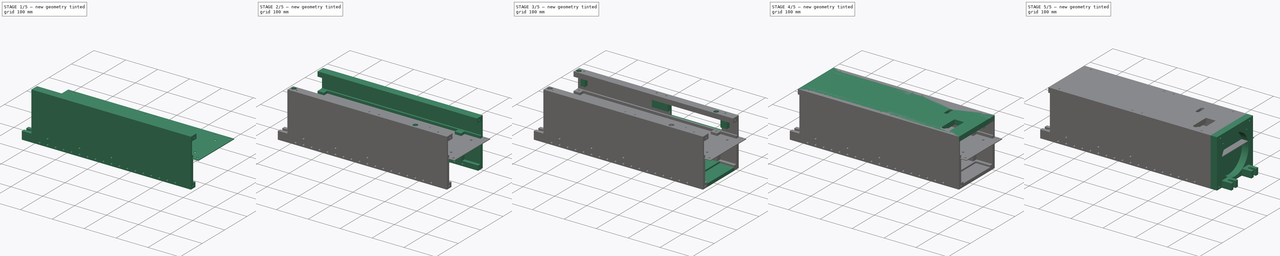
[diagram: build sequence overview — one tinted view per stage of 5, left to right]
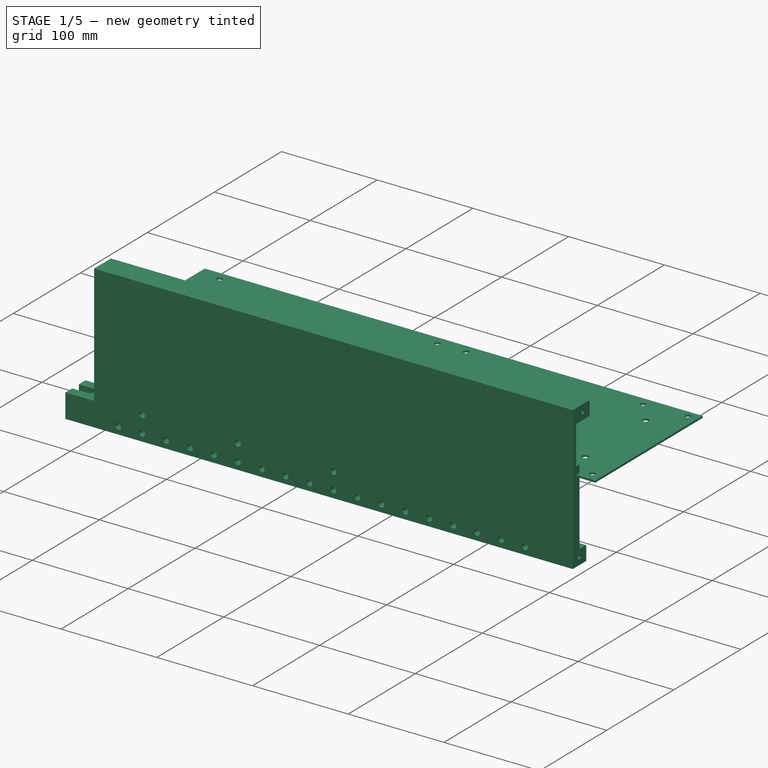
[diagram: stage 1 of 5 — iso view after this stage's code; geometry added in this stage tinted green]
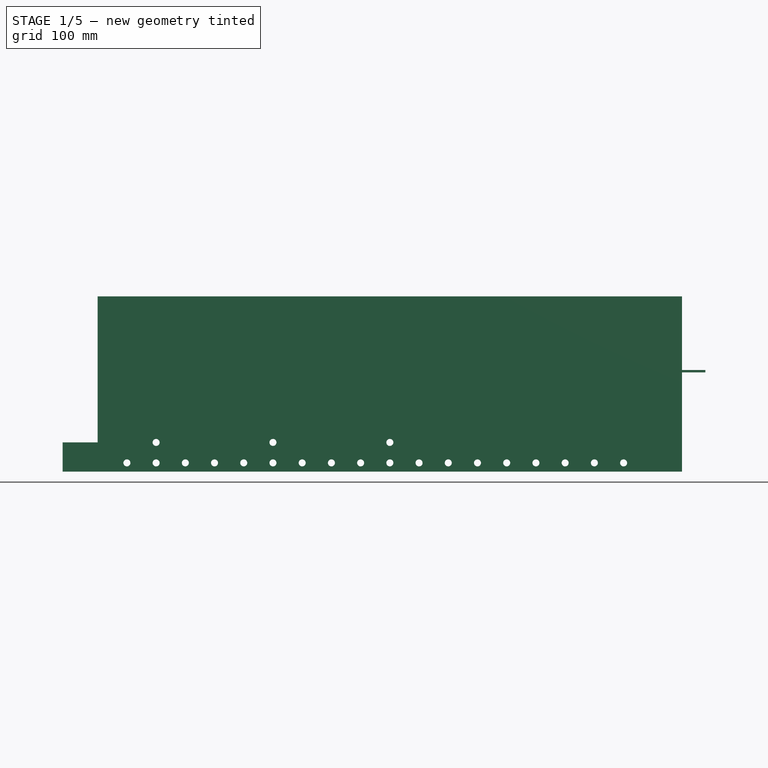
[diagram: stage 1 of 5 — front view after this stage's code; geometry added in this stage tinted green]
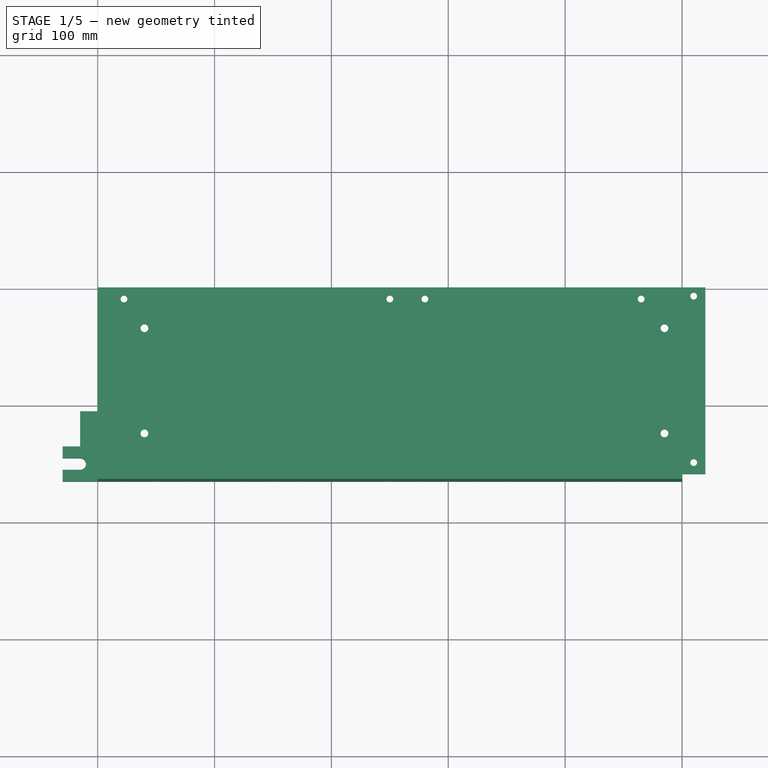
[diagram: stage 1 of 5 — top view after this stage's code; geometry added in this stage tinted green]
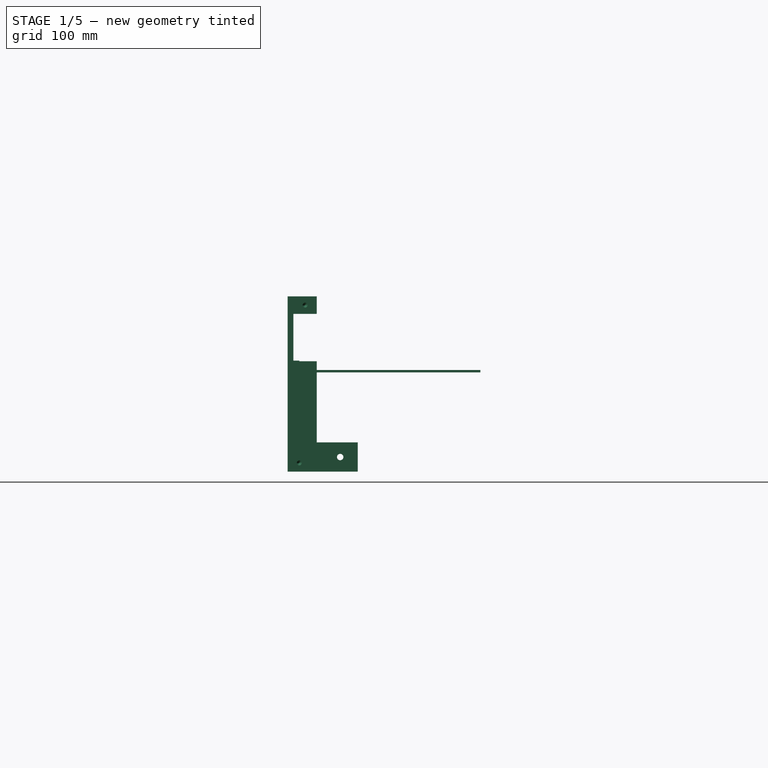
[diagram: stage 1 of 5 — right view after this stage's code; geometry added in this stage tinted green]
FCSTD DOCUMENT  (FreeCAD 1.0R39109 (Git))
Label: BoostConverter
License: All rights reserved
LicenseURL: https://en.wikipedia.org/wiki/All_rights_reserved
objects: Part::Feature×188, App::Part×160, Sketcher::SketchObject×39, PartDesign::Hole×15, PartDesign::Pad×14, Part::FeaturePython×13, PartDesign::Pocket×10, PartDesign::Body×7, Part::Plane×5, App::DocumentObjectGroup×4
note: 408 computed .brp shape members not serialized (recipe doc carries the construction recipe); baked Part::Feature solids carry a one-line shape summary decoded from their .brp

FEATURE [Part::Feature] Part__Feature213  label="Heatsink-125409"
  Placement = pos=(25,-5,-5) rot=(0.57735,-0.57735,0.57735;4.18879rad)
  shape: bbox 304.8 x 139.7 x 50.8 mm, 138 faces (baked)
FEATURE [Sketcher::SketchObject] Sketch  label="LeftSideExtrusion"
  ArcFitTolerance = 1e-06
  AttachmentSupport = -> [YZ_Plane163]
  FullyConstrained = false
  MakeInternals = false
  MapMode = 5
  Placement = pos=(0,0,0) rot=(0.57735,0.57735,0.57735;2.0944rad)
  sketch-geometry (13):
    g0: LineSegment StartX=-165 StartY=65 StartZ=0 EndX=-165 EndY=-85 EndZ=0
    g1: LineSegment StartX=-165 StartY=-85 StartZ=0 EndX=-160.022 EndY=-85 EndZ=0
    g2: LineSegment StartX=-160 StartY=65 StartZ=0 EndX=-165 EndY=65 EndZ=0
    g3: LineSegment StartX=-155 StartY=10 StartZ=0 EndX=-160 EndY=10 EndZ=0
    g4: LineSegment StartX=-145 StartY=-70 StartZ=0 EndX=-155 EndY=-70 EndZ=0
    g5: LineSegment StartX=-155 StartY=-85 StartZ=0 EndX=-145 EndY=-85 EndZ=0
    g6: LineSegment StartX=-145 StartY=-85 StartZ=0 EndX=-145 EndY=-70 EndZ=0
    g7: LineSegment StartX=-160.022 StartY=-85 StartZ=0 EndX=-155 EndY=-85 EndZ=0
    g8: LineSegment StartX=-155 StartY=-70 StartZ=0 EndX=-155 EndY=10 EndZ=0
    g9: LineSegment StartX=-160 StartY=65 StartZ=0 EndX=-140 EndY=65 EndZ=0
    g10: LineSegment StartX=-140 StartY=65 StartZ=0 EndX=-140 EndY=50 EndZ=0
    g11: LineSegment StartX=-140 StartY=50 StartZ=0 EndX=-160 EndY=50 EndZ=0
    g12: LineSegment StartX=-160 StartY=50 StartZ=0 EndX=-160 EndY=10 EndZ=0
  constraints (26):
    c: Coincident(g0,g1)
    c: Coincident(g2,g0)
    c: Vertical(g0)
    c: Horizontal(g1)
    c: Horizontal(g2)
    c: Horizontal(g3)
    c: Coincident(g5,g6)
    c: Coincident(g6,g4)
    c: Horizontal(g4)
    c: Horizontal(g5)
    c: Vertical(g6)
    c: Coincident(g7,g1)
    c: Coincident(g7,g5)
    c: Horizontal(g7)
    c: Coincident(g8,g4)
    c: Coincident(g8,g3)
    c: Vertical(g8)
    c: Coincident(g9,g2)
    c: Horizontal(g9)
    c: Coincident(g10,g9)
    c: Vertical(g10)
    c: Coincident(g11,g10)
    c: Horizontal(g11)
    c: Coincident(g12,g11)
    c: Coincident(g12,g3)
    c: Vertical(g12)
FEATURE [PartDesign::Pad] Pad  label="LeftSideExtrusionBase"
  Direction = (1,0,0)
  Length = 500
  Length2 = 10
  Placement = pos=(0,0,0) rot=(1,1,1;2.0944rad)
  Profile = -> Sketch
  ReferenceAxis = -> Sketch [N_Axis]
  Refine = true
  Suppressed = false
  Type = 0
FEATURE [Sketcher::SketchObject] Sketch001  label="SideHolePatterns"
  ArcFitTolerance = 1e-06
  AttachmentOffset = pos=(0,0,165) rot=(0,0,1;0rad)
  AttachmentSupport = -> [XZ_Plane163]
  FullyConstrained = false
  MakeInternals = false
  MapMode = 5
  Placement = pos=(0,-165,3.66e-14) rot=(1,0,0;1.5708rad)
  sketch-geometry (21):
    g0: Circle CenterX=50 CenterY=-60 CenterZ=0 NormalX=0 NormalY=0 NormalZ=1 AngleXU=0 Radius=3.86267
    g1: Circle CenterX=100 CenterY=-77.5 CenterZ=0 NormalX=0 NormalY=0 NormalZ=1 AngleXU=0 Radius=4.13563
    g2: Circle CenterX=150 CenterY=-60 CenterZ=0 NormalX=0 NormalY=0 NormalZ=1 AngleXU=0 Radius=4.40835
    g3: Circle CenterX=200 CenterY=-77.5 CenterZ=0 NormalX=0 NormalY=0 NormalZ=1 AngleXU=0 Radius=3.33888
    g4: Circle CenterX=250 CenterY=-60 CenterZ=0 NormalX=0 NormalY=0 NormalZ=1 AngleXU=0 Radius=3.58436
    g5: Circle CenterX=300 CenterY=-77.5 CenterZ=0 NormalX=0 NormalY=0 NormalZ=1 AngleXU=0 Radius=4.18964
    g6: Circle CenterX=350 CenterY=-77.5 CenterZ=0 NormalX=0 NormalY=0 NormalZ=1 AngleXU=0 Radius=3.204
    g7: Circle CenterX=400 CenterY=-77.5 CenterZ=0 NormalX=0 NormalY=0 NormalZ=1 AngleXU=0 Radius=3.31514
    g8: Circle CenterX=450 CenterY=-77.5 CenterZ=0 NormalX=0 NormalY=0 NormalZ=1 AngleXU=0 Radius=3.14833
    g9: Circle CenterX=425 CenterY=-77.5 CenterZ=0 NormalX=0 NormalY=0 NormalZ=1 AngleXU=0 Radius=3.53553
    g10: Circle CenterX=375 CenterY=-77.5 CenterZ=0 NormalX=0 NormalY=0 NormalZ=1 AngleXU=0 Radius=3.53553
    g11: Circle CenterX=325 CenterY=-77.5 CenterZ=0 NormalX=0 NormalY=0 NormalZ=1 AngleXU=0 Radius=2.4527
    g12: Circle CenterX=275 CenterY=-77.5 CenterZ=0 NormalX=0 NormalY=0 NormalZ=1 AngleXU=0 Radius=2.81159
    g13: Circle CenterX=250 CenterY=-77.5 CenterZ=0 NormalX=0 NormalY=0 NormalZ=1 AngleXU=0 Radius=2.71359
    g14: Circle CenterX=225 CenterY=-77.5 CenterZ=0 NormalX=0 NormalY=0 NormalZ=1 AngleXU=0 Radius=3.9059
    g15: Circle CenterX=175 CenterY=-77.5 CenterZ=0 NormalX=0 NormalY=0 NormalZ=1 AngleXU=0 Radius=2.89878
    g16: Circle CenterX=150 CenterY=-77.5 CenterZ=0 NormalX=0 NormalY=0 NormalZ=1 AngleXU=0 Radius=3.53553
    g17: Circle CenterX=125 CenterY=-77.5 CenterZ=0 NormalX=0 NormalY=0 NormalZ=1 AngleXU=0 Radius=4.0282
    g18: Circle CenterX=75 CenterY=-77.5 CenterZ=0 NormalX=0 NormalY=0 NormalZ=1 AngleXU=0 Radius=3.19657
    g19: Circle CenterX=50 CenterY=-77.5 CenterZ=0 NormalX=0 NormalY=0 NormalZ=1 AngleXU=0 Radius=3.49405
    g20: Circle CenterX=25 CenterY=-77.5 CenterZ=0 NormalX=0 NormalY=0 NormalZ=1 AngleXU=0 Radius=3.06134
FEATURE [PartDesign::Hole] Hole  label="LeftSideHoles"
  BaseFeature = -> Pad
  CustomThreadClearance = 0
  Depth = 25
  DepthType = 0
  Diameter = 6
  DrillForDepth = false
  DrillPoint = 1
  DrillPointAngle = 118
  HoleCutCountersinkAngle = 90
  HoleCutCustomValues = false
  HoleCutDepth = 0
  HoleCutDiameter = 6.1
  HoleCutType = 0
  ModelThread = false
  Placement = pos=(0,0,0) rot=(1,1,1;2.0944rad)
  Profile = -> Sketch001
  Refine = true
  Suppressed = false
  Tapered = false
  TaperedAngle = 90
  ThreadClass = 0
  ThreadDepth = 25
  ThreadDepthType = 0
  ThreadDirection = 0
  ThreadFit = 0
  ThreadSize = 0
  ThreadType = 0
  Threaded = false
  UseCustomThreadClearance = false
FEATURE [Sketcher::SketchObject] Sketch008  label="BottomLeftMountingFlangeSketch"
  ArcFitTolerance = 1e-06
  AttachmentOffset = pos=(0,0,-85) rot=(0,0,1;0rad)
  AttachmentSupport = -> [XY_Plane163]
  FullyConstrained = false
  MakeInternals = false
  MapMode = 5
  Placement = pos=(0,0,-85) rot=(0,0,1;0rad)
  sketch-geometry (8):
    g0: LineSegment StartX=-30 StartY=-135 StartZ=0 EndX=-30 EndY=-165 EndZ=0
    g1: LineSegment StartX=-30 StartY=-165 StartZ=0 EndX=0 EndY=-165 EndZ=0
    g2: LineSegment StartX=0 StartY=-165 StartZ=0 EndX=0 EndY=-135 EndZ=0
    g3: LineSegment StartX=0 StartY=-135 StartZ=0 EndX=-30 EndY=-135 EndZ=0
    g4: LineSegment StartX=-15 StartY=-135 StartZ=0 EndX=0 EndY=-135 EndZ=0
    g5: LineSegment StartX=0 StartY=-135 StartZ=0 EndX=0 EndY=-105 EndZ=0
    g6: LineSegment StartX=0 StartY=-105 StartZ=0 EndX=-15 EndY=-105 EndZ=0
    g7: LineSegment StartX=-15 StartY=-105 StartZ=0 EndX=-15 EndY=-135 EndZ=0
  constraints (17):
    c: Coincident(g0,g1)
    c: Coincident(g1,g2)
    c: Coincident(g2,g3)
    c: Coincident(g3,g0)
    c: Vertical(g0)
    c: Vertical(g2)
    c: Horizontal(g1)
    c: Horizontal(g3)
    c: Coincident(g4,g5)
    c: Coincident(g5,g6)
    c: Coincident(g6,g7)
    c: Coincident(g7,g4)
    c: Horizontal(g4)
    c: Horizontal(g6)
    c: Vertical(g5)
    c: Vertical(g7)
    c: Symmetric(g3,g3,g4)
FEATURE [PartDesign::Pad] Pad004  label="BottomLeftMountingFlange"
  BaseFeature = -> Hole
  Direction = (0,0,1)
  Length = 25
  Length2 = 10
  Placement = pos=(0,0,0) rot=(1,1,1;2.0944rad)
  Profile = -> Sketch008
  ReferenceAxis = -> Sketch008 [N_Axis]
  Refine = true
  Suppressed = false
  Type = 0
FEATURE [Sketcher::SketchObject] Sketch009  label="FlangeCutoutSketch"
  ArcFitTolerance = 1e-06
  AttachmentOffset = pos=(0,0,-85) rot=(0,0,1;0rad)
  AttachmentSupport = -> [XY_Plane163]
  FullyConstrained = false
  MakeInternals = false
  MapMode = 5
  Placement = pos=(0,0,-85) rot=(0,0,1;0rad)
  sketch-geometry (4):
    g0: ArcOfCircle CenterX=-15 CenterY=-150 CenterZ=0 NormalX=0 NormalY=0 NormalZ=1 AngleXU=0 Radius=5 StartAngle=4.71239 EndAngle=7.85398
    g1: ArcOfCircle CenterX=-35 CenterY=-150 CenterZ=0 NormalX=0 NormalY=0 NormalZ=1 AngleXU=0 Radius=5 StartAngle=1.5708 EndAngle=4.71239
    g2: LineSegment StartX=-15 StartY=-155 StartZ=0 EndX=-35 EndY=-155 EndZ=0
    g3: LineSegment StartX=-15 StartY=-145 StartZ=0 EndX=-35 EndY=-145 EndZ=0
  constraints (6):
    c: Tangent(g0,g2) = 1.5708
    c: Tangent(g0,g3) = -1.5708
    c: Tangent(g1,g2) = 1.5708
    c: Tangent(g1,g3) = -1.5708
    c: Equal(g0,g1)
    c: Horizontal(g3)
FEATURE [PartDesign::Pocket] Pocket001  label="Flangecutout"
  BaseFeature = -> Pad004
  Direction = (0,0,-1)
  Length = 38
  Length2 = 5
  Placement = pos=(0,0,0) rot=(1,1,1;2.0944rad)
  Profile = -> Sketch009
  ReferenceAxis = -> Sketch009 [N_Axis]
  Refine = true
  Reversed = true
  Suppressed = false
  Type = 0
FEATURE [Part::Feature] Part__Feature214  label="C_1210_3225Metric090"
  shape: bbox 3.2 x 2.5 x 2.5 mm, 28 faces (baked)
FEATURE [App::Part] C_1210_3225Metric045  label="C_1210_3225Metric091"
  Group = -> [Part__Feature214]
  Origin = -> Origin168
  Placement = pos=(329,-24.5,1.65) rot=(0,0,1;0rad)
FEATURE [Part::Feature] Part__Feature215  label="R_1210_3225Metric100"
  shape: bbox 3.2 x 2.5 x 0.55 mm, 26 faces (baked)
FEATURE [App::Part] R_1210_3225Metric050  label="R_1210_3225Metric101"
  Group = -> [Part__Feature215]
  Origin = -> Origin169
  Placement = pos=(359.3,-51.635,1.65) rot=(0,0,1;3.14159rad)
FEATURE [Part::Feature] Part__Feature216  label="ASSEMBLY088"
  shape: bbox 23 x 23 x 27 mm, 3 faces (baked)
FEATURE [Part::Feature] Part__Feature217  label="ASSEMBLY089"
  shape: bbox 1.9 x 1.9 x 10 mm, 3 faces (baked)
FEATURE [Part::Feature] Part__Feature218  label="ASSEMBLY090"
  shape: bbox 1.9 x 1.9 x 7 mm, 3 faces (baked)
FEATURE [App::Part] ASSEMBLY022  label="ASSEMBLY091"
  Group = -> [Part__Feature216,Part__Feature217,Part__Feature218]
  Origin = -> Origin170
FEATURE [App::Part] SLPX331M200A1P013
  Group = -> [ASSEMBLY022]
  Origin = -> Origin171
  Placement = pos=(68,-55,1.65) rot=(0,0,1;1.5708rad)
FEATURE [Part::Feature] Part__Feature219  label="ASSEMBLY092"
  shape: bbox 23 x 23 x 27 mm, 3 faces (baked)
FEATURE [Part::Feature] Part__Feature220  label="ASSEMBLY093"
  shape: bbox 1.9 x 1.9 x 10 mm, 3 faces (baked)
FEATURE [Part::Feature] Part__Feature221  label="ASSEMBLY094"
  shape: bbox 1.9 x 1.9 x 7 mm, 3 faces (baked)
FEATURE [App::Part] ASSEMBLY023  label="ASSEMBLY095"
  Group = -> [Part__Feature219,Part__Feature220,Part__Feature221]
  Origin = -> Origin172
FEATURE [App::Part] SLPX331M200A1P014
  Group = -> [ASSEMBLY023]
  Origin = -> Origin173
  Placement = pos=(68,-29,1.65) rot=(0,0,1;1.5708rad)
FEATURE [Part::Feature] Part__Feature222  label="C_1210_3225Metric092"
  shape: bbox 3.2 x 2.5 x 2.5 mm, 28 faces (baked)
FEATURE [App::Part] C_1210_3225Metric046  label="C_1210_3225Metric093"
  Group = -> [Part__Feature222]
  Origin = -> Origin174
  Placement = pos=(346.7,-44.635,1.65) rot=(0,0,1;3.14159rad)
FEATURE [Part::Feature] Part__Feature223  label="R_1210_3225Metric102"
  shape: bbox 3.2 x 2.5 x 0.55 mm, 26 faces (baked)
FEATURE [App::Part] R_1210_3225Metric051  label="R_1210_3225Metric103"
  Group = -> [Part__Feature223]
  Origin = -> Origin175
  Placement = pos=(223.95,-39,1.65) rot=(0,0,1;3.14159rad)
FEATURE [Part::Feature] Part__Feature224  label="CARS_K2PAV_30X30_D31L32S10LL7.3F2.007"
  shape: bbox 35.39 x 39.29 x 35.39 mm, 106 faces (baked)
FEATURE [App::Part] ALH82A750CB606
  Group = -> [Part__Feature224]
  Origin = -> Origin176
  Placement = pos=(343,-128,34.65) rot=(-0.281085,0.678598,-0.678598;2.59356rad)
FEATURE [Part::Feature] Part__Feature225  label="R_1210_3225Metric104"
  shape: bbox 3.2 x 2.5 x 0.55 mm, 26 faces (baked)
FEATURE [App::Part] R_1210_3225Metric052  label="R_1210_3225Metric105"
  Group = -> [Part__Feature225]
  Origin = -> Origin177
  Placement = pos=(225.45,-91.5,1.65) rot=(0,0,1;3.14159rad)
FEATURE [Part::Feature] Part__Feature226  label="C_1210_3225Metric094"
  shape: bbox 3.2 x 2.5 x 2.5 mm, 28 faces (baked)
FEATURE [App::Part] C_1210_3225Metric047  label="C_1210_3225Metric095"
  Group = -> [Part__Feature226]
  Origin = -> Origin178
  Placement = pos=(216.562,-97,1.65) rot=(0,0,1;0rad)
FEATURE [Part::Feature] Part__Feature227  label="ASSEMBLY096"
  shape: bbox 25.53 x 20.73 x 22.75 mm, 6 faces (baked)
FEATURE [Part::Feature] Part__Feature228  label="ASSEMBLY097"
  shape: bbox 4.47 x 4.47 x 5.1 mm, 3 faces (baked)
FEATURE [Part::Feature] Part__Feature229  label="ASSEMBLY098"
  shape: bbox 4.47 x 4.47 x 5.1 mm, 3 faces (baked)
FEATURE [App::Part] ASSEMBLY024  label="ASSEMBLY099"
  Group = -> [Part__Feature227,Part__Feature228,Part__Feature229]
  Origin = -> Origin179
FEATURE [App::Part] IHDM1008BCEV2R2M032
  Group = -> [ASSEMBLY024]
  Origin = -> Origin180
  Placement = pos=(175.795,-88.295,1.65) rot=(0,0,1;0rad)
FEATURE [Part::Feature] Part__Feature230  label="C_1210_3225Metric096"
  shape: bbox 3.2 x 2.5 x 2.5 mm, 28 faces (baked)
FEATURE [App::Part] C_1210_3225Metric048  label="C_1210_3225Metric097"
  Group = -> [Part__Feature230]
  Origin = -> Origin181
  Placement = pos=(298.062,-3.5,1.65) rot=(0,0,1;0rad)
FEATURE [Part::Feature] Part__Feature231  label="UFW1V471MPD1TD015"
  shape: bbox 0.6096 x 0.6096 x 4.369 mm, 4 faces (baked)
FEATURE [Part::Feature] Part__Feature232  label="UFW1V471MPD1TD016"
  shape: bbox 0.6096 x 0.6096 x 4.369 mm, 4 faces (baked)
FEATURE [Part::Feature] Part__Feature233  label="UFW1V471MPD1TD017"
  shape: bbox 10.01 x 10.01 x 17.5 mm, 4 faces (baked)
FEATURE [Part::Feature] Part__Feature234  label="UFW1V471MPD1TD018"
  shape: bbox 4.029 x 1.953 x 14.03 mm, 8 faces (baked)
FEATURE [App::Part] UFW1V471MPD1TD003  label="UFW1V471MPD1TD019"
  Group = -> [Part__Feature231,Part__Feature232,Part__Feature233,Part__Feature234]
  Origin = -> Origin182
FEATURE [App::Part] UVY1E102MPD1TD003
  Group = -> [UFW1V471MPD1TD003]
  Origin = -> Origin183
  Placement = pos=(360,-22,1.65) rot=(0,0,1;3.14159rad)
FEATURE [Part::Feature] Part__Feature235  label="ASSEMBLY100"
  shape: bbox 25.53 x 20.73 x 22.75 mm, 6 faces (baked)
FEATURE [Part::Feature] Part__Feature236  label="ASSEMBLY101"
  shape: bbox 4.47 x 4.47 x 5.1 mm, 3 faces (baked)
FEATURE [Part::Feature] Part__Feature237  label="ASSEMBLY102"
  shape: bbox 4.47 x 4.47 x 5.1 mm, 3 faces (baked)
FEATURE [App::Part] ASSEMBLY025  label="ASSEMBLY103"
  Group = -> [Part__Feature235,Part__Feature236,Part__Feature237]
  Origin = -> Origin184
FEATURE [App::Part] IHDM1008BCEV2R2M033
  Group = -> [ASSEMBLY025]
  Origin = -> Origin185
  Placement = pos=(117.5,-115.5,1.65) rot=(0,0,1;0rad)
FEATURE [Part::Feature] Part__Feature238  label="CARS_K2PAV_30X30_D31L32S10LL7.3F2.008"
  shape: bbox 35.39 x 39.29 x 35.39 mm, 106 faces (baked)
FEATURE [App::Part] ALH82A750CB607
  Group = -> [Part__Feature238]
  Origin = -> Origin186
  Placement = pos=(376,-128,34.65) rot=(-0.281085,0.678598,-0.678598;2.59356rad)
FEATURE [Part::Feature] Part__Feature239  label="UFW1V471MPD1TD020"
  shape: bbox 0.6096 x 0.6096 x 4.369 mm, 4 faces (baked)
FEATURE [Part::Feature] Part__Feature240  label="UFW1V471MPD1TD021"
  shape: bbox 0.6096 x 0.6096 x 4.369 mm, 4 faces (baked)
FEATURE [Part::Feature] Part__Feature241  label="UFW1V471MPD1TD022"
  shape: bbox 10.01 x 10.01 x 17.5 mm, 4 faces (baked)
FEATURE [Part::Feature] Part__Feature242  label="UFW1V471MPD1TD023"
  shape: bbox 4.029 x 1.953 x 14.03 mm, 8 faces (baked)
FEATURE [App::Part] UFW1V471MPD1TD004  label="UFW1V471MPD1TD024"
  Group = -> [Part__Feature239,Part__Feature240,Part__Feature241,Part__Feature242]
  Origin = -> Origin187
FEATURE [App::Part] UVY1E102MPD1TD004
  Group = -> [UFW1V471MPD1TD004]
  Origin = -> Origin188
  Placement = pos=(369.5,-17,1.65) rot=(0,0,1;3.14159rad)
FEATURE [Part::Feature] Part__Feature243  label="C_1210_3225Metric098"
  shape: bbox 3.2 x 2.5 x 2.5 mm, 28 faces (baked)
FEATURE [App::Part] C_1210_3225Metric049  label="C_1210_3225Metric099"
  Group = -> [Part__Feature243]
  Origin = -> Origin189
  Placement = pos=(426.5,-19,1.65) rot=(0,0,1;1.5708rad)
FEATURE [Part::Feature] Part__Feature244  label="pt_2.5-2-5.0-v002"
  shape: bbox 13.1 x 13.5 x 10 mm, 170 faces (baked)
FEATURE [App::Part] _987726  label="1987724002"
  Group = -> [Part__Feature244]
  Origin = -> Origin190
  Placement = pos=(369.26,-31,-44.85) rot=(0,-1,0;1.5708rad)
FEATURE [Part::Feature] Part__Feature245  label="C_1210_3225Metric100"
  shape: bbox 3.2 x 2.5 x 2.5 mm, 28 faces (baked)
FEATURE [App::Part] C_1210_3225Metric050  label="C_1210_3225Metric101"
  Group = -> [Part__Feature245]
  Origin = -> Origin191
  Placement = pos=(307.512,-52.0625,1.65) rot=(0,0,1;1.5708rad)
FEATURE [Part::Feature] Part__Feature246  label="Fan_Pin_Header_Straight_1x005"
  shape: bbox 10.2 x 5.84 x 13.5 mm, 99 faces (baked)
FEATURE [App::Part] FanPinHeader_1x04_P2_54mm_Vertical001  label="FanPinHeader_1x04_P2.54mm_Vertical001"
  Group = -> [Part__Feature246]
  Origin = -> Origin192
  Placement = pos=(364.96,-5.2,1.65) rot=(0,0,1;0rad)
FEATURE [Part::Feature] Part__Feature247  label="R_1210_3225Metric106"
  shape: bbox 3.2 x 2.5 x 0.55 mm, 26 faces (baked)
FEATURE [App::Part] R_1210_3225Metric053  label="R_1210_3225Metric107"
  Group = -> [Part__Feature247]
  Origin = -> Origin193
  Placement = pos=(334,-35.5,1.65) rot=(0,0,-1;1.5708rad)
FEATURE [Part::Feature] Part__Feature248  label="C_1210_3225Metric102"
  shape: bbox 3.2 x 2.5 x 2.5 mm, 28 faces (baked)
FEATURE [App::Part] C_1210_3225Metric051  label="C_1210_3225Metric103"
  Group = -> [Part__Feature248]
  Origin = -> Origin194
  Placement = pos=(337.438,-45,1.65) rot=(0,0,1;0rad)
FEATURE [Part::Feature] Part__Feature249  label="ASSEMBLY104"
  shape: bbox 25.53 x 20.73 x 22.75 mm, 6 faces (baked)
FEATURE [Part::Feature] Part__Feature250  label="ASSEMBLY105"
  shape: bbox 4.47 x 4.47 x 5.1 mm, 3 faces (baked)
FEATURE [Part::Feature] Part__Feature251  label="ASSEMBLY106"
  shape: bbox 4.47 x 4.47 x 5.1 mm, 3 faces (baked)
FEATURE [App::Part] ASSEMBLY026  label="ASSEMBLY107"
  Group = -> [Part__Feature249,Part__Feature250,Part__Feature251]
  Origin = -> Origin195
FEATURE [App::Part] IHDM1008BCEV2R2M034
  Group = -> [ASSEMBLY026]
  Origin = -> Origin196
  Placement = pos=(176.295,-50.5,1.65) rot=(0,0,1;0rad)
FEATURE [Part::Feature] Part__Feature252  label="C_1210_3225Metric104"
  shape: bbox 3.2 x 2.5 x 2.5 mm, 28 faces (baked)
FEATURE [App::Part] C_1210_3225Metric052  label="C_1210_3225Metric105"
  Group = -> [Part__Feature252]
  Origin = -> Origin197
  Placement = pos=(220.438,-28,1.65) rot=(0,0,1;0rad)
FEATURE [Part::Feature] Part__Feature253  label="R_1210_3225Metric108"
  shape: bbox 3.2 x 2.5 x 0.55 mm, 26 faces (baked)
FEATURE [App::Part] R_1210_3225Metric054  label="R_1210_3225Metric109"
  Group = -> [Part__Feature253]
  Origin = -> Origin198
  Placement = pos=(296,-32,1.65) rot=(0,0,1;1.5708rad)
FEATURE [Part::Feature] Part__Feature254  label="ASSEMBLY108"
  shape: bbox 25.53 x 20.73 x 22.75 mm, 6 faces (baked)
FEATURE [Part::Feature] Part__Feature255  label="ASSEMBLY109"
  shape: bbox 4.47 x 4.47 x 5.1 mm, 3 faces (baked)
FEATURE [Part::Feature] Part__Feature256  label="ASSEMBLY110"
  shape: bbox 4.47 x 4.47 x 5.1 mm, 3 faces (baked)
FEATURE [App::Part] ASSEMBLY027  label="ASSEMBLY111"
  Group = -> [Part__Feature254,Part__Feature255,Part__Feature256]
  Origin = -> Origin199
FEATURE [App::Part] IHDM1008BCEV2R2M035
  Group = -> [ASSEMBLY027]
  Origin = -> Origin200
  Placement = pos=(117.545,-88.25,1.65) rot=(0,0,1;0rad)
FEATURE [Part::Feature] Part__Feature257  label="C_1210_3225Metric106"
  shape: bbox 3.2 x 2.5 x 2.5 mm, 28 faces (baked)
FEATURE [App::Part] C_1210_3225Metric053  label="C_1210_3225Metric107"
  Group = -> [Part__Feature257]
  Origin = -> Origin201
  Placement = pos=(230,-85.9375,1.65) rot=(0,0,-1;1.5708rad)
FEATURE [Part::Feature] Part__Feature258  label="R_1210_3225Metric110"
  shape: bbox 3.2 x 2.5 x 0.55 mm, 26 faces (baked)
FEATURE [App::Part] R_1210_3225Metric055  label="R_1210_3225Metric111"
  Group = -> [Part__Feature258]
  Origin = -> Origin202
  Placement = pos=(391.05,-48.5,1.65) rot=(0,0,1;3.14159rad)
FEATURE [Part::Feature] Part__Feature259  label="ASSEMBLY112"
  shape: bbox 25.53 x 20.73 x 22.75 mm, 6 faces (baked)
FEATURE [Part::Feature] Part__Feature260  label="ASSEMBLY113"
  shape: bbox 4.47 x 4.47 x 5.1 mm, 3 faces (baked)
FEATURE [Part::Feature] Part__Feature261  label="ASSEMBLY114"
  shape: bbox 4.47 x 4.47 x 5.1 mm, 3 faces (baked)
FEATURE [App::Part] ASSEMBLY028  label="ASSEMBLY115"
  Group = -> [Part__Feature259,Part__Feature260,Part__Feature261]
  Origin = -> Origin203
FEATURE [App::Part] IHDM1008BCEV2R2M036
  Group = -> [ASSEMBLY028]
  Origin = -> Origin204
  Placement = pos=(146.545,-88.295,1.65) rot=(0,0,1;0rad)
FEATURE [Part::Feature] Part__Feature262  label="R_1210_3225Metric112"
  shape: bbox 3.2 x 2.5 x 0.55 mm, 26 faces (baked)
FEATURE [App::Part] R_1210_3225Metric056  label="R_1210_3225Metric113"
  Group = -> [Part__Feature262]
  Origin = -> Origin205
  Placement = pos=(329,-33.5,1.65) rot=(0,0,1;3.14159rad)
FEATURE [Part::Feature] Part__Feature263  label="C_1210_3225Metric108"
  shape: bbox 3.2 x 2.5 x 2.5 mm, 28 faces (baked)
FEATURE [App::Part] C_1210_3225Metric054  label="C_1210_3225Metric109"
  Group = -> [Part__Feature263]
  Origin = -> Origin206
  Placement = pos=(217.438,-39,1.65) rot=(0,0,1;0rad)
FEATURE [Part::Feature] Part__Feature264  label="R_1210_3225Metric114"
  shape: bbox 3.2 x 2.5 x 0.55 mm, 26 faces (baked)
FEATURE [App::Part] R_1210_3225Metric057  label="R_1210_3225Metric115"
  Group = -> [Part__Feature264]
  Origin = -> Origin207
  Placement = pos=(318,-47.5,1.65) rot=(0,0,1;3.14159rad)
FEATURE [Part::Feature] Part__Feature265  label="R_1210_3225Metric116"
  shape: bbox 3.2 x 2.5 x 0.55 mm, 26 faces (baked)
FEATURE [App::Part] R_1210_3225Metric058  label="R_1210_3225Metric117"
  Group = -> [Part__Feature265]
  Origin = -> Origin208
  Placement = pos=(369.5,-54,1.65) rot=(0,0,-1;1.5708rad)
FEATURE [Part::Feature] Part__Feature266  label="R_1210_3225Metric118"
  shape: bbox 3.2 x 2.5 x 0.55 mm, 26 faces (baked)
FEATURE [App::Part] R_1210_3225Metric059  label="R_1210_3225Metric119"
  Group = -> [Part__Feature266]
  Origin = -> Origin209
  Placement = pos=(224.95,-115,1.65) rot=(0,0,1;3.14159rad)
FEATURE [Part::Feature] Part__Feature267  label="C_1210_3225Metric110"
  shape: bbox 3.2 x 2.5 x 2.5 mm, 28 faces (baked)
FEATURE [App::Part] C_1210_3225Metric055  label="C_1210_3225Metric111"
  Group = -> [Part__Feature267]
  Origin = -> Origin210
  Placement = pos=(290.438,-29.5,1.65) rot=(0,0,1;3.14159rad)
FEATURE [Part::Feature] Part__Feature268  label="C_1210_3225Metric112"
  shape: bbox 3.2 x 2.5 x 2.5 mm, 28 faces (baked)
FEATURE [App::Part] C_1210_3225Metric056  label="C_1210_3225Metric113"
  Group = -> [Part__Feature268]
  Origin = -> Origin211
  Placement = pos=(216.562,-102,1.65) rot=(0,0,1;0rad)
FEATURE [Part::Feature] Part__Feature269  label="ASSEMBLY116"
  shape: bbox 23 x 23 x 27 mm, 3 faces (baked)
FEATURE [Part::Feature] Part__Feature270  label="ASSEMBLY117"
  shape: bbox 1.9 x 1.9 x 10 mm, 3 faces (baked)
FEATURE [Part::Feature] Part__Feature271  label="ASSEMBLY118"
  shape: bbox 1.9 x 1.9 x 7 mm, 3 faces (baked)
FEATURE [App::Part] ASSEMBLY029  label="ASSEMBLY119"
  Group = -> [Part__Feature269,Part__Feature270,Part__Feature271]
  Origin = -> Origin212
FEATURE [App::Part] SLPX331M200A1P015
  Group = -> [ASSEMBLY029]
  Origin = -> Origin213
  Placement = pos=(43,-133,1.65) rot=(0,0,1;1.5708rad)
FEATURE [Part::Feature] Part__Feature272  label="C_1210_3225Metric114"
  shape: bbox 3.2 x 2.5 x 2.5 mm, 28 faces (baked)
FEATURE [App::Part] C_1210_3225Metric057  label="C_1210_3225Metric115"
  Group = -> [Part__Feature272]
  Origin = -> Origin214
  Placement = pos=(328.938,-29,1.65) rot=(0,0,1;0rad)
FEATURE [Part::Feature] Part__Feature273  label="C_1210_3225Metric116"
  shape: bbox 3.2 x 2.5 x 2.5 mm, 28 faces (baked)
FEATURE [App::Part] C_1210_3225Metric058  label="C_1210_3225Metric117"
  Group = -> [Part__Feature273]
  Origin = -> Origin215
  Placement = pos=(218.938,-85,1.65) rot=(0,0,1;0rad)
FEATURE [Part::Feature] Part__Feature274  label="R_1210_3225Metric120"
  shape: bbox 3.2 x 2.5 x 0.55 mm, 26 faces (baked)
FEATURE [App::Part] R_1210_3225Metric060  label="R_1210_3225Metric121"
  Group = -> [Part__Feature274]
  Origin = -> Origin216
  Placement = pos=(353.7,-56.635,1.65) rot=(0,0,1;3.14159rad)
FEATURE [Part::Feature] Part__Feature275  label="R_1210_3225Metric122"
  shape: bbox 3.2 x 2.5 x 0.55 mm, 26 faces (baked)
FEATURE [App::Part] R_1210_3225Metric061  label="R_1210_3225Metric123"
  Group = -> [Part__Feature275]
  Origin = -> Origin217
  Placement = pos=(312.012,-46.0625,1.65) rot=(0,0,-1;1.5708rad)
FEATURE [Part::Feature] Part__Feature276  label="R_1210_3225Metric124"
  shape: bbox 3.2 x 2.5 x 0.55 mm, 26 faces (baked)
FEATURE [App::Part] R_1210_3225Metric062  label="R_1210_3225Metric125"
  Group = -> [Part__Feature276]
  Origin = -> Origin218
  Placement = pos=(228.5,-29.5,1.65) rot=(0,0,1;3.14159rad)
FEATURE [Part::Feature] Part__Feature277  label="C_1210_3225Metric118"
  shape: bbox 3.2 x 2.5 x 2.5 mm, 28 faces (baked)
FEATURE [App::Part] C_1210_3225Metric059  label="C_1210_3225Metric119"
  Group = -> [Part__Feature277]
  Origin = -> Origin219
  Placement = pos=(229,-62.5,1.65) rot=(0,0,1;0rad)
FEATURE [Part::Feature] Part__Feature278  label="C_1210_3225Metric120"
  shape: bbox 3.2 x 2.5 x 2.5 mm, 28 faces (baked)
FEATURE [App::Part] C_1210_3225Metric060  label="C_1210_3225Metric121"
  Group = -> [Part__Feature278]
  Origin = -> Origin220
  Placement = pos=(356.2,-33.635,1.65) rot=(0,0,1;3.14159rad)
FEATURE [Part::Feature] Part__Feature279  label="R_1210_3225Metric126"
  shape: bbox 3.2 x 2.5 x 0.55 mm, 26 faces (baked)
FEATURE [App::Part] R_1210_3225Metric063  label="R_1210_3225Metric127"
  Group = -> [Part__Feature279]
  Origin = -> Origin221
  Placement = pos=(369.5,-59.45,1.65) rot=(0,0,-1;1.5708rad)
FEATURE [Part::Feature] Part__Feature280  label="C_1210_3225Metric122"
  shape: bbox 3.2 x 2.5 x 2.5 mm, 28 faces (baked)
FEATURE [App::Part] C_1210_3225Metric061  label="C_1210_3225Metric123"
  Group = -> [Part__Feature280]
  Origin = -> Origin222
  Placement = pos=(370,-46.5,1.65) rot=(0,0,-1;1.5708rad)
FEATURE [Part::Feature] Part__Feature281  label="R_1210_3225Metric128"
  shape: bbox 3.2 x 2.5 x 0.55 mm, 26 faces (baked)
FEATURE [App::Part] R_1210_3225Metric064  label="R_1210_3225Metric129"
  Group = -> [Part__Feature281]
  Origin = -> Origin223
  Placement = pos=(301,-31.95,1.65) rot=(0,0,1;1.5708rad)
FEATURE [Part::Feature] Part__Feature282  label="C_1210_3225Metric124"
  shape: bbox 3.2 x 2.5 x 2.5 mm, 28 faces (baked)
FEATURE [App::Part] C_1210_3225Metric062  label="C_1210_3225Metric125"
  Group = -> [Part__Feature282]
  Origin = -> Origin224
  Placement = pos=(366,-35.5625,1.65) rot=(0,0,1;0rad)
FEATURE [Part::Feature] Part__Feature283  label="R_1210_3225Metric130"
  shape: bbox 3.2 x 2.5 x 0.55 mm, 26 faces (baked)
FEATURE [App::Part] R_1210_3225Metric065  label="R_1210_3225Metric131"
  Group = -> [Part__Feature283]
  Origin = -> Origin225
  Placement = pos=(330.5,-42.55,1.65) rot=(0,0,-1;1.5708rad)
FEATURE [Part::Feature] Part__Feature284  label="C_1210_3225Metric126"
  shape: bbox 3.2 x 2.5 x 2.5 mm, 28 faces (baked)
FEATURE [App::Part] C_1210_3225Metric063  label="C_1210_3225Metric127"
  Group = -> [Part__Feature284]
  Origin = -> Origin226
  Placement = pos=(206,-95.5625,1.65) rot=(0,0,1;1.5708rad)
FEATURE [Part::Feature] Part__Feature285  label="C_1210_3225Metric128"
  shape: bbox 3.2 x 2.5 x 2.5 mm, 28 faces (baked)
FEATURE [App::Part] C_1210_3225Metric064  label="C_1210_3225Metric129"
  Group = -> [Part__Feature285]
  Origin = -> Origin227
  Placement = pos=(415.5,-56.5,1.65) rot=(0,0,1;0rad)
FEATURE [Part::Feature] Part__Feature286  label="R_1210_3225Metric132"
  shape: bbox 3.2 x 2.5 x 0.55 mm, 26 faces (baked)
FEATURE [App::Part] R_1210_3225Metric066  label="R_1210_3225Metric133"
  Group = -> [Part__Feature286]
  Origin = -> Origin228
  Placement = pos=(338.95,-57.5,1.65) rot=(0,0,1;3.14159rad)
FEATURE [Part::Feature] Part__Feature287  label="C_1210_3225Metric130"
  shape: bbox 3.2 x 2.5 x 2.5 mm, 28 faces (baked)
FEATURE [App::Part] C_1210_3225Metric065  label="C_1210_3225Metric131"
  Group = -> [Part__Feature287]
  Origin = -> Origin229
  Placement = pos=(230.5,-110.562,1.65) rot=(0,0,-1;1.5708rad)
FEATURE [Part::Feature] Part__Feature288  label="R_1210_3225Metric134"
  shape: bbox 3.2 x 2.5 x 0.55 mm, 26 faces (baked)
FEATURE [App::Part] R_1210_3225Metric067  label="R_1210_3225Metric135"
  Group = -> [Part__Feature288]
  Origin = -> Origin230
  Placement = pos=(405,-67.05,1.65) rot=(0,0,1;1.5708rad)
FEATURE [Part::Feature] Part__Feature289  label="C_1210_3225Metric132"
  shape: bbox 3.2 x 2.5 x 2.5 mm, 28 faces (baked)
FEATURE [App::Part] C_1210_3225Metric066  label="C_1210_3225Metric133"
  Group = -> [Part__Feature289]
  Origin = -> Origin231
  Placement = pos=(435.5,-45.5625,1.65) rot=(0,0,1;1.5708rad)
FEATURE [Part::Feature] Part__Feature290  label="CARS_K2PAV_30X30_D31L32S10LL7.3F2.009"
  shape: bbox 35.39 x 39.29 x 35.39 mm, 106 faces (baked)
FEATURE [App::Part] ALH82A750CB608
  Group = -> [Part__Feature290]
  Origin = -> Origin232
  Placement = pos=(409,-128,34.65) rot=(-0.281085,0.678598,-0.678598;2.59356rad)
FEATURE [Part::Feature] Part__Feature291  label="R_1210_3225Metric136"
  shape: bbox 3.2 x 2.5 x 0.55 mm, 26 faces (baked)
FEATURE [App::Part] R_1210_3225Metric068  label="R_1210_3225Metric137"
  Group = -> [Part__Feature291]
  Origin = -> Origin233
  Placement = pos=(338.5,-35.5,1.65) rot=(0,0,-1;1.5708rad)
FEATURE [Part::Feature] Part__Feature292  label="C_1210_3225Metric134"
  shape: bbox 3.2 x 2.5 x 2.5 mm, 28 faces (baked)
FEATURE [App::Part] C_1210_3225Metric067  label="C_1210_3225Metric135"
  Group = -> [Part__Feature292]
  Origin = -> Origin234
  Placement = pos=(323,-45,1.65) rot=(0,0,1;3.14159rad)
FEATURE [Part::Feature] Part__Feature293  label="R_1210_3225Metric138"
  shape: bbox 3.2 x 2.5 x 0.55 mm, 26 faces (baked)
FEATURE [App::Part] R_1210_3225Metric069  label="R_1210_3225Metric139"
  Group = -> [Part__Feature293]
  Origin = -> Origin235
  Placement = pos=(346.7,-34.085,1.65) rot=(0,0,1;1.5708rad)
FEATURE [Part::Feature] Part__Feature294  label="R_1210_3225Metric140"
  shape: bbox 3.2 x 2.5 x 0.55 mm, 26 faces (baked)
FEATURE [App::Part] R_1210_3225Metric070  label="R_1210_3225Metric141"
  Group = -> [Part__Feature294]
  Origin = -> Origin236
  Placement = pos=(348.2,-51.635,1.65) rot=(0,0,1;3.14159rad)
FEATURE [Part::Feature] Part__Feature295  label="R_1210_3225Metric142"
  shape: bbox 3.2 x 2.5 x 0.55 mm, 26 faces (baked)
FEATURE [App::Part] R_1210_3225Metric071  label="R_1210_3225Metric143"
  Group = -> [Part__Feature295]
  Origin = -> Origin237
  Placement = pos=(227.5,-57.5,1.65) rot=(0,0,1;3.14159rad)
FEATURE [Part::Feature] Part__Feature296  label="R_1210_3225Metric144"
  shape: bbox 3.2 x 2.5 x 0.55 mm, 26 faces (baked)
FEATURE [App::Part] R_1210_3225Metric072  label="R_1210_3225Metric145"
  Group = -> [Part__Feature296]
  Origin = -> Origin238
  Placement = pos=(391.05,-54,1.65) rot=(0,0,1;3.14159rad)
FEATURE [Part::Feature] Part__Feature297  label="C_1210_3225Metric136"
  shape: bbox 3.2 x 2.5 x 2.5 mm, 28 faces (baked)
FEATURE [App::Part] C_1210_3225Metric068  label="C_1210_3225Metric137"
  Group = -> [Part__Feature297]
  Origin = -> Origin239
  Placement = pos=(435.5,-37.0625,1.65) rot=(0,0,1;1.5708rad)
FEATURE [Part::Feature] Part__Feature298  label="C_1210_3225Metric138"
  shape: bbox 3.2 x 2.5 x 2.5 mm, 28 faces (baked)
FEATURE [App::Part] C_1210_3225Metric069  label="C_1210_3225Metric139"
  Group = -> [Part__Feature298]
  Origin = -> Origin240
  Placement = pos=(305.5,-30.5,1.65) rot=(0,0,1;0rad)
FEATURE [Part::Feature] Part__Feature299  label="C_1210_3225Metric140"
  shape: bbox 3.2 x 2.5 x 2.5 mm, 28 faces (baked)
FEATURE [App::Part] C_1210_3225Metric070  label="C_1210_3225Metric141"
  Group = -> [Part__Feature299]
  Origin = -> Origin241
  Placement = pos=(207,-38,1.65) rot=(0,0,1;1.5708rad)
FEATURE [Part::Feature] Part__Feature300  label="C_1210_3225Metric142"
  shape: bbox 3.2 x 2.5 x 2.5 mm, 28 faces (baked)
FEATURE [App::Part] C_1210_3225Metric071  label="C_1210_3225Metric143"
  Group = -> [Part__Feature300]
  Origin = -> Origin242
  Placement = pos=(317.5,-34,1.65) rot=(0,0,-1;1.5708rad)
FEATURE [Part::Feature] Part__Feature301  label="ASSEMBLY120"
  shape: bbox 23 x 23 x 27 mm, 3 faces (baked)
FEATURE [Part::Feature] Part__Feature302  label="ASSEMBLY121"
  shape: bbox 1.9 x 1.9 x 10 mm, 3 faces (baked)
FEATURE [Part::Feature] Part__Feature303  label="ASSEMBLY122"
  shape: bbox 1.9 x 1.9 x 7 mm, 3 faces (baked)
FEATURE [App::Part] ASSEMBLY030  label="ASSEMBLY123"
  Group = -> [Part__Feature301,Part__Feature302,Part__Feature303]
  Origin = -> Origin243
FEATURE [App::Part] SLPX331M200A1P016
  Group = -> [ASSEMBLY030]
  Origin = -> Origin244
  Placement = pos=(68,-81,1.65) rot=(0,0,1;1.5708rad)
FEATURE [Part::Feature] Part__Feature304  label="R_1210_3225Metric146"
  shape: bbox 3.2 x 2.5 x 0.55 mm, 26 faces (baked)
FEATURE [App::Part] R_1210_3225Metric073  label="R_1210_3225Metric147"
  Group = -> [Part__Feature304]
  Origin = -> Origin245
  Placement = pos=(249.05,-91.5,1.65) rot=(0,0,1;0rad)
FEATURE [Part::Feature] Part__Feature305  label="ASSEMBLY124"
  shape: bbox 25.53 x 20.73 x 22.75 mm, 6 faces (baked)
FEATURE [Part::Feature] Part__Feature306  label="ASSEMBLY125"
  shape: bbox 4.47 x 4.47 x 5.1 mm, 3 faces (baked)
FEATURE [Part::Feature] Part__Feature307  label="ASSEMBLY126"
  shape: bbox 4.47 x 4.47 x 5.1 mm, 3 faces (baked)
FEATURE [App::Part] ASSEMBLY031  label="ASSEMBLY127"
  Group = -> [Part__Feature305,Part__Feature306,Part__Feature307]
  Origin = -> Origin246
FEATURE [App::Part] IHDM1008BCEV2R2M037
  Group = -> [ASSEMBLY031]
  Origin = -> Origin247
  Placement = pos=(176,-115.545,1.65) rot=(0,0,1;0rad)
FEATURE [Part::Feature] Part__Feature308  label="R_1210_3225Metric148"
  shape: bbox 3.2 x 2.5 x 0.55 mm, 26 faces (baked)
FEATURE [App::Part] R_1210_3225Metric074  label="R_1210_3225Metric149"
  Group = -> [Part__Feature308]
  Origin = -> Origin248
  Placement = pos=(330.5,-56.5,1.65) rot=(0,0,-1;1.5708rad)
FEATURE [Part::Feature] Part__Feature309  label="R_1210_3225Metric150"
  shape: bbox 3.2 x 2.5 x 0.55 mm, 26 faces (baked)
FEATURE [App::Part] R_1210_3225Metric075  label="R_1210_3225Metric151"
  Group = -> [Part__Feature309]
  Origin = -> Origin249
  Placement = pos=(392,-61.5,1.65) rot=(0,0,1;1.5708rad)
FEATURE [Part::Feature] Part__Feature310  label="R_1210_3225Metric152"
  shape: bbox 3.2 x 2.5 x 0.55 mm, 26 faces (baked)
FEATURE [App::Part] R_1210_3225Metric076  label="R_1210_3225Metric153"
  Group = -> [Part__Feature310]
  Origin = -> Origin250
  Placement = pos=(331.5,-51,1.65) rot=(0,0,-1;1.5708rad)
FEATURE [Part::Feature] Part__Feature311  label="ASSEMBLY128"
  shape: bbox 23 x 23 x 27 mm, 3 faces (baked)
FEATURE [Part::Feature] Part__Feature312  label="ASSEMBLY129"
  shape: bbox 1.9 x 1.9 x 10 mm, 3 faces (baked)
FEATURE [Part::Feature] Part__Feature313  label="ASSEMBLY130"
  shape: bbox 1.9 x 1.9 x 7 mm, 3 faces (baked)
FEATURE [App::Part] ASSEMBLY032  label="ASSEMBLY131"
  Group = -> [Part__Feature311,Part__Feature312,Part__Feature313]
  Origin = -> Origin251
FEATURE [App::Part] SLPX331M200A1P017
  Group = -> [ASSEMBLY032]
  Origin = -> Origin252
  Placement = pos=(43,-107,1.65) rot=(0,0,1;1.5708rad)
FEATURE [Part::Feature] Part__Feature314  label="C_1210_3225Metric144"
  shape: bbox 3.2 x 2.5 x 2.5 mm, 28 faces (baked)
FEATURE [App::Part] C_1210_3225Metric072  label="C_1210_3225Metric145"
  Group = -> [Part__Feature314]
  Origin = -> Origin253
  Placement = pos=(228.5,-35.5,1.65) rot=(0,0,1;0rad)
FEATURE [Part::Feature] Part__Feature315  label="R_1210_3225Metric154"
  shape: bbox 3.2 x 2.5 x 0.55 mm, 26 faces (baked)
FEATURE [App::Part] R_1210_3225Metric077  label="R_1210_3225Metric155"
  Group = -> [Part__Feature315]
  Origin = -> Origin254
  Placement = pos=(353.75,-51.635,1.65) rot=(0,0,1;3.14159rad)
FEATURE [Part::Feature] Part__Feature316  label="pt_2.5-2-5.0-v003"
  shape: bbox 13.1 x 13.5 x 10 mm, 170 faces (baked)
FEATURE [App::Part] _987727  label="1987724003"
  Group = -> [Part__Feature316]
  Origin = -> Origin255
  Placement = pos=(356.76,-31,-44.85) rot=(0,-1,0;1.5708rad)
FEATURE [Part::Feature] Part__Feature317  label="CARS_K2PAV_30X30_D31L32S10LL7.3F2.010"
  shape: bbox 35.39 x 39.29 x 35.39 mm, 106 faces (baked)
FEATURE [App::Part] ALH82A750CB609
  Group = -> [Part__Feature317]
  Origin = -> Origin256
  Placement = pos=(409,-95,34.65) rot=(-0.281085,0.678598,-0.678598;2.59356rad)
FEATURE [Part::Feature] Part__Feature318  label="R_1210_3225Metric156"
  shape: bbox 3.2 x 2.5 x 0.55 mm, 26 faces (baked)
FEATURE [App::Part] R_1210_3225Metric078  label="R_1210_3225Metric157"
  Group = -> [Part__Feature318]
  Origin = -> Origin257
  Placement = pos=(380.55,-2.5,1.65) rot=(0,0,1;3.14159rad)
FEATURE [Part::Feature] Part__Feature319  label="ASSEMBLY132"
  shape: bbox 23 x 23 x 27 mm, 3 faces (baked)
FEATURE [Part::Feature] Part__Feature320  label="ASSEMBLY133"
  shape: bbox 1.9 x 1.9 x 10 mm, 3 faces (baked)
FEATURE [Part::Feature] Part__Feature321  label="ASSEMBLY134"
  shape: bbox 1.9 x 1.9 x 7 mm, 3 faces (baked)
FEATURE [App::Part] ASSEMBLY033  label="ASSEMBLY135"
  Group = -> [Part__Feature319,Part__Feature320,Part__Feature321]
  Origin = -> Origin258
FEATURE [App::Part] SLPX331M200A1P018
  Group = -> [ASSEMBLY033]
  Origin = -> Origin259
  Placement = pos=(68,-133,1.65) rot=(0,0,1;1.5708rad)
FEATURE [Part::Feature] Part__Feature322  label="C_1210_3225Metric146"
  shape: bbox 3.2 x 2.5 x 2.5 mm, 28 faces (baked)
FEATURE [App::Part] C_1210_3225Metric073  label="C_1210_3225Metric147"
  Group = -> [Part__Feature322]
  Origin = -> Origin260
  Placement = pos=(337.438,-40.75,1.65) rot=(0,0,1;0rad)
FEATURE [Part::Feature] Part__Feature323  label="ASSEMBLY136"
  shape: bbox 23 x 23 x 27 mm, 3 faces (baked)
FEATURE [Part::Feature] Part__Feature324  label="ASSEMBLY137"
  shape: bbox 1.9 x 1.9 x 10 mm, 3 faces (baked)
FEATURE [Part::Feature] Part__Feature325  label="ASSEMBLY138"
  shape: bbox 1.9 x 1.9 x 7 mm, 3 faces (baked)
FEATURE [App::Part] ASSEMBLY034  label="ASSEMBLY139"
  Group = -> [Part__Feature323,Part__Feature324,Part__Feature325]
  Origin = -> Origin261
FEATURE [App::Part] SLPX331M200A1P019
  Group = -> [ASSEMBLY034]
  Origin = -> Origin262
  Placement = pos=(43,-55,1.65) rot=(0,0,1;1.5708rad)
FEATURE [Part::Feature] Part__Feature326  label="C_1210_3225Metric148"
  shape: bbox 3.2 x 2.5 x 2.5 mm, 28 faces (baked)
FEATURE [App::Part] C_1210_3225Metric074  label="C_1210_3225Metric149"
  Group = -> [Part__Feature326]
  Origin = -> Origin263
  Placement = pos=(217.5,-44.5,1.65) rot=(0,0,1;0rad)
FEATURE [Part::Feature] Part__Feature327  label="R_1210_3225Metric158"
  shape: bbox 3.2 x 2.5 x 0.55 mm, 26 faces (baked)
FEATURE [App::Part] R_1210_3225Metric079  label="R_1210_3225Metric159"
  Group = -> [Part__Feature327]
  Origin = -> Origin264
  Placement = pos=(335.5,-61.95,1.65) rot=(0,0,-1;1.5708rad)
FEATURE [Part::Feature] Part__Feature328  label="R_1210_3225Metric160"
  shape: bbox 3.2 x 2.5 x 0.55 mm, 26 faces (baked)
FEATURE [App::Part] R_1210_3225Metric080  label="R_1210_3225Metric161"
  Group = -> [Part__Feature328]
  Origin = -> Origin265
  Placement = pos=(207,-43.45,1.65) rot=(0,0,1;1.5708rad)
FEATURE [Part::Feature] Part__Feature329  label="R_1210_3225Metric162"
  shape: bbox 3.2 x 2.5 x 0.55 mm, 26 faces (baked)
FEATURE [App::Part] R_1210_3225Metric081  label="R_1210_3225Metric163"
  Group = -> [Part__Feature329]
  Origin = -> Origin266
  Placement = pos=(333,-29.45,1.65) rot=(0,0,-1;1.5708rad)
FEATURE [Part::Feature] Part__Feature330  label="R_1210_3225Metric164"
  shape: bbox 3.2 x 2.5 x 0.55 mm, 26 faces (baked)
FEATURE [App::Part] R_1210_3225Metric082  label="R_1210_3225Metric165"
  Group = -> [Part__Feature330]
  Origin = -> Origin267
  Placement = pos=(391.05,-37.5,1.65) rot=(0,0,1;3.14159rad)
FEATURE [Part::Feature] Part__Feature331  label="ASSEMBLY140"
  shape: bbox 25.53 x 20.73 x 22.75 mm, 6 faces (baked)
FEATURE [Part::Feature] Part__Feature332  label="ASSEMBLY141"
  shape: bbox 4.47 x 4.47 x 5.1 mm, 3 faces (baked)
FEATURE [Part::Feature] Part__Feature333  label="ASSEMBLY142"
  shape: bbox 4.47 x 4.47 x 5.1 mm, 3 faces (baked)
FEATURE [App::Part] ASSEMBLY035  label="ASSEMBLY143"
  Group = -> [Part__Feature331,Part__Feature332,Part__Feature333]
  Origin = -> Origin268
FEATURE [App::Part] IHDM1008BCEV2R2M038
  Group = -> [ASSEMBLY035]
  Origin = -> Origin269
  Placement = pos=(147,-23.5,1.65) rot=(0,0,1;0rad)
FEATURE [Part::Feature] Part__Feature334  label="R_1210_3225Metric166"
  shape: bbox 3.2 x 2.5 x 0.55 mm, 26 faces (baked)
FEATURE [App::Part] R_1210_3225Metric083  label="R_1210_3225Metric167"
  Group = -> [Part__Feature334]
  Origin = -> Origin270
  Placement = pos=(299.5,-22,1.65) rot=(0,0,-1;1.5708rad)
FEATURE [Part::Feature] Part__Feature335  label="C_1210_3225Metric150"
  shape: bbox 3.2 x 2.5 x 2.5 mm, 28 faces (baked)
FEATURE [App::Part] C_1210_3225Metric075  label="C_1210_3225Metric151"
  Group = -> [Part__Feature335]
  Origin = -> Origin271
  Placement = pos=(435.5,-19.0625,1.65) rot=(0,0,1;1.5708rad)
FEATURE [Part::Feature] Part__Feature336  label="ASSEMBLY144"
  shape: bbox 25.53 x 20.73 x 22.75 mm, 6 faces (baked)
FEATURE [Part::Feature] Part__Feature337  label="ASSEMBLY145"
  shape: bbox 4.47 x 4.47 x 5.1 mm, 3 faces (baked)
FEATURE [Part::Feature] Part__Feature338  label="ASSEMBLY146"
  shape: bbox 4.47 x 4.47 x 5.1 mm, 3 faces (baked)
FEATURE [App::Part] ASSEMBLY036  label="ASSEMBLY147"
  Group = -> [Part__Feature336,Part__Feature337,Part__Feature338]
  Origin = -> Origin272
FEATURE [App::Part] IHDM1008BCEV2R2M039
  Group = -> [ASSEMBLY036]
  Origin = -> Origin273
  Placement = pos=(118,-50.5,1.65) rot=(0,0,1;0rad)
FEATURE [Part::Feature] Part__Feature339  label="R_1210_3225Metric168"
  shape: bbox 3.2 x 2.5 x 0.55 mm, 26 faces (baked)
FEATURE [App::Part] R_1210_3225Metric084  label="R_1210_3225Metric169"
  Group = -> [Part__Feature339]
  Origin = -> Origin274
  Placement = pos=(225.05,-108.5,1.65) rot=(0,0,1;3.14159rad)
FEATURE [Part::Feature] Part__Feature340  label="C_1210_3225Metric152"
  shape: bbox 3.2 x 2.5 x 2.5 mm, 28 faces (baked)
FEATURE [App::Part] C_1210_3225Metric076  label="C_1210_3225Metric153"
  Group = -> [Part__Feature340]
  Origin = -> Origin275
  Placement = pos=(401,-70.5,1.65) rot=(0,0,-1;1.5708rad)
FEATURE [Part::Feature] Part__Feature341  label="ASSEMBLY148"
  shape: bbox 23 x 23 x 27 mm, 3 faces (baked)
FEATURE [Part::Feature] Part__Feature342  label="ASSEMBLY149"
  shape: bbox 1.9 x 1.9 x 10 mm, 3 faces (baked)
FEATURE [Part::Feature] Part__Feature343  label="ASSEMBLY150"
  shape: bbox 1.9 x 1.9 x 7 mm, 3 faces (baked)
FEATURE [App::Part] ASSEMBLY037  label="ASSEMBLY151"
  Group = -> [Part__Feature341,Part__Feature342,Part__Feature343]
  Origin = -> Origin276
FEATURE [App::Part] SLPX331M200A1P020
  Group = -> [ASSEMBLY037]
  Origin = -> Origin277
  Placement = pos=(43,-81,1.65) rot=(0,0,1;1.5708rad)
FEATURE [Part::Feature] Part__Feature344  label="C_1210_3225Metric154"
  shape: bbox 3.2 x 2.5 x 2.5 mm, 28 faces (baked)
FEATURE [App::Part] C_1210_3225Metric077  label="C_1210_3225Metric155"
  Group = -> [Part__Feature344]
  Origin = -> Origin278
  Placement = pos=(416.5,-9.5,1.65) rot=(0,0,1;0rad)
FEATURE [Part::Feature] Part__Feature345  label="ASSEMBLY152"
  shape: bbox 23 x 23 x 27 mm, 3 faces (baked)
FEATURE [Part::Feature] Part__Feature346  label="ASSEMBLY153"
  shape: bbox 1.9 x 1.9 x 10 mm, 3 faces (baked)
FEATURE [Part::Feature] Part__Feature347  label="ASSEMBLY154"
  shape: bbox 1.9 x 1.9 x 7 mm, 3 faces (baked)
FEATURE [App::Part] ASSEMBLY038  label="ASSEMBLY155"
  Group = -> [Part__Feature345,Part__Feature346,Part__Feature347]
  Origin = -> Origin279
FEATURE [App::Part] SLPX331M200A1P021
  Group = -> [ASSEMBLY038]
  Origin = -> Origin280
  Placement = pos=(43,-29,1.65) rot=(0,0,1;1.5708rad)
FEATURE [Part::Feature] Part__Feature348  label="PinSocket_1x02_P2.54mm_Vertical004"
  shape: bbox 2.54 x 5.08 x 11.6 mm, 62 faces (baked)
FEATURE [App::Part] PinSocket_1x02_P2_54mm_Vertical002  label="PinSocket_1x02_P2.54mm_Vertical005"
  Group = -> [Part__Feature348]
  Origin = -> Origin281
  Placement = pos=(387.46,-7.5,1.65) rot=(0,0,1;1.5708rad)
FEATURE [Part::Feature] Part__Feature349  label="R_1210_3225Metric170"
  shape: bbox 3.2 x 2.5 x 0.55 mm, 26 faces (baked)
FEATURE [App::Part] R_1210_3225Metric085  label="R_1210_3225Metric171"
  Group = -> [Part__Feature349]
  Origin = -> Origin282
  Placement = pos=(206,-101.45,1.65) rot=(0,0,1;1.5708rad)
FEATURE [Part::Feature] Part__Feature350  label="C_1210_3225Metric156"
  shape: bbox 3.2 x 2.5 x 2.5 mm, 28 faces (baked)
FEATURE [App::Part] C_1210_3225Metric078  label="C_1210_3225Metric157"
  Group = -> [Part__Feature350]
  Origin = -> Origin283
  Placement = pos=(317.5,-42.5,1.65) rot=(0,0,1;3.14159rad)
FEATURE [Part::Feature] Part__Feature351  label="ASSEMBLY156"
  shape: bbox 25.53 x 20.73 x 22.75 mm, 6 faces (baked)
FEATURE [Part::Feature] Part__Feature352  label="ASSEMBLY157"
  shape: bbox 4.47 x 4.47 x 5.1 mm, 3 faces (baked)
FEATURE [Part::Feature] Part__Feature353  label="ASSEMBLY158"
  shape: bbox 4.47 x 4.47 x 5.1 mm, 3 faces (baked)
FEATURE [App::Part] ASSEMBLY039  label="ASSEMBLY159"
  Group = -> [Part__Feature351,Part__Feature352,Part__Feature353]
  Origin = -> Origin284
FEATURE [App::Part] IHDM1008BCEV2R2M040
  Group = -> [ASSEMBLY039]
  Origin = -> Origin285
  Placement = pos=(163.5,-61.84,1.65) rot=(0,0,1;3.14159rad)
FEATURE [Part::Feature] Part__Feature354  label="C_1210_3225Metric158"
  shape: bbox 3.2 x 2.5 x 2.5 mm, 28 faces (baked)
FEATURE [App::Part] C_1210_3225Metric079  label="C_1210_3225Metric159"
  Group = -> [Part__Feature354]
  Origin = -> Origin286
  Placement = pos=(313,-34.0625,1.65) rot=(0,0,-1;1.5708rad)
FEATURE [Part::Feature] Part__Feature355  label="C_1210_3225Metric160"
  shape: bbox 3.2 x 2.5 x 2.5 mm, 28 faces (baked)
FEATURE [App::Part] C_1210_3225Metric080  label="C_1210_3225Metric161"
  Group = -> [Part__Feature355]
  Origin = -> Origin287
  Placement = pos=(415.5,-60,1.65) rot=(0,0,1;0rad)
FEATURE [Part::Feature] Part__Feature356  label="R_1210_3225Metric172"
  shape: bbox 3.2 x 2.5 x 0.55 mm, 26 faces (baked)
FEATURE [App::Part] R_1210_3225Metric086  label="R_1210_3225Metric173"
  Group = -> [Part__Feature356]
  Origin = -> Origin288
  Placement = pos=(311.512,-52.0625,1.65) rot=(0,0,-1;1.5708rad)
FEATURE [Part::Feature] Part__Feature357  label="R_1210_3225Metric174"
  shape: bbox 3.2 x 2.5 x 0.55 mm, 26 faces (baked)
FEATURE [App::Part] R_1210_3225Metric087  label="R_1210_3225Metric175"
  Group = -> [Part__Feature357]
  Origin = -> Origin289
  Placement = pos=(222.5,-57.5,1.65) rot=(0,0,1;3.14159rad)
FEATURE [Part::Feature] Part__Feature358  label="R_1210_3225Metric176"
  shape: bbox 3.2 x 2.5 x 0.55 mm, 26 faces (baked)
FEATURE [App::Part] R_1210_3225Metric088  label="R_1210_3225Metric177"
  Group = -> [Part__Feature358]
  Origin = -> Origin290
  Placement = pos=(391,-43,1.65) rot=(0,0,1;3.14159rad)
FEATURE [Part::Feature] Part__Feature359  label="R_1210_3225Metric178"
  shape: bbox 3.2 x 2.5 x 0.55 mm, 26 faces (baked)
FEATURE [App::Part] R_1210_3225Metric089  label="R_1210_3225Metric179"
  Group = -> [Part__Feature359]
  Origin = -> Origin291
  Placement = pos=(346.7,-39.5,1.65) rot=(0,0,-1;1.5708rad)
FEATURE [Part::Feature] Part__Feature360  label="R_1210_3225Metric180"
  shape: bbox 3.2 x 2.5 x 0.55 mm, 26 faces (baked)
FEATURE [App::Part] R_1210_3225Metric090  label="R_1210_3225Metric181"
  Group = -> [Part__Feature360]
  Origin = -> Origin292
  Placement = pos=(307.512,-41.5625,1.65) rot=(0,0,1;0rad)
FEATURE [Part::Feature] Part__Feature361  label="R_1210_3225Metric182"
  shape: bbox 3.2 x 2.5 x 0.55 mm, 26 faces (baked)
FEATURE [App::Part] R_1210_3225Metric091  label="R_1210_3225Metric183"
  Group = -> [Part__Feature361]
  Origin = -> Origin293
  Placement = pos=(338.95,-53.5,1.65) rot=(0,0,1;3.14159rad)
FEATURE [Part::Feature] Part__Feature362  label="CARS_K2PAV_30X30_D31L32S10LL7.3F2.011"
  shape: bbox 35.39 x 39.29 x 35.39 mm, 106 faces (baked)
FEATURE [App::Part] ALH82A750CB610
  Group = -> [Part__Feature362]
  Origin = -> Origin294
  Placement = pos=(343,-95,34.65) rot=(-0.281085,0.678598,-0.678598;2.59356rad)
FEATURE [Part::Feature] Part__Feature363  label="R_1210_3225Metric184"
  shape: bbox 3.2 x 2.5 x 0.55 mm, 26 faces (baked)
FEATURE [App::Part] R_1210_3225Metric092  label="R_1210_3225Metric185"
  Group = -> [Part__Feature363]
  Origin = -> Origin295
  Placement = pos=(376.5,-45.5,1.65) rot=(0,0,1;1.5708rad)
FEATURE [Part::Feature] Part__Feature364  label="R_1210_3225Metric186"
  shape: bbox 3.2 x 2.5 x 0.55 mm, 26 faces (baked)
FEATURE [App::Part] R_1210_3225Metric093  label="R_1210_3225Metric187"
  Group = -> [Part__Feature364]
  Origin = -> Origin296
  Placement = pos=(410.5,-29.05,1.65) rot=(0,0,-1;1.5708rad)
FEATURE [Part::Feature] Part__Feature365  label="C_1210_3225Metric162"
  shape: bbox 3.2 x 2.5 x 2.5 mm, 28 faces (baked)
FEATURE [App::Part] C_1210_3225Metric081  label="C_1210_3225Metric163"
  Group = -> [Part__Feature365]
  Origin = -> Origin297
  Placement = pos=(441,-45.4375,1.65) rot=(0,0,1;1.5708rad)
FEATURE [Part::Feature] Part__Feature366  label="UFW1V471MPD1TD025"
  shape: bbox 0.6096 x 0.6096 x 4.369 mm, 4 faces (baked)
FEATURE [Part::Feature] Part__Feature367  label="UFW1V471MPD1TD026"
  shape: bbox 0.6096 x 0.6096 x 4.369 mm, 4 faces (baked)
FEATURE [Part::Feature] Part__Feature368  label="UFW1V471MPD1TD027"
  shape: bbox 10.01 x 10.01 x 17.5 mm, 4 faces (baked)
FEATURE [Part::Feature] Part__Feature369  label="UFW1V471MPD1TD028"
  shape: bbox 4.029 x 1.953 x 14.03 mm, 8 faces (baked)
FEATURE [App::Part] UFW1V471MPD1TD005  label="UFW1V471MPD1TD029"
  Group = -> [Part__Feature366,Part__Feature367,Part__Feature368,Part__Feature369]
  Origin = -> Origin298
FEATURE [App::Part] UVY1E102MPD1TD005
  Group = -> [UFW1V471MPD1TD005]
  Origin = -> Origin299
  Placement = pos=(380.5,-17,1.65) rot=(0,0,1;3.14159rad)
FEATURE [Part::Feature] Part__Feature370  label="C_1210_3225Metric164"
  shape: bbox 3.2 x 2.5 x 2.5 mm, 28 faces (baked)
FEATURE [App::Part] C_1210_3225Metric082  label="C_1210_3225Metric165"
  Group = -> [Part__Feature370]
  Origin = -> Origin300
  Placement = pos=(218.938,-90,1.65) rot=(0,0,1;0rad)
FEATURE [Part::Feature] Part__Feature371  label="C_1210_3225Metric166"
  shape: bbox 3.2 x 2.5 x 2.5 mm, 28 faces (baked)
FEATURE [App::Part] C_1210_3225Metric083  label="C_1210_3225Metric167"
  Group = -> [Part__Feature371]
  Origin = -> Origin301
  Placement = pos=(365.5,-46.5,1.65) rot=(0,0,-1;1.5708rad)
FEATURE [Part::Feature] Part__Feature372  label="ASSEMBLY160"
  shape: bbox 23 x 23 x 27 mm, 3 faces (baked)
FEATURE [Part::Feature] Part__Feature373  label="ASSEMBLY161"
  shape: bbox 1.9 x 1.9 x 10 mm, 3 faces (baked)
FEATURE [Part::Feature] Part__Feature374  label="ASSEMBLY162"
  shape: bbox 1.9 x 1.9 x 7 mm, 3 faces (baked)
FEATURE [App::Part] ASSEMBLY040  label="ASSEMBLY163"
  Group = -> [Part__Feature372,Part__Feature373,Part__Feature374]
  Origin = -> Origin302
FEATURE [App::Part] SLPX331M200A1P022
  Group = -> [ASSEMBLY040]
  Origin = -> Origin303
  Placement = pos=(68,-107,1.65) rot=(0,0,1;1.5708rad)
FEATURE [Part::Feature] Part__Feature375  label="R_1210_3225Metric188"
  shape: bbox 3.2 x 2.5 x 0.55 mm, 26 faces (baked)
FEATURE [App::Part] R_1210_3225Metric094  label="R_1210_3225Metric189"
  Group = -> [Part__Feature375]
  Origin = -> Origin304
  Placement = pos=(324,-79.55,1.65) rot=(0,0,1;1.5708rad)
FEATURE [Part::Feature] Part__Feature376  label="C_1210_3225Metric168"
  shape: bbox 3.2 x 2.5 x 2.5 mm, 28 faces (baked)
FEATURE [App::Part] C_1210_3225Metric084  label="C_1210_3225Metric169"
  Group = -> [Part__Feature376]
  Origin = -> Origin305
  Placement = pos=(298,-7,1.65) rot=(0,0,1;0rad)
FEATURE [Part::Feature] Part__Feature377  label="R_1210_3225Metric190"
  shape: bbox 3.2 x 2.5 x 0.55 mm, 26 faces (baked)
FEATURE [App::Part] R_1210_3225Metric095  label="R_1210_3225Metric191"
  Group = -> [Part__Feature377]
  Origin = -> Origin306
  Placement = pos=(323.5,-33.5,1.65) rot=(0,0,1;0rad)
FEATURE [Part::Feature] Part__Feature378  label="R_1210_3225Metric192"
  shape: bbox 3.2 x 2.5 x 0.55 mm, 26 faces (baked)
FEATURE [App::Part] R_1210_3225Metric096  label="R_1210_3225Metric193"
  Group = -> [Part__Feature378]
  Origin = -> Origin307
  Placement = pos=(295,-22,1.65) rot=(0,0,-1;1.5708rad)
FEATURE [Part::Feature] Part__Feature379  label="ASSEMBLY164"
  shape: bbox 25.53 x 20.73 x 22.75 mm, 6 faces (baked)
FEATURE [Part::Feature] Part__Feature380  label="ASSEMBLY165"
  shape: bbox 4.47 x 4.47 x 5.1 mm, 3 faces (baked)
FEATURE [Part::Feature] Part__Feature381  label="ASSEMBLY166"
  shape: bbox 4.47 x 4.47 x 5.1 mm, 3 faces (baked)
FEATURE [App::Part] ASSEMBLY041  label="ASSEMBLY167"
  Group = -> [Part__Feature379,Part__Feature380,Part__Feature381]
  Origin = -> Origin308
FEATURE [App::Part] IHDM1008BCEV2R2M041
  Group = -> [ASSEMBLY041]
  Origin = -> Origin309
  Placement = pos=(176.295,-23.5,1.65) rot=(0,0,1;0rad)
FEATURE [Part::Feature] Part__Feature382  label="C_1210_3225Metric170"
  shape: bbox 3.2 x 2.5 x 2.5 mm, 28 faces (baked)
FEATURE [App::Part] C_1210_3225Metric085  label="C_1210_3225Metric171"
  Group = -> [Part__Feature382]
  Origin = -> Origin310
  Placement = pos=(220.438,-33,1.65) rot=(0,0,1;0rad)
FEATURE [Part::Feature] Part__Feature383  label="R_1210_3225Metric194"
  shape: bbox 3.2 x 2.5 x 0.55 mm, 26 faces (baked)
FEATURE [App::Part] R_1210_3225Metric097  label="R_1210_3225Metric195"
  Group = -> [Part__Feature383]
  Origin = -> Origin311
  Placement = pos=(366,-40.5625,1.65) rot=(0,0,1;0rad)
FEATURE [Part::Feature] Part__Feature384  label="R_1210_3225Metric196"
  shape: bbox 3.2 x 2.5 x 0.55 mm, 26 faces (baked)
FEATURE [App::Part] R_1210_3225Metric098  label="R_1210_3225Metric197"
  Group = -> [Part__Feature384]
  Origin = -> Origin312
  Placement = pos=(313,-39,1.65) rot=(0,0,-1;1.5708rad)
FEATURE [Part::Feature] Part__Feature385  label="ASSEMBLY168"
  shape: bbox 25.53 x 20.73 x 22.75 mm, 6 faces (baked)
FEATURE [Part::Feature] Part__Feature386  label="ASSEMBLY169"
  shape: bbox 4.47 x 4.47 x 5.1 mm, 3 faces (baked)
FEATURE [Part::Feature] Part__Feature387  label="ASSEMBLY170"
  shape: bbox 4.47 x 4.47 x 5.1 mm, 3 faces (baked)
FEATURE [App::Part] ASSEMBLY042  label="ASSEMBLY171"
  Group = -> [Part__Feature385,Part__Feature386,Part__Feature387]
  Origin = -> Origin313
FEATURE [App::Part] IHDM1008BCEV2R2M042
  Group = -> [ASSEMBLY042]
  Origin = -> Origin314
  Placement = pos=(163,-126.955,1.65) rot=(0,0,1;3.14159rad)
FEATURE [Part::Feature] Part__Feature388  label="PinSocket_1x02_P2.54mm_Vertical006"
  shape: bbox 2.54 x 5.08 x 11.6 mm, 62 faces (baked)
FEATURE [App::Part] PinSocket_1x02_P2_54mm_Vertical003  label="PinSocket_1x02_P2.54mm_Vertical007"
  Group = -> [Part__Feature388]
  Origin = -> Origin315
  Placement = pos=(379,-7.5,1.65) rot=(0,0,1;1.5708rad)
FEATURE [Part::Feature] Part__Feature389  label="ASSEMBLY172"
  shape: bbox 25.53 x 20.73 x 22.75 mm, 6 faces (baked)
FEATURE [Part::Feature] Part__Feature390  label="ASSEMBLY173"
  shape: bbox 4.47 x 4.47 x 5.1 mm, 3 faces (baked)
FEATURE [Part::Feature] Part__Feature391  label="ASSEMBLY174"
  shape: bbox 4.47 x 4.47 x 5.1 mm, 3 faces (baked)
FEATURE [App::Part] ASSEMBLY043  label="ASSEMBLY175"
  Group = -> [Part__Feature389,Part__Feature390,Part__Feature391]
  Origin = -> Origin316
FEATURE [App::Part] IHDM1008BCEV2R2M043
  Group = -> [ASSEMBLY043]
  Origin = -> Origin317
  Placement = pos=(118,-23.5,1.65) rot=(0,0,1;0rad)
FEATURE [Part::Feature] Part__Feature392  label="C_1210_3225Metric172"
  shape: bbox 3.2 x 2.5 x 2.5 mm, 28 faces (baked)
FEATURE [App::Part] C_1210_3225Metric086  label="C_1210_3225Metric173"
  Group = -> [Part__Feature392]
  Origin = -> Origin318
  Placement = pos=(338.962,-49.5,1.65) rot=(0,0,1;0rad)
FEATURE [Part::Feature] Part__Feature393  label="R_1210_3225Metric198"
  shape: bbox 3.2 x 2.5 x 0.55 mm, 26 faces (baked)
FEATURE [App::Part] R_1210_3225Metric099  label="R_1210_3225Metric199"
  Group = -> [Part__Feature393]
  Origin = -> Origin319
  Placement = pos=(225.45,-86.5,1.65) rot=(0,0,1;3.14159rad)
FEATURE [Part::Feature] Part__Feature394  label="CARS_K2PAV_30X30_D31L32S10LL7.3F2.012"
  shape: bbox 35.39 x 39.29 x 35.39 mm, 106 faces (baked)
FEATURE [App::Part] ALH82A750CB611
  Group = -> [Part__Feature394]
  Origin = -> Origin320
  Placement = pos=(376,-95,34.65) rot=(-0.281085,0.678598,-0.678598;2.59356rad)
FEATURE [Part::Feature] Part__Feature395  label="C_1210_3225Metric174"
  shape: bbox 3.2 x 2.5 x 2.5 mm, 28 faces (baked)
FEATURE [App::Part] C_1210_3225Metric087  label="C_1210_3225Metric175"
  Group = -> [Part__Feature395]
  Origin = -> Origin321
  Placement = pos=(416.5,-14.5,1.65) rot=(0,0,1;0rad)
FEATURE [Part::Feature] Part__Feature396  label="C_1210_3225Metric176"
  shape: bbox 3.2 x 2.5 x 2.5 mm, 28 faces (baked)
FEATURE [App::Part] C_1210_3225Metric088  label="C_1210_3225Metric177"
  Group = -> [Part__Feature396]
  Origin = -> Origin322
  Placement = pos=(387.5,-61.5,1.65) rot=(0,0,1;1.5708rad)
FEATURE [Part::Feature] Part__Feature397  label="C_1210_3225Metric178"
  shape: bbox 3.2 x 2.5 x 2.5 mm, 28 faces (baked)
FEATURE [App::Part] C_1210_3225Metric089  label="C_1210_3225Metric179"
  Group = -> [Part__Feature397]
  Origin = -> Origin323
  Placement = pos=(440.5,-37.0625,1.65) rot=(0,0,1;1.5708rad)
FEATURE [Part::Feature] Part__Feature398  label="SOIC_8_39x49mm_P127mm002"
  shape: bbox 6 x 4.9 x 1.75 mm, 156 faces (baked)
FEATURE [App::Part] SOIC_8_3_9x4_9mm_P1_27mm002  label="SOIC-8_3.9x4.9mm_P1.27mm002"
  Group = -> [Part__Feature398]
  Origin = -> Origin324
  Placement = pos=(243.095,-102,-0.05) rot=(0.707107,0.707107,0;3.14159rad)
FEATURE [Part::Feature] Part__Feature399  label="SOIC_8_39x49mm_P127mm003"
  shape: bbox 6 x 4.9 x 1.75 mm, 156 faces (baked)
FEATURE [App::Part] SOIC_8_3_9x4_9mm_P1_27mm003  label="SOIC-8_3.9x4.9mm_P1.27mm003"
  Group = -> [Part__Feature399]
  Origin = -> Origin325
  Placement = pos=(243,-48.525,-0.05) rot=(0.707107,0.707107,0;3.14159rad)
FEATURE [Part::Feature] Part__Feature400  label="InverterBoostConverter_PCB"
  shape: bbox 450 x 150 x 1.6 mm, 233 faces (baked)
FEATURE [App::Part] InverterBoostConverter_002  label="InverterBoostConverter 002"
  Group = -> [C_1210_3225Metric045,R_1210_3225Metric050,SLPX331M200A1P013,SLPX331M200A1P014,C_1210_3225Metric046,R_1210_3225Metric051,ALH82A750CB606,R_1210_3225Metric052,C_1210_3225Metric047,IHDM1008BCEV2R2M032,C_1210_3225Metric048,UVY1E102MPD1TD003,IHDM1008BCEV2R2M033,ALH82A750CB607,UVY1E102MPD1TD004,C_1210_3225Metric049,_987726,C_1210_3225Metric050,FanPinHeader_1x04_P2_54mm_Vertical001,R_1210_3225Metric053,+114 more]
  Origin = -> Origin326
FEATURE [Sketcher::SketchObject] Sketch012  label="FrontScrewRightSketch"
  ArcFitTolerance = 1e-06
  AttachmentSupport = -> [YZ_Plane166]
  FullyConstrained = false
  MakeInternals = false
  MapMode = 5
  Placement = pos=(0,0,0) rot=(0.57735,0.57735,0.57735;2.0944rad)
  sketch-geometry (1):
    g0: Circle CenterX=-50 CenterY=-72.5 CenterZ=0 NormalX=0 NormalY=0 NormalZ=1 AngleXU=0 Radius=3.54677
FEATURE [Sketcher::SketchObject] Sketch013  label="FrontScrewLeftSketch"
  ArcFitTolerance = 1e-06
  AttachmentSupport = -> [YZ_Plane163]
  FullyConstrained = false
  MakeInternals = false
  MapMode = 5
  Placement = pos=(0,0,0) rot=(0.57735,0.57735,0.57735;2.0944rad)
  sketch-geometry (1):
    g0: Circle CenterX=-120 CenterY=-72.5 CenterZ=0 NormalX=0 NormalY=0 NormalZ=1 AngleXU=0 Radius=3.10793
FEATURE [PartDesign::Hole] Hole003  label="FrontLeftScrew"
  BaseFeature = -> Pocket001
  CustomThreadClearance = 0
  Depth = 25
  DepthType = 0
  Diameter = 5.5
  DrillForDepth = false
  DrillPoint = 1
  DrillPointAngle = 118
  HoleCutCountersinkAngle = 90
  HoleCutCustomValues = false
  HoleCutDepth = 0
  HoleCutDiameter = 6.1
  HoleCutType = 0
  ModelThread = false
  Placement = pos=(0,0,0) rot=(1,1,1;2.0944rad)
  Profile = -> Sketch013
  Refine = true
  Suppressed = false
  Tapered = false
  TaperedAngle = 90
  ThreadClass = 0
  ThreadDepth = 25
  ThreadDepthType = 0
  ThreadDirection = 0
  ThreadFit = 0
  ThreadSize = 13
  ThreadType = 1
  Threaded = false
  UseCustomThreadClearance = false
FEATURE [Sketcher::SketchObject] Sketch016  label="LeftSideRearMountingHoleSketch"
  ArcFitTolerance = 1e-06
  AttachmentOffset = pos=(0,0,500) rot=(0,0,1;0rad)
  AttachmentSupport = -> [YZ_Plane163]
  FullyConstrained = false
  MakeInternals = false
  MapMode = 5
  Placement = pos=(500,0,0) rot=(0.57735,0.57735,0.57735;2.0944rad)
  sketch-geometry (2):
    g0: Circle CenterX=-155 CenterY=-77.5 CenterZ=0 NormalX=0 NormalY=0 NormalZ=1 AngleXU=0 Radius=2.5
    g1: Circle CenterX=-150 CenterY=57.5 CenterZ=0 NormalX=0 NormalY=0 NormalZ=1 AngleXU=0 Radius=2.5
FEATURE [PartDesign::Hole] Hole007  label="LeftSideMountingHoleRear"
  BaseFeature = -> Hole003
  CustomThreadClearance = 0
  Depth = 25
  DepthType = 0
  Diameter = 4.2
  DrillForDepth = false
  DrillPoint = 1
  DrillPointAngle = 118
  HoleCutCountersinkAngle = 90
  HoleCutCustomValues = false
  HoleCutDepth = 0
  HoleCutDiameter = 6.1
  HoleCutType = 0
  ModelThread = false
  Placement = pos=(0,0,0) rot=(1,1,1;2.0944rad)
  Profile = -> Sketch016
  Refine = true
  Suppressed = false
  Tapered = false
  TaperedAngle = 90
  ThreadClass = 0
  ThreadDepth = 25
  ThreadDepthType = 0
  ThreadDirection = 0
  ThreadFit = 0
  ThreadSize = 13
  ThreadType = 1
  Threaded = true
  UseCustomThreadClearance = false
FEATURE [Sketcher::SketchObject] Sketch022  label="LeftSideSupportSketch"
  ArcFitTolerance = 1e-06
  AttachmentOffset = pos=(0,0,9.5) rot=(0,0,1;0rad)
  AttachmentSupport = -> [XY_Plane163]
  FullyConstrained = false
  MakeInternals = false
  MapMode = 5
  Placement = pos=(0,0,9.5) rot=(0,0,1;0rad)
  sketch-geometry (8):
    g0: LineSegment StartX=0 StartY=-155 StartZ=0 EndX=20 EndY=-155 EndZ=0
    g1: LineSegment StartX=20 StartY=-155 StartZ=0 EndX=20 EndY=-140 EndZ=0
    g2: LineSegment StartX=20 StartY=-140 StartZ=0 EndX=0 EndY=-140 EndZ=0
    g3: LineSegment StartX=0 StartY=-140 StartZ=0 EndX=0 EndY=-155 EndZ=0
    g4: LineSegment StartX=385 StartY=-145 StartZ=0 EndX=385 EndY=-160 EndZ=0
    g5: LineSegment StartX=385 StartY=-160 StartZ=0 EndX=400 EndY=-160 EndZ=0
    g6: LineSegment StartX=400 StartY=-160 StartZ=0 EndX=400 EndY=-145 EndZ=0
    g7: LineSegment StartX=400 StartY=-145 StartZ=0 EndX=385 EndY=-145 EndZ=0
  constraints (16):
    c: Coincident(g0,g1)
    c: Coincident(g1,g2)
    c: Coincident(g2,g3)
    c: Coincident(g3,g0)
    c: Horizontal(g0)
    c: Horizontal(g2)
    c: Vertical(g1)
    c: Vertical(g3)
    c: Coincident(g4,g5)
    c: Coincident(g5,g6)
    c: Coincident(g6,g7)
    c: Coincident(g7,g4)
    c: Vertical(g4)
    c: Vertical(g6)
    c: Horizontal(g5)
    c: Horizontal(g7)
FEATURE [PartDesign::Pad] Pad009  label="LeftSideSupport"
  BaseFeature = -> Hole007
  Direction = (0,0,1)
  Length = 80
  Length2 = 10
  Placement = pos=(0,0,0) rot=(1,1,1;2.0944rad)
  Profile = -> Sketch022
  ReferenceAxis = -> Sketch022 [N_Axis]
  Refine = true
  Reversed = true
  Suppressed = false
  Type = 0
FEATURE [App::DocumentObjectGroup] GrExplode_Slice001  label="LeftSlices"
  Group = -> [Slice001_child0,Slice001_child1]
FEATURE [Sketcher::SketchObject] Sketch037  label="MaterialOutline"
  ArcFitTolerance = 1e-06
  AttachmentSupport = -> [XY_Plane328]
  FullyConstrained = false
  MakeInternals = false
  MapMode = 5
  sketch-geometry (4):
    g0: LineSegment StartX=0 StartY=0 StartZ=0 EndX=0 EndY=-160 EndZ=0
    g1: LineSegment StartX=0 StartY=-160 StartZ=0 EndX=520 EndY=-160 EndZ=0
    g2: LineSegment StartX=520 StartY=-160 StartZ=0 EndX=520 EndY=0 EndZ=0
    g3: LineSegment StartX=520 StartY=0 StartZ=0 EndX=0 EndY=0 EndZ=0
  constraints (8):
    c: Coincident(g0,g1)
    c: Coincident(g1,g2)
    c: Coincident(g2,g3)
    c: Coincident(g3,g0)
    c: Vertical(g0)
    c: Vertical(g2)
    c: Horizontal(g1)
    c: Horizontal(g3)
FEATURE [Sketcher::SketchObject] Sketch038  label="ScrewHoles"
  ArcFitTolerance = 1e-06
  AttachmentSupport = -> [XY_Plane328]
  FullyConstrained = false
  MakeInternals = false
  MapMode = 5
  sketch-geometry (10):
    g0: Circle CenterX=22.5 CenterY=-10 CenterZ=0 NormalX=0 NormalY=0 NormalZ=1 AngleXU=0 Radius=2.5
    g1: Circle CenterX=22.5 CenterY=-150 CenterZ=0 NormalX=0 NormalY=0 NormalZ=1 AngleXU=0 Radius=2.5
    g2: Circle CenterX=250 CenterY=-10 CenterZ=0 NormalX=0 NormalY=0 NormalZ=1 AngleXU=0 Radius=2.5
    g3: Circle CenterX=280 CenterY=-10 CenterZ=0 NormalX=0 NormalY=0 NormalZ=1 AngleXU=0 Radius=2.5
    g4: Circle CenterX=250 CenterY=-150 CenterZ=0 NormalX=0 NormalY=0 NormalZ=1 AngleXU=0 Radius=2.5
    g5: Circle CenterX=280 CenterY=-150 CenterZ=0 NormalX=0 NormalY=0 NormalZ=1 AngleXU=0 Radius=2.5
    g6: Circle CenterX=465 CenterY=-150 CenterZ=0 NormalX=0 NormalY=0 NormalZ=1 AngleXU=0 Radius=2.5
    g7: Circle CenterX=465 CenterY=-10 CenterZ=0 NormalX=0 NormalY=0 NormalZ=1 AngleXU=0 Radius=2.5
    g8: Circle CenterX=510 CenterY=-7.5 CenterZ=0 NormalX=0 NormalY=0 NormalZ=1 AngleXU=0 Radius=2.5
    g9: Circle CenterX=510 CenterY=-150 CenterZ=0 NormalX=0 NormalY=0 NormalZ=1 AngleXU=0 Radius=2.5
FEATURE [Sketcher::SketchObject] Sketch039  label="HandleHoles"
  ArcFitTolerance = 1e-06
  AttachmentSupport = -> [XY_Plane328]
  FullyConstrained = false
  MakeInternals = false
  MapMode = 5
  sketch-geometry (4):
    g0: Circle CenterX=40 CenterY=-35 CenterZ=0 NormalX=0 NormalY=0 NormalZ=1 AngleXU=0 Radius=3
    g1: Circle CenterX=40 CenterY=-125 CenterZ=0 NormalX=0 NormalY=0 NormalZ=1 AngleXU=0 Radius=3
    g2: Circle CenterX=485 CenterY=-35 CenterZ=0 NormalX=0 NormalY=0 NormalZ=1 AngleXU=0 Radius=3
    g3: Circle CenterX=485 CenterY=-125 CenterZ=0 NormalX=0 NormalY=0 NormalZ=1 AngleXU=0 Radius=3
  constraints (4):
    c: Diameter(g0) = 6
    c: Diameter(g1) = 6
    c: Diameter(g2) = 6
    c: Diameter(g3) = 6
FEATURE [PartDesign::Pad] Pad013
  Direction = (0,0,1)
  Length = 2
  Length2 = 10
  Profile = -> Sketch037
  ReferenceAxis = -> Sketch037 [N_Axis]
  Refine = true
  Suppressed = false
  Type = 0
FEATURE [PartDesign::Hole] Hole013
  BaseFeature = -> Pad013
  CustomThreadClearance = 0
  Depth = 25
  DepthType = 0
  Diameter = 5.8
  DrillForDepth = false
  DrillPoint = 1
  DrillPointAngle = 118
  HoleCutCountersinkAngle = 90
  HoleCutCustomValues = false
  HoleCutDepth = 0
  HoleCutDiameter = 6.1
  HoleCutType = 0
  ModelThread = false
  Profile = -> Sketch038
  Refine = true
  Reversed = true
  Suppressed = false
  Tapered = false
  TaperedAngle = 90
  ThreadClass = 0
  ThreadDepth = 25
  ThreadDepthType = 0
  ThreadDirection = 0
  ThreadFit = 2
  ThreadSize = 13
  ThreadType = 1
  Threaded = false
  UseCustomThreadClearance = false
FEATURE [PartDesign::Hole] Hole014
  BaseFeature = -> Hole013
  CustomThreadClearance = 0
  Depth = 25
  DepthType = 0
  Diameter = 6.6
  DrillForDepth = false
  DrillPoint = 1
  DrillPointAngle = 118
  HoleCutCountersinkAngle = 90
  HoleCutCustomValues = false
  HoleCutDepth = 0
  HoleCutDiameter = 6.1
  HoleCutType = 0
  ModelThread = false
  Profile = -> Sketch039
  Refine = true
  Reversed = true
  Suppressed = false
  Tapered = false
  TaperedAngle = 90
  ThreadClass = 0
  ThreadDepth = 25
  ThreadDepthType = 0
  ThreadDirection = 0
  ThreadFit = 0
  ThreadSize = 14
  ThreadType = 1
  Threaded = false
  UseCustomThreadClearance = false
FEATURE [PartDesign::Body] Body006  label="SheetMetalLid"
  AllowCompound = false
  Group = -> [Sketch037,Sketch038,Sketch039,Pad013,Hole013,Hole014]
  Origin = -> Origin328
  Placement = pos=(0,-5,65) rot=(0,0,1;0rad)
  Tip = -> Hole014
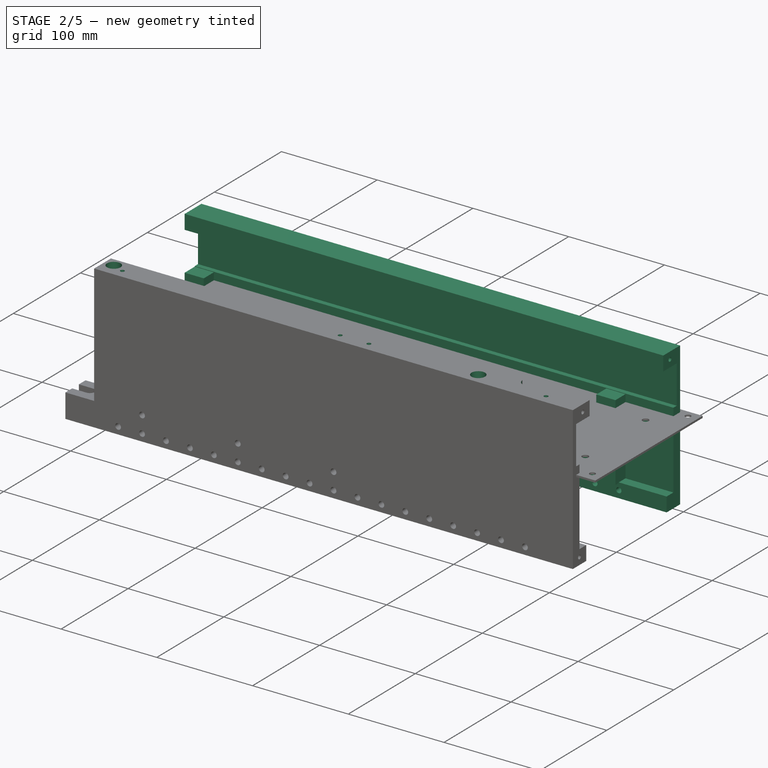
[diagram: stage 2 of 5 — iso view after this stage's code; geometry added in this stage tinted green]
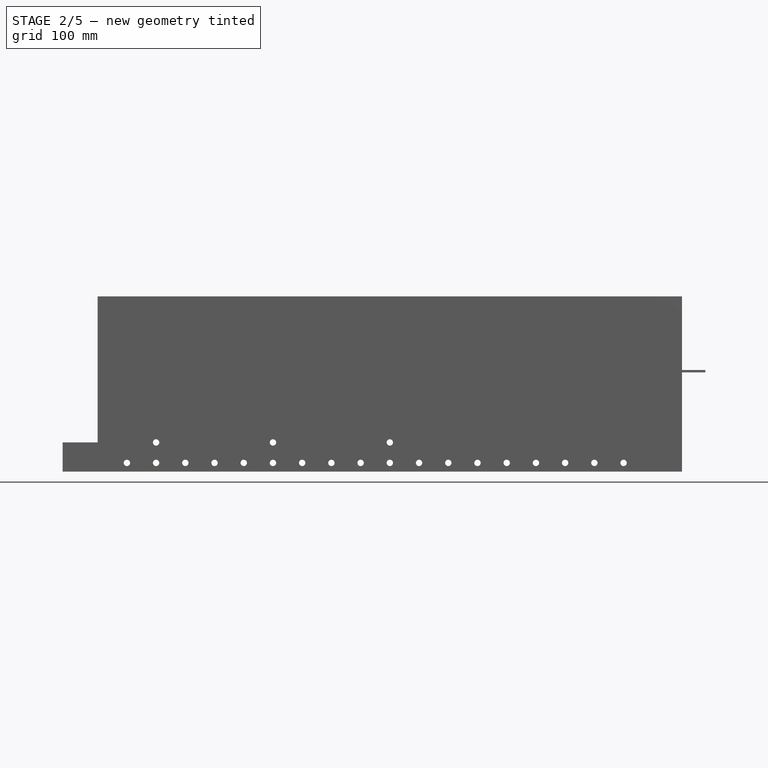
[diagram: stage 2 of 5 — front view after this stage's code; geometry added in this stage tinted green]
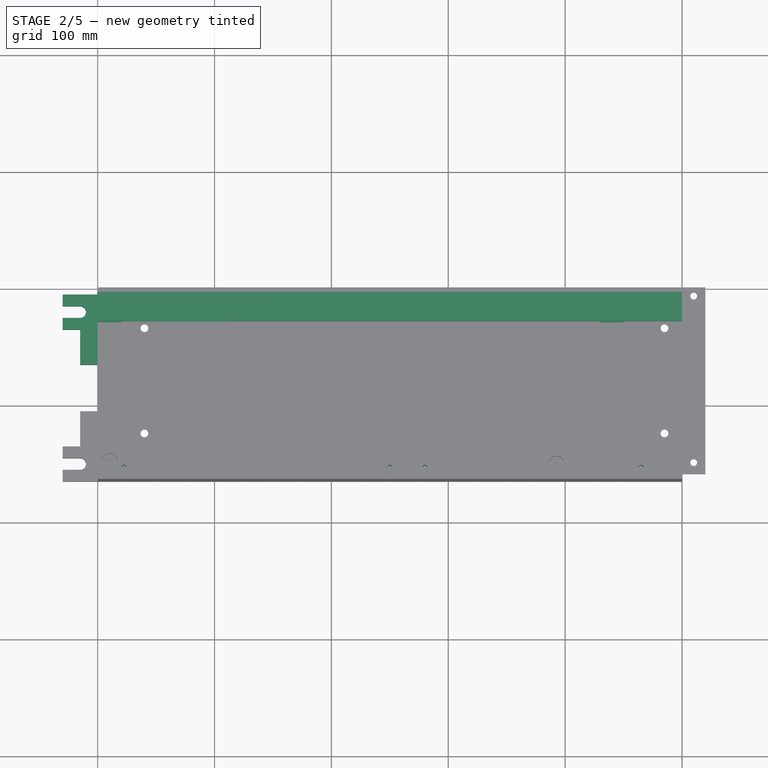
[diagram: stage 2 of 5 — top view after this stage's code; geometry added in this stage tinted green]
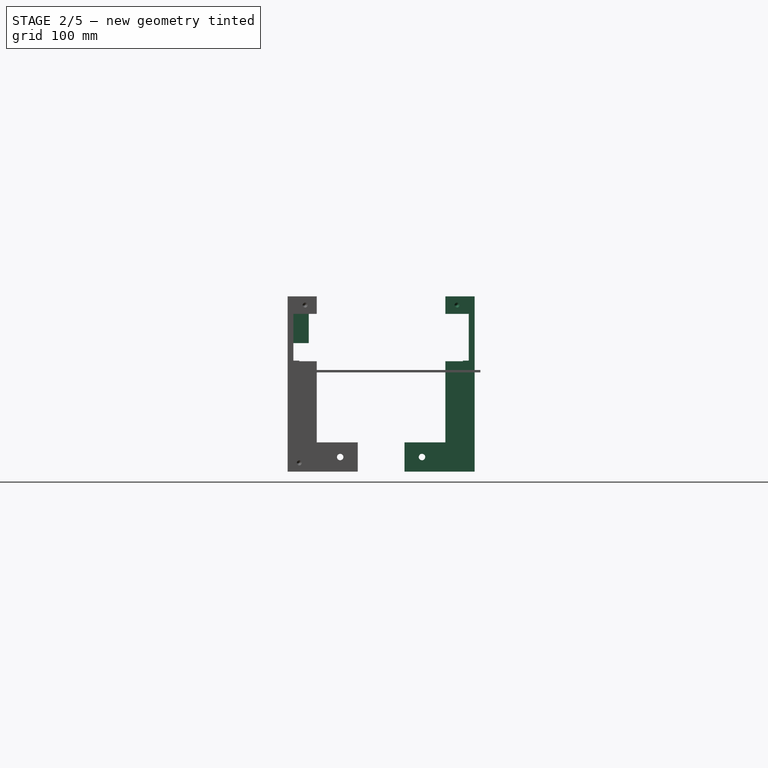
[diagram: stage 2 of 5 — right view after this stage's code; geometry added in this stage tinted green]
FEATURE [Sketcher::SketchObject] Sketch002  label="FanMountBaseSketch"
  ArcFitTolerance = 1e-06
  AttachmentOffset = pos=(0,0,500) rot=(0,0,1;0rad)
  AttachmentSupport = -> [YZ_Plane165]
  FullyConstrained = false
  MakeInternals = false
  MapMode = 5
  Placement = pos=(500,0,0) rot=(0.57735,0.57735,0.57735;2.0944rad)
  sketch-geometry (5):
    g0: LineSegment StartX=-165 StartY=65 StartZ=0 EndX=-165 EndY=-85 EndZ=0
    g1: LineSegment StartX=-165 StartY=-85 StartZ=0 EndX=-5 EndY=-85 EndZ=0
    g2: LineSegment StartX=-5 StartY=-85 StartZ=0 EndX=-5 EndY=65 EndZ=0
    g3: LineSegment StartX=-5 StartY=65 StartZ=0 EndX=-165 EndY=65 EndZ=0
    g4: Circle CenterX=-85 CenterY=-15 CenterZ=0 NormalX=0 NormalY=0 NormalZ=1 AngleXU=0 Radius=60
  constraints (8):
    c: Coincident(g0,g1)
    c: Coincident(g1,g2)
    c: Coincident(g2,g3)
    c: Coincident(g3,g0)
    c: Vertical(g0)
    c: Vertical(g2)
    c: Horizontal(g1)
    c: Horizontal(g3)
FEATURE [Sketcher::SketchObject] Sketch004  label="SideHolePatterns001"
  ArcFitTolerance = 1e-06
  AttachmentOffset = pos=(0,0,5) rot=(0,0,1;0rad)
  AttachmentSupport = -> [XZ_Plane166]
  FullyConstrained = false
  MakeInternals = false
  MapMode = 5
  Placement = pos=(0,-5,1.1e-15) rot=(1,0,0;1.5708rad)
  sketch-geometry (21):
    g0: Circle CenterX=50 CenterY=-60 CenterZ=0 NormalX=0 NormalY=0 NormalZ=1 AngleXU=0 Radius=3.86267
    g1: Circle CenterX=100 CenterY=-77.5 CenterZ=0 NormalX=0 NormalY=0 NormalZ=1 AngleXU=0 Radius=4.13563
    g2: Circle CenterX=150 CenterY=-60 CenterZ=0 NormalX=0 NormalY=0 NormalZ=1 AngleXU=0 Radius=4.40835
    g3: Circle CenterX=200 CenterY=-77.5 CenterZ=0 NormalX=0 NormalY=0 NormalZ=1 AngleXU=0 Radius=3.33888
    g4: Circle CenterX=250 CenterY=-60 CenterZ=0 NormalX=0 NormalY=0 NormalZ=1 AngleXU=0 Radius=3.58436
    g5: Circle CenterX=300 CenterY=-77.5 CenterZ=0 NormalX=0 NormalY=0 NormalZ=1 AngleXU=0 Radius=4.18964
    g6: Circle CenterX=350 CenterY=-77.5 CenterZ=0 NormalX=0 NormalY=0 NormalZ=1 AngleXU=0 Radius=3.204
    g7: Circle CenterX=400 CenterY=-77.5 CenterZ=0 NormalX=0 NormalY=0 NormalZ=1 AngleXU=0 Radius=3.31514
    g8: Circle CenterX=75 CenterY=-77.5 CenterZ=0 NormalX=0 NormalY=0 NormalZ=1 AngleXU=0 Radius=2.87726
    g9: Circle CenterX=50 CenterY=-77.5 CenterZ=0 NormalX=0 NormalY=0 NormalZ=1 AngleXU=0 Radius=3.10033
    g10: Circle CenterX=25 CenterY=-77.5 CenterZ=0 NormalX=0 NormalY=0 NormalZ=1 AngleXU=0 Radius=2.5
    g11: Circle CenterX=125 CenterY=-77.5 CenterZ=0 NormalX=0 NormalY=0 NormalZ=1 AngleXU=0 Radius=2.5
    g12: Circle CenterX=150 CenterY=-77.5 CenterZ=0 NormalX=0 NormalY=0 NormalZ=1 AngleXU=0 Radius=2.5
    g13: Circle CenterX=175 CenterY=-77.5 CenterZ=0 NormalX=0 NormalY=0 NormalZ=1 AngleXU=0 Radius=2.5
    g14: Circle CenterX=225 CenterY=-77.5 CenterZ=0 NormalX=0 NormalY=0 NormalZ=1 AngleXU=0 Radius=2.5
    g15: Circle CenterX=250 CenterY=-77.5 CenterZ=0 NormalX=0 NormalY=0 NormalZ=1 AngleXU=0 Radius=2.5
    g16: Circle CenterX=275 CenterY=-77.5 CenterZ=0 NormalX=0 NormalY=0 NormalZ=1 AngleXU=0 Radius=2.5
    g17: Circle CenterX=325 CenterY=-77.5 CenterZ=0 NormalX=0 NormalY=0 NormalZ=1 AngleXU=0 Radius=3.01416
    g18: Circle CenterX=375 CenterY=-77.5 CenterZ=0 NormalX=0 NormalY=0 NormalZ=1 AngleXU=0 Radius=2.5857
    g19: Circle CenterX=425 CenterY=-77.5 CenterZ=0 NormalX=0 NormalY=0 NormalZ=1 AngleXU=0 Radius=2.56096
    g20: Circle CenterX=450 CenterY=-77.5 CenterZ=0 NormalX=0 NormalY=0 NormalZ=1 AngleXU=0 Radius=2.5
FEATURE [Sketcher::SketchObject] MirroredSketch  label="RightSideExtrusionBaseSketch"
  ArcFitTolerance = 1e-06
  FullyConstrained = false
  MakeInternals = false
  Placement = pos=(0,0,0) rot=(0.57735,0.57735,0.57735;2.0944rad)
  sketch-geometry (14):
    g0: LineSegment StartX=-5 StartY=65 StartZ=0 EndX=-5 EndY=-85 EndZ=0
    g1: LineSegment StartX=-5 StartY=-85 StartZ=0 EndX=-10 EndY=-85 EndZ=0
    g2: LineSegment StartX=-10 StartY=65 StartZ=0 EndX=-5 EndY=65 EndZ=0
    g3: LineSegment StartX=-15 StartY=10 StartZ=0 EndX=-10 EndY=10 EndZ=0
    g4: LineSegment StartX=-25 StartY=-70 StartZ=0 EndX=-15 EndY=-70 EndZ=0
    g5: LineSegment StartX=-15 StartY=-85 StartZ=0 EndX=-25 EndY=-85 EndZ=0
    g6: LineSegment StartX=-25 StartY=-85 StartZ=0 EndX=-25 EndY=-70 EndZ=0
    g7: LineSegment StartX=-30 StartY=65 StartZ=0 EndX=-30 EndY=50 EndZ=0
    g8: LineSegment StartX=-30 StartY=50 StartZ=0 EndX=-10 EndY=50 EndZ=0
    g9: LineSegment StartX=-10 StartY=65 StartZ=0 EndX=-30 EndY=65 EndZ=0
    g10: LineSegment StartX=-10 StartY=50 StartZ=0 EndX=-10 EndY=10 EndZ=0
    g11: LineSegment StartX=-10 StartY=-85 StartZ=0 EndX=-15 EndY=-85 EndZ=0
    g12: LineSegment StartX=-15 StartY=7.5 StartZ=0 EndX=-15 EndY=-70 EndZ=0
    g13: LineSegment StartX=-15 StartY=7.5 StartZ=0 EndX=-15 EndY=10 EndZ=0
  constraints (28):
    c: Coincident(g0,g1)
    c: Coincident(g2,g0)
    c: Vertical(g0)
    c: Horizontal(g1)
    c: Horizontal(g2)
    c: Horizontal(g3)
    c: Coincident(g5,g6)
    c: Coincident(g6,g4)
    c: Horizontal(g4)
    c: Horizontal(g5)
    c: Vertical(g6)
    c: Coincident(g7,g8)
    c: Horizontal(g8)
    c: Vertical(g7)
    c: Coincident(g9,g2)
    c: Coincident(g9,g7)
    c: Horizontal(g9)
    c: Coincident(g10,g8)
    c: Coincident(g10,g3)
    c: Vertical(g10)
    c: Coincident(g11,g1)
    c: Coincident(g11,g5)
    c: Horizontal(g11)
    c: Coincident(g12,g4)
    c: Vertical(g12)
    c: Coincident(g13,g12)
    c: Coincident(g13,g3)
    c: Vertical(g13)
FEATURE [PartDesign::Pad] Pad001  label="RightSideExtrusionBase"
  Direction = (1,1e-16,-1e-16)
  Length = 500
  Length2 = 10
  Placement = pos=(0,0,0) rot=(0.57735,0.57735,0.57735;2.0944rad)
  Profile = -> MirroredSketch
  ReferenceAxis = -> MirroredSketch [N_Axis]
  Refine = true
  Suppressed = false
  Type = 0
FEATURE [PartDesign::Hole] Hole001  label="RightSideHoles"
  BaseFeature = -> Pad001
  CustomThreadClearance = 0
  Depth = 25
  DepthType = 0
  Diameter = 5.5
  DrillForDepth = false
  DrillPoint = 1
  DrillPointAngle = 118
  HoleCutCountersinkAngle = 90
  HoleCutCustomValues = false
  HoleCutDepth = 0
  HoleCutDiameter = 6.1
  HoleCutType = 0
  ModelThread = false
  Placement = pos=(0,0,0) rot=(0.57735,0.57735,0.57735;2.0944rad)
  Profile = -> Sketch004
  Refine = true
  Reversed = true
  Suppressed = false
  Tapered = false
  TaperedAngle = 90
  ThreadClass = 0
  ThreadDepth = 25
  ThreadDepthType = 0
  ThreadDirection = 0
  ThreadFit = 0
  ThreadSize = 13
  ThreadType = 1
  Threaded = false
  UseCustomThreadClearance = false
FEATURE [Sketcher::SketchObject] Sketch010  label="RightSideBaseFlangeSketch"
  ArcFitTolerance = 1e-06
  AttachmentOffset = pos=(0,0,-85) rot=(0,0,1;0rad)
  AttachmentSupport = -> [XY_Plane166]
  FullyConstrained = false
  MakeInternals = false
  MapMode = 5
  Placement = pos=(0,0,-85) rot=(0,0,1;0rad)
  sketch-geometry (8):
    g0: LineSegment StartX=-30 StartY=-35 StartZ=0 EndX=0 EndY=-35 EndZ=0
    g1: LineSegment StartX=0 StartY=-35 StartZ=0 EndX=0 EndY=-5 EndZ=0
    g2: LineSegment StartX=0 StartY=-5 StartZ=0 EndX=-30 EndY=-5 EndZ=0
    g3: LineSegment StartX=-30 StartY=-5 StartZ=0 EndX=-30 EndY=-35 EndZ=0
    g4: LineSegment StartX=-15 StartY=-35 StartZ=0 EndX=-15 EndY=-65 EndZ=0
    g5: LineSegment StartX=-15 StartY=-65 StartZ=0 EndX=0 EndY=-65 EndZ=0
    g6: LineSegment StartX=0 StartY=-65 StartZ=0 EndX=0 EndY=-35 EndZ=0
    g7: LineSegment StartX=0 StartY=-35 StartZ=0 EndX=-15 EndY=-35 EndZ=0
  constraints (19):
    c: Coincident(g0,g1)
    c: Coincident(g1,g2)
    c: Coincident(g2,g3)
    c: Coincident(g3,g0)
    c: Horizontal(g0)
    c: Horizontal(g2)
    c: Vertical(g1)
    c: Vertical(g3)
    c: Distance(g1,g3) = 30
    c: Distance(g0,g2) = 30
    c: PointOnObject(g1,g-2)
    c: Coincident(g4,g5)
    c: Coincident(g5,g6)
    c: Coincident(g6,g7)
    c: Coincident(g7,g4)
    c: Vertical(g4)
    c: Vertical(g6)
    c: Horizontal(g5)
    c: Horizontal(g7)
FEATURE [PartDesign::Pad] Pad005  label="RightSideBaseFlange"
  BaseFeature = -> Hole001
  Direction = (0,0,1)
  Length = 25
  Length2 = 10
  Placement = pos=(0,0,0) rot=(0.57735,0.57735,0.57735;2.0944rad)
  Profile = -> Sketch010
  ReferenceAxis = -> Sketch010 [N_Axis]
  Refine = true
  Suppressed = false
  Type = 0
FEATURE [Sketcher::SketchObject] Sketch011  label="RightSideSlotCutoutSketch"
  ArcFitTolerance = 1e-06
  AttachmentOffset = pos=(0,0,-85) rot=(0,0,1;0rad)
  AttachmentSupport = -> [XY_Plane166]
  FullyConstrained = false
  MakeInternals = false
  MapMode = 5
  Placement = pos=(0,0,-85) rot=(0,0,1;0rad)
  sketch-geometry (4):
    g0: ArcOfCircle CenterX=-15 CenterY=-20 CenterZ=0 NormalX=0 NormalY=0 NormalZ=1 AngleXU=0 Radius=5 StartAngle=4.71239 EndAngle=7.85398
    g1: ArcOfCircle CenterX=-35 CenterY=-20 CenterZ=0 NormalX=0 NormalY=0 NormalZ=1 AngleXU=0 Radius=5 StartAngle=1.5708 EndAngle=4.71239
    g2: LineSegment StartX=-15 StartY=-25 StartZ=0 EndX=-35 EndY=-25 EndZ=0
    g3: LineSegment StartX=-15 StartY=-15 StartZ=0 EndX=-35 EndY=-15 EndZ=0
  constraints (6):
    c: Tangent(g0,g2) = 1.5708
    c: Tangent(g0,g3) = -1.5708
    c: Tangent(g1,g2) = 1.5708
    c: Tangent(g1,g3) = -1.5708
    c: Equal(g0,g1)
    c: Horizontal(g3)
FEATURE [PartDesign::Pocket] Pocket002  label="RightSideSlotCutout"
  BaseFeature = -> Pad005
  Direction = (0,0,-1)
  Length = 50
  Length2 = 5
  Placement = pos=(0,0,0) rot=(0.57735,0.57735,0.57735;2.0944rad)
  Profile = -> Sketch011
  ReferenceAxis = -> Sketch011 [N_Axis]
  Refine = true
  Reversed = true
  Suppressed = false
  Type = 0
FEATURE [PartDesign::Hole] Hole004  label="FrontRightScrew"
  BaseFeature = -> Pocket002
  CustomThreadClearance = 0
  Depth = 25
  DepthType = 0
  Diameter = 5.5
  DrillForDepth = false
  DrillPoint = 1
  DrillPointAngle = 118
  HoleCutCountersinkAngle = 90
  HoleCutCustomValues = false
  HoleCutDepth = 0
  HoleCutDiameter = 6.1
  HoleCutType = 0
  ModelThread = false
  Placement = pos=(0,0,0) rot=(0.57735,0.57735,0.57735;2.0944rad)
  Profile = -> Sketch012
  Refine = true
  Suppressed = false
  Tapered = false
  TaperedAngle = 90
  ThreadClass = 0
  ThreadDepth = 25
  ThreadDepthType = 0
  ThreadDirection = 0
  ThreadFit = 0
  ThreadSize = 13
  ThreadType = 1
  Threaded = false
  UseCustomThreadClearance = false
FEATURE [Sketcher::SketchObject] Sketch015  label="RearMountingScrew"
  ArcFitTolerance = 1e-06
  AttachmentOffset = pos=(0,0,500) rot=(0,0,1;0rad)
  AttachmentSupport = -> [YZ_Plane166]
  FullyConstrained = false
  MakeInternals = false
  MapMode = 5
  Placement = pos=(500,0,0) rot=(0.57735,0.57735,0.57735;2.0944rad)
  sketch-geometry (1):
    g0: Circle CenterX=-20 CenterY=57.5 CenterZ=0 NormalX=0 NormalY=0 NormalZ=1 AngleXU=0 Radius=2.5
FEATURE [PartDesign::Hole] Hole006  label="RightSideMountingHoleRear"
  BaseFeature = -> Hole004
  CustomThreadClearance = 0
  Depth = 25
  DepthType = 0
  Diameter = 4.2
  DrillForDepth = false
  DrillPoint = 1
  DrillPointAngle = 118
  HoleCutCountersinkAngle = 90
  HoleCutCustomValues = false
  HoleCutDepth = 0
  HoleCutDiameter = 6.1
  HoleCutType = 0
  ModelThread = false
  Placement = pos=(0,0,0) rot=(0.57735,0.57735,0.57735;2.0944rad)
  Profile = -> Sketch015
  Refine = true
  Suppressed = false
  Tapered = false
  TaperedAngle = 90
  ThreadClass = 0
  ThreadDepth = 25
  ThreadDepthType = 0
  ThreadDirection = 0
  ThreadFit = 0
  ThreadSize = 13
  ThreadType = 1
  Threaded = true
  UseCustomThreadClearance = false
FEATURE [Sketcher::SketchObject] Sketch023  label="RightSideSupportSketch"
  ArcFitTolerance = 1e-06
  AttachmentOffset = pos=(0,0,9.5) rot=(0,0,1;0rad)
  AttachmentSupport = -> [XY_Plane166]
  FullyConstrained = false
  MakeInternals = false
  MapMode = 5
  Placement = pos=(0,0,9.5) rot=(0,0,1;0rad)
  sketch-geometry (8):
    g0: LineSegment StartX=430 StartY=-5 StartZ=0 EndX=430 EndY=-30 EndZ=0
    g1: LineSegment StartX=430 StartY=-30 StartZ=0 EndX=450 EndY=-30 EndZ=0
    g2: LineSegment StartX=450 StartY=-30 StartZ=0 EndX=450 EndY=-5 EndZ=0
    g3: LineSegment StartX=450 StartY=-5 StartZ=0 EndX=430 EndY=-5 EndZ=0
    g4: LineSegment StartX=20 StartY=-30 StartZ=0 EndX=20 EndY=-5 EndZ=0
    g5: LineSegment StartX=20 StartY=-5 StartZ=0 EndX=0 EndY=-5 EndZ=0
    g6: LineSegment StartX=0 StartY=-5 StartZ=0 EndX=0 EndY=-30 EndZ=0
    g7: LineSegment StartX=0 StartY=-30 StartZ=0 EndX=20 EndY=-30 EndZ=0
  constraints (16):
    c: Coincident(g0,g1)
    c: Coincident(g1,g2)
    c: Coincident(g2,g3)
    c: Coincident(g3,g0)
    c: Vertical(g0)
    c: Vertical(g2)
    c: Horizontal(g1)
    c: Horizontal(g3)
    c: Coincident(g4,g5)
    c: Coincident(g5,g6)
    c: Coincident(g6,g7)
    c: Coincident(g7,g4)
    c: Vertical(g4)
    c: Vertical(g6)
    c: Horizontal(g5)
    c: Horizontal(g7)
FEATURE [PartDesign::Pad] Pad010  label="RightSideSupport"
  BaseFeature = -> Hole006
  Direction = (0,0,1)
  Length = 80
  Length2 = 10
  Placement = pos=(0,0,0) rot=(0.57735,0.57735,0.57735;2.0944rad)
  Profile = -> Sketch023
  ReferenceAxis = -> Sketch023 [N_Axis]
  Refine = true
  Reversed = true
  Suppressed = false
  Type = 0
FEATURE [Sketcher::SketchObject] Sketch025  label="LeftSideHolesSketch"
  ArcFitTolerance = 1e-06
  AttachmentOffset = pos=(0,0,10) rot=(0,0,1;0rad)
  AttachmentSupport = -> [XY_Plane163]
  FullyConstrained = false
  MakeInternals = false
  MapMode = 5
  Placement = pos=(0,0,10) rot=(0,0,1;0rad)
  sketch-geometry (4):
    g0: Circle CenterX=10 CenterY=-150 CenterZ=0 NormalX=0 NormalY=0 NormalZ=1 AngleXU=0 Radius=2.5
    g1: Circle CenterX=25 CenterY=-155 CenterZ=0 NormalX=0 NormalY=0 NormalZ=1 AngleXU=0 Radius=1.50081
    g2: Circle CenterX=305 CenterY=-155 CenterZ=0 NormalX=0 NormalY=0 NormalZ=1 AngleXU=0 Radius=1.50253
    g3: Circle CenterX=392.5 CenterY=-152.5 CenterZ=0 NormalX=0 NormalY=0 NormalZ=1 AngleXU=0 Radius=2.5
FEATURE [PartDesign::Pocket] Pocket005  label="LeftSidePCBHoles"
  BaseFeature = -> Pad009
  Direction = (0,0,-1)
  Length = 25
  Length2 = 5
  Placement = pos=(0,0,0) rot=(1,1,1;2.0944rad)
  Profile = -> Sketch025
  ReferenceAxis = -> Sketch025 [N_Axis]
  Refine = true
  Suppressed = false
  Type = 0
FEATURE [Sketcher::SketchObject] Sketch026  label="LeftSideLidScrewBase"
  ArcFitTolerance = 1e-06
  AttachmentOffset = pos=(0,0,25) rot=(0,0,1;0rad)
  AttachmentSupport = -> [XY_Plane163]
  FullyConstrained = false
  MakeInternals = false
  MapMode = 5
  Placement = pos=(0,0,25) rot=(0,0,1;0rad)
  sketch-geometry (12):
    g0: LineSegment StartX=240 StartY=-146.929 StartZ=0 EndX=240 EndY=-162.5 EndZ=0
    g1: LineSegment StartX=240 StartY=-162.5 StartZ=0 EndX=290 EndY=-162.5 EndZ=0
    g2: LineSegment StartX=290 StartY=-162.5 StartZ=0 EndX=290 EndY=-146.929 EndZ=0
    g3: LineSegment StartX=290 StartY=-146.929 StartZ=0 EndX=240 EndY=-146.929 EndZ=0
    g4: LineSegment StartX=475 StartY=-165 StartZ=0 EndX=475 EndY=-150 EndZ=0
    g5: LineSegment StartX=475 StartY=-150 StartZ=0 EndX=455 EndY=-150 EndZ=0
    g6: LineSegment StartX=455 StartY=-150 StartZ=0 EndX=455 EndY=-165 EndZ=0
    g7: LineSegment StartX=455 StartY=-165 StartZ=0 EndX=475 EndY=-165 EndZ=0
    g8: LineSegment StartX=15 StartY=-147.5 StartZ=0 EndX=15 EndY=-162.5 EndZ=0
    g9: LineSegment StartX=15 StartY=-162.5 StartZ=0 EndX=30 EndY=-162.5 EndZ=0
    g10: LineSegment StartX=30 StartY=-162.5 StartZ=0 EndX=30 EndY=-147.5 EndZ=0
    g11: LineSegment StartX=30 StartY=-147.5 StartZ=0 EndX=15 EndY=-147.5 EndZ=0
  constraints (24):
    c: Coincident(g0,g1)
    c: Coincident(g1,g2)
    c: Coincident(g2,g3)
    c: Coincident(g3,g0)
    c: Vertical(g0)
    c: Vertical(g2)
    c: Horizontal(g1)
    c: Horizontal(g3)
    c: Coincident(g4,g5)
    c: Coincident(g5,g6)
    c: Coincident(g6,g7)
    c: Coincident(g7,g4)
    c: Vertical(g4)
    c: Vertical(g6)
    c: Horizontal(g5)
    c: Horizontal(g7)
    c: Coincident(g8,g9)
    c: Coincident(g9,g10)
    c: Coincident(g10,g11)
    c: Coincident(g11,g8)
    c: Vertical(g8)
    c: Vertical(g10)
    c: Horizontal(g9)
    c: Horizontal(g11)
FEATURE [PartDesign::Pad] Pad011  label="LeftSideLidSupports"
  BaseFeature = -> Pocket005
  Direction = (0,0,1)
  Length = 25
  Length2 = 10
  Placement = pos=(0,0,0) rot=(1,1,1;2.0944rad)
  Profile = -> Sketch026
  ReferenceAxis = -> Sketch026 [N_Axis]
  Refine = true
  Suppressed = false
  Type = 0
FEATURE [Sketcher::SketchObject] Sketch029  label="LeftSideScrewHoles"
  ArcFitTolerance = 1e-06
  AttachmentOffset = pos=(0,0,12) rot=(0,0,1;0rad)
  AttachmentSupport = -> [XY_Plane163]
  FullyConstrained = false
  MakeInternals = false
  MapMode = 5
  Placement = pos=(0,0,12) rot=(0,0,1;0rad)
  sketch-geometry (4):
    g0: Circle CenterX=22.5 CenterY=-155 CenterZ=0 NormalX=0 NormalY=0 NormalZ=1 AngleXU=0 Radius=2.5
    g1: Circle CenterX=250 CenterY=-155 CenterZ=0 NormalX=0 NormalY=0 NormalZ=1 AngleXU=0 Radius=2.5
    g2: Circle CenterX=280 CenterY=-155 CenterZ=0 NormalX=0 NormalY=0 NormalZ=1 AngleXU=0 Radius=2.5
    g3: Circle CenterX=465 CenterY=-155 CenterZ=0 NormalX=0 NormalY=0 NormalZ=1 AngleXU=0 Radius=2.5
FEATURE [PartDesign::Hole] Hole010  label="LeftSideTopScrews"
  BaseFeature = -> Pad011
  CustomThreadClearance = 0
  Depth = 1111.41
  DepthType = 1
  Diameter = 4.2
  DrillForDepth = false
  DrillPoint = 1
  DrillPointAngle = 118
  HoleCutCountersinkAngle = 90
  HoleCutCustomValues = false
  HoleCutDepth = 0
  HoleCutDiameter = 6.1
  HoleCutType = 0
  ModelThread = false
  Placement = pos=(0,0,0) rot=(1,1,1;2.0944rad)
  Profile = -> Sketch029
  Refine = true
  Reversed = true
  Suppressed = false
  Tapered = false
  TaperedAngle = 90
  ThreadClass = 0
  ThreadDepth = 1111.41
  ThreadDepthType = 0
  ThreadDirection = 0
  ThreadFit = 0
  ThreadSize = 13
  ThreadType = 1
  Threaded = true
  UseCustomThreadClearance = false
FEATURE [App::DocumentObjectGroup] GrExplode_Slice002  label="RightSlices"
  Group = -> [Slice002_child0,Slice002_child1]
FEATURE [Sketcher::SketchObject] Sketch036  label="ScrewAccessPattern"
  ArcFitTolerance = 1e-06
  AttachmentOffset = pos=(0,0,12) rot=(0,0,1;0rad)
  AttachmentSupport = -> [XY_Plane163]
  FullyConstrained = false
  MakeInternals = false
  MapMode = 5
  Placement = pos=(0,0,12) rot=(0,0,1;0rad)
  sketch-geometry (3):
    g0: Circle CenterX=10 CenterY=-150 CenterZ=0 NormalX=0 NormalY=0 NormalZ=1 AngleXU=0 Radius=7.07107
    g1: Circle CenterX=437 CenterY=-140 CenterZ=0 NormalX=0 NormalY=0 NormalZ=1 AngleXU=0 Radius=7.07
    g2: Circle CenterX=392.5 CenterY=-152.5 CenterZ=0 NormalX=0 NormalY=0 NormalZ=1 AngleXU=0 Radius=7.07
  constraints (2):
    c: Diameter(g1) = 14.14
    c: Diameter(g2) = 14.14
FEATURE [PartDesign::Pocket] Pocket009
  BaseFeature = -> Hole010
  Direction = (0,0,-1)
  Length = 89
  Length2 = 5
  Placement = pos=(0,0,0) rot=(1,1,1;2.0944rad)
  Profile = -> Sketch036
  ReferenceAxis = -> Sketch036 [N_Axis]
  Refine = true
  Reversed = true
  Suppressed = false
  Type = 0
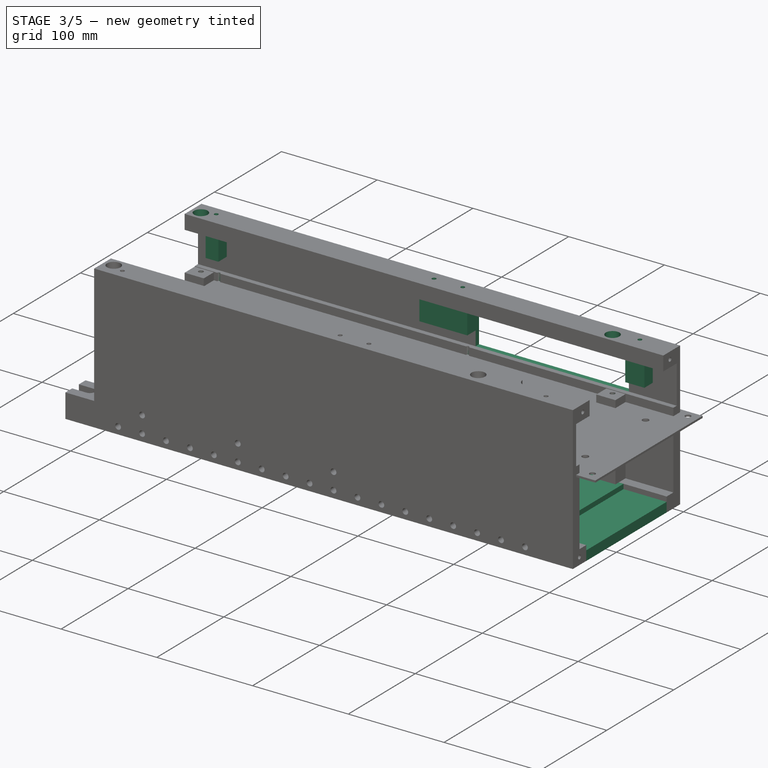
[diagram: stage 3 of 5 — iso view after this stage's code; geometry added in this stage tinted green]
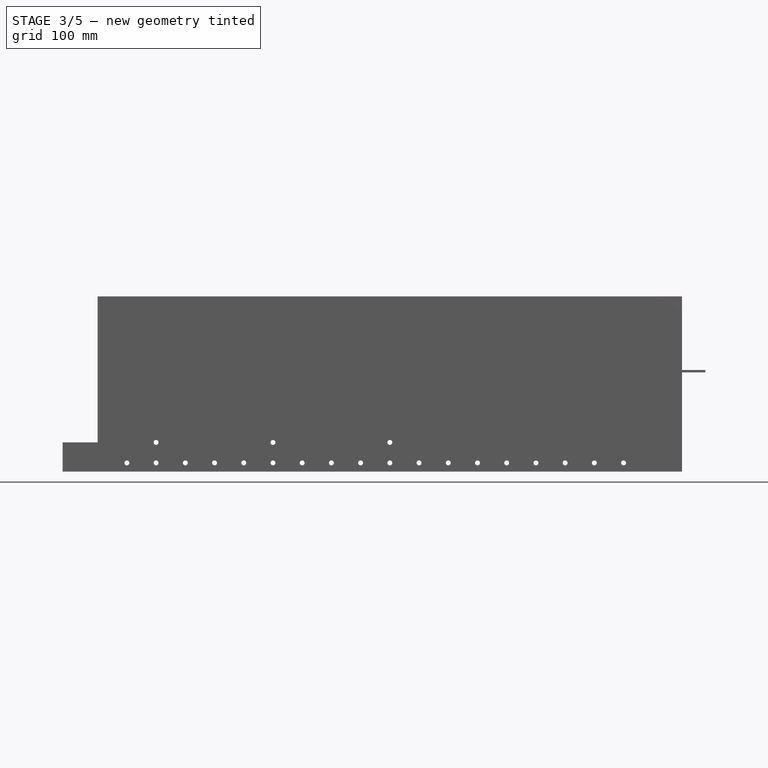
[diagram: stage 3 of 5 — front view after this stage's code; geometry added in this stage tinted green]
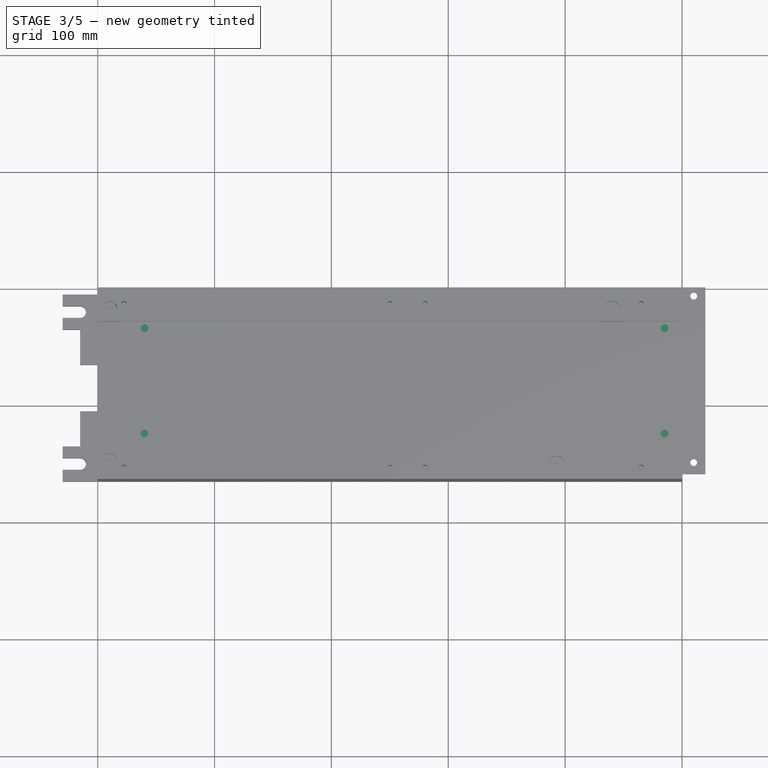
[diagram: stage 3 of 5 — top view after this stage's code; geometry added in this stage tinted green]
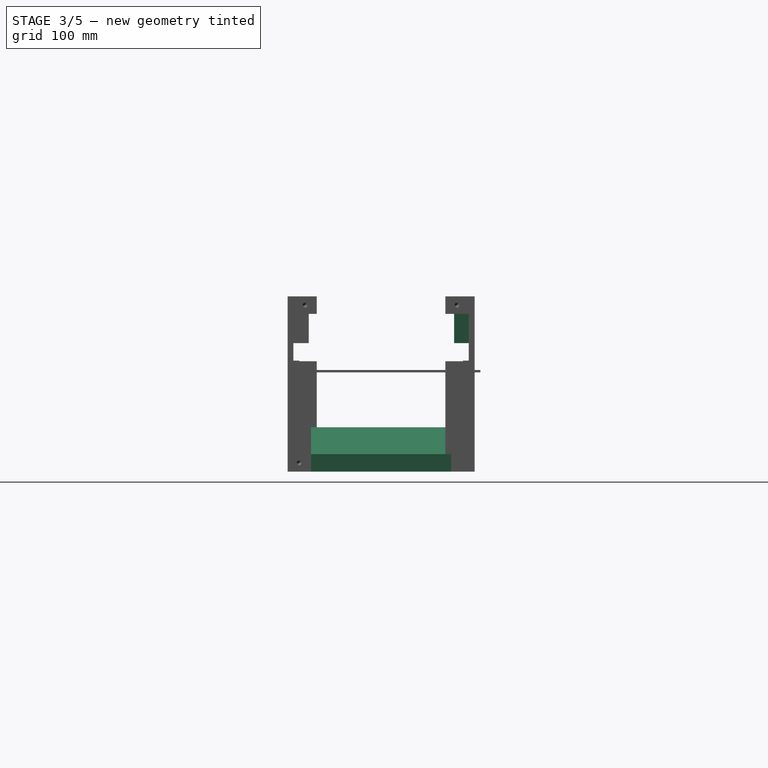
[diagram: stage 3 of 5 — right view after this stage's code; geometry added in this stage tinted green]
FEATURE [Sketcher::SketchObject] Sketch006  label="BasePlateBaseSketch"
  ArcFitTolerance = 1e-06
  AttachmentSupport = -> [YZ_Plane167]
  FullyConstrained = false
  MakeInternals = false
  MapMode = 5
  Placement = pos=(0,0,0) rot=(0.57735,0.57735,0.57735;2.0944rad)
  sketch-geometry (8):
    g0: LineSegment StartX=-155 StartY=-47 StartZ=0 EndX=-155 EndY=-70 EndZ=0
    g1: LineSegment StartX=-155 StartY=-70 StartZ=0 EndX=-15 EndY=-70 EndZ=0
    g2: LineSegment StartX=-15 StartY=-70 StartZ=0 EndX=-15 EndY=-47 EndZ=0
    g3: LineSegment StartX=-15 StartY=-47 StartZ=0 EndX=-155 EndY=-47 EndZ=0
    g4: LineSegment StartX=-145 StartY=-85 StartZ=0 EndX=-25.0861 EndY=-85 EndZ=0
    g5: LineSegment StartX=-25.0861 StartY=-85 StartZ=0 EndX=-25.0861 EndY=-70 EndZ=0
    g6: LineSegment StartX=-25.0861 StartY=-70 StartZ=0 EndX=-145 EndY=-70 EndZ=0
    g7: LineSegment StartX=-145 StartY=-70 StartZ=0 EndX=-145 EndY=-85 EndZ=0
  constraints (17):
    c: Coincident(g0,g1)
    c: Coincident(g1,g2)
    c: Coincident(g2,g3)
    c: Coincident(g3,g0)
    c: Vertical(g0)
    c: Vertical(g2)
    c: Horizontal(g1)
    c: Horizontal(g3)
    c: Coincident(g4,g5)
    c: Coincident(g5,g6)
    c: Coincident(g6,g7)
    c: Coincident(g7,g4)
    c: Horizontal(g4)
    c: Horizontal(g6)
    c: Vertical(g5)
    c: Vertical(g7)
    c: PointOnObject(g5,g1)
FEATURE [PartDesign::Pad] Pad003  label="BasePlateMainExtrusion"
  Direction = (1,0,0)
  Length = 500
  Length2 = 10
  Placement = pos=(0,0,0) rot=(1,1,1;2.0944rad)
  Profile = -> Sketch006
  ReferenceAxis = -> Sketch006 [N_Axis]
  Refine = true
  Suppressed = false
  Type = 0
FEATURE [Sketcher::SketchObject] Sketch007  label="ExtrusionSidecutout"
  ArcFitTolerance = 1e-06
  AttachmentSupport = -> [XZ_Plane167]
  FullyConstrained = false
  MakeInternals = false
  MapMode = 5
  Placement = pos=(0,0,0) rot=(1,0,0;1.5708rad)
  sketch-geometry (9):
    g0: LineSegment StartX=500 StartY=-45 StartZ=0 EndX=365 EndY=-45 EndZ=0
    g1: LineSegment StartX=500 StartY=-70 StartZ=0 EndX=500 EndY=-45 EndZ=0
    g2: LineSegment StartX=365 StartY=-45 StartZ=0 EndX=330 EndY=-45 EndZ=0
    g3: LineSegment StartX=365 StartY=-70 StartZ=0 EndX=330 EndY=-45 EndZ=0
    g4: LineSegment StartX=365 StartY=-70 StartZ=0 EndX=500 EndY=-70 EndZ=0
    g5: LineSegment StartX=455 StartY=-75 StartZ=0 EndX=500 EndY=-75 EndZ=0
    g6: LineSegment StartX=500 StartY=-75 StartZ=0 EndX=500 EndY=-70 EndZ=0
    g7: LineSegment StartX=500 StartY=-70 StartZ=0 EndX=455 EndY=-70 EndZ=0
    g8: LineSegment StartX=455 StartY=-70 StartZ=0 EndX=455 EndY=-75 EndZ=0
  constraints (18):
    c: Coincident(g1,g0)
    c: Horizontal(g0)
    c: Vertical(g1)
    c: Coincident(g2,g0)
    c: Horizontal(g2)
    c: Coincident(g3,g2)
    c: Coincident(g4,g3)
    c: Coincident(g4,g1)
    c: Horizontal(g4)
    c: Coincident(g5,g6)
    c: Coincident(g6,g7)
    c: Coincident(g7,g8)
    c: Coincident(g8,g5)
    c: Horizontal(g5)
    c: Horizontal(g7)
    c: Vertical(g6)
    c: Vertical(g8)
    c: Coincident(g6,g1)
FEATURE [PartDesign::Pocket] Pocket  label="BaseConfigurationWithAirflowBlock"
  BaseFeature = -> Pad003
  Direction = (0,1,-2e-16)
  Length = 200
  Length2 = 5
  Placement = pos=(0,0,0) rot=(1,1,1;2.0944rad)
  Profile = -> Sketch007
  ReferenceAxis = -> Sketch007 [N_Axis]
  Refine = true
  Reversed = true
  Suppressed = false
  Type = 0
FEATURE [Sketcher::SketchObject] Sketch014  label="HorizontalMountingHoles"
  ArcFitTolerance = 1e-06
  AttachmentSupport = -> [XZ_Plane167]
  FullyConstrained = false
  MakeInternals = false
  MapMode = 5
  Placement = pos=(0,0,0) rot=(1,0,0;1.5708rad)
  sketch-geometry (21):
    g0: Circle CenterX=25 CenterY=-77.5 CenterZ=0 NormalX=0 NormalY=0 NormalZ=1 AngleXU=0 Radius=2.58504
    g1: Circle CenterX=50 CenterY=-77.5 CenterZ=0 NormalX=0 NormalY=0 NormalZ=1 AngleXU=0 Radius=2.43589
    g2: Circle CenterX=50 CenterY=-60 CenterZ=0 NormalX=0 NormalY=0 NormalZ=1 AngleXU=0 Radius=2.66448
    g3: Circle CenterX=75 CenterY=-77.5 CenterZ=0 NormalX=0 NormalY=0 NormalZ=1 AngleXU=0 Radius=1.96348
    g4: Circle CenterX=100 CenterY=-77.5 CenterZ=0 NormalX=0 NormalY=0 NormalZ=1 AngleXU=0 Radius=2.5
    g5: Circle CenterX=125 CenterY=-77.5 CenterZ=0 NormalX=0 NormalY=0 NormalZ=1 AngleXU=0 Radius=2.5
    g6: Circle CenterX=150 CenterY=-60 CenterZ=0 NormalX=0 NormalY=0 NormalZ=1 AngleXU=0 Radius=2.5
    g7: Circle CenterX=150 CenterY=-77.5 CenterZ=0 NormalX=0 NormalY=0 NormalZ=1 AngleXU=0 Radius=2.5
    g8: Circle CenterX=175 CenterY=-77.5 CenterZ=0 NormalX=0 NormalY=0 NormalZ=1 AngleXU=0 Radius=2.5
    g9: Circle CenterX=200 CenterY=-77.5 CenterZ=0 NormalX=0 NormalY=0 NormalZ=1 AngleXU=0 Radius=2.5
    g10: Circle CenterX=225 CenterY=-77.5 CenterZ=0 NormalX=0 NormalY=0 NormalZ=1 AngleXU=0 Radius=2.5
    g11: Circle CenterX=250 CenterY=-60 CenterZ=0 NormalX=0 NormalY=0 NormalZ=1 AngleXU=0 Radius=2.5
    g12: Circle CenterX=250 CenterY=-77.5 CenterZ=0 NormalX=0 NormalY=0 NormalZ=1 AngleXU=0 Radius=2.5
    g13: Circle CenterX=275 CenterY=-77.5 CenterZ=0 NormalX=0 NormalY=0 NormalZ=1 AngleXU=0 Radius=2.5
    g14: Circle CenterX=300 CenterY=-77.5 CenterZ=0 NormalX=0 NormalY=0 NormalZ=1 AngleXU=0 Radius=2.5
    g15: Circle CenterX=325 CenterY=-77.5 CenterZ=0 NormalX=0 NormalY=0 NormalZ=1 AngleXU=0 Radius=2.5
    g16: Circle CenterX=350 CenterY=-77.5 CenterZ=0 NormalX=0 NormalY=0 NormalZ=1 AngleXU=0 Radius=2.5
    g17: Circle CenterX=375 CenterY=-77.5 CenterZ=0 NormalX=0 NormalY=0 NormalZ=1 AngleXU=0 Radius=2.5
    g18: Circle CenterX=400 CenterY=-77.5 CenterZ=0 NormalX=0 NormalY=0 NormalZ=1 AngleXU=0 Radius=2.5
    g19: Circle CenterX=425 CenterY=-77.5 CenterZ=0 NormalX=0 NormalY=0 NormalZ=1 AngleXU=0 Radius=2.5
    g20: Circle CenterX=450 CenterY=-77.5 CenterZ=0 NormalX=0 NormalY=0 NormalZ=1 AngleXU=0 Radius=2.5
FEATURE [PartDesign::Hole] Hole005  label="HorizontalMountingHolesBase"
  BaseFeature = -> Pocket
  CustomThreadClearance = 0
  Depth = 1012.21
  DepthType = 1
  Diameter = 4.2
  DrillForDepth = false
  DrillPoint = 1
  DrillPointAngle = 118
  HoleCutCountersinkAngle = 90
  HoleCutCustomValues = false
  HoleCutDepth = 0
  HoleCutDiameter = 6.1
  HoleCutType = 0
  ModelThread = false
  Placement = pos=(0,0,0) rot=(1,1,1;2.0944rad)
  Profile = -> Sketch014
  Refine = true
  Reversed = true
  Suppressed = false
  Tapered = false
  TaperedAngle = 90
  ThreadClass = 0
  ThreadDepth = 1012.21
  ThreadDepthType = 0
  ThreadDirection = 0
  ThreadFit = 0
  ThreadSize = 13
  ThreadType = 1
  Threaded = true
  UseCustomThreadClearance = false
FEATURE [Sketcher::SketchObject] Sketch024  label="PCBScrewHoles"
  ArcFitTolerance = 1e-06
  AttachmentOffset = pos=(0,0,11) rot=(0,0,1;0rad)
  AttachmentSupport = -> [XY_Plane166]
  FullyConstrained = false
  MakeInternals = false
  MapMode = 5
  Placement = pos=(0,0,11) rot=(0,0,1;0rad)
  sketch-geometry (4):
    g0: Circle CenterX=10 CenterY=-20 CenterZ=0 NormalX=0 NormalY=0 NormalZ=1 AngleXU=0 Radius=2.5
    g1: Circle CenterX=25 CenterY=-15 CenterZ=0 NormalX=0 NormalY=0 NormalZ=1 AngleXU=0 Radius=1.5223
    g2: Circle CenterX=285 CenterY=-15 CenterZ=0 NormalX=0 NormalY=0 NormalZ=1 AngleXU=0 Radius=1.53921
    g3: Circle CenterX=440 CenterY=-20 CenterZ=0 NormalX=0 NormalY=0 NormalZ=1 AngleXU=0 Radius=2.5
FEATURE [PartDesign::Pocket] Pocket004  label="RightSidePCBHoles"
  BaseFeature = -> Pad010
  Direction = (0,0,-1)
  Length = 25
  Length2 = 5
  Placement = pos=(0,0,0) rot=(0.57735,0.57735,0.57735;2.0944rad)
  Profile = -> Sketch024
  ReferenceAxis = -> Sketch024 [N_Axis]
  Refine = true
  Suppressed = false
  Type = 0
FEATURE [Sketcher::SketchObject] Sketch027  label="RightSideTopMountSketch"
  ArcFitTolerance = 1e-06
  AttachmentOffset = pos=(0,0,25) rot=(0,0,1;0rad)
  AttachmentSupport = -> [XY_Plane166]
  FullyConstrained = false
  MakeInternals = false
  MapMode = 5
  Placement = pos=(0,0,25) rot=(0,0,1;0rad)
  sketch-geometry (12):
    g0: LineSegment StartX=290 StartY=-22.5 StartZ=0 EndX=290 EndY=-5 EndZ=0
    g1: LineSegment StartX=290 StartY=-5 StartZ=0 EndX=240 EndY=-5 EndZ=0
    g2: LineSegment StartX=240 StartY=-5 StartZ=0 EndX=240 EndY=-22.5 EndZ=0
    g3: LineSegment StartX=240 StartY=-22.5 StartZ=0 EndX=290 EndY=-22.5 EndZ=0
    g4: LineSegment StartX=455 StartY=-22.5 StartZ=0 EndX=475 EndY=-22.5 EndZ=0
    g5: LineSegment StartX=475 StartY=-22.5 StartZ=0 EndX=475 EndY=-5 EndZ=0
    g6: LineSegment StartX=475 StartY=-5 StartZ=0 EndX=455 EndY=-5 EndZ=0
    g7: LineSegment StartX=455 StartY=-5 StartZ=0 EndX=455 EndY=-22.5 EndZ=0
    g8: LineSegment StartX=30 StartY=-22.5 StartZ=0 EndX=30 EndY=-7.07502 EndZ=0
    g9: LineSegment StartX=30 StartY=-7.07502 StartZ=0 EndX=15 EndY=-7.07502 EndZ=0
    g10: LineSegment StartX=15 StartY=-7.07502 StartZ=0 EndX=15 EndY=-22.5 EndZ=0
    g11: LineSegment StartX=15 StartY=-22.5 StartZ=0 EndX=30 EndY=-22.5 EndZ=0
  constraints (24):
    c: Coincident(g0,g1)
    c: Coincident(g1,g2)
    c: Coincident(g2,g3)
    c: Coincident(g3,g0)
    c: Vertical(g0)
    c: Vertical(g2)
    c: Horizontal(g1)
    c: Horizontal(g3)
    c: Coincident(g4,g5)
    c: Coincident(g5,g6)
    c: Coincident(g6,g7)
    c: Coincident(g7,g4)
    c: Horizontal(g4)
    c: Horizontal(g6)
    c: Vertical(g5)
    c: Vertical(g7)
    c: Coincident(g8,g9)
    c: Coincident(g9,g10)
    c: Coincident(g10,g11)
    c: Coincident(g11,g8)
    c: Vertical(g8)
    c: Vertical(g10)
    c: Horizontal(g9)
    c: Horizontal(g11)
FEATURE [PartDesign::Pad] Pad012  label="RightSideLidSupports"
  BaseFeature = -> Pocket004
  Direction = (0,0,1)
  Length = 25
  Length2 = 10
  Placement = pos=(0,0,0) rot=(0.57735,0.57735,0.57735;2.0944rad)
  Profile = -> Sketch027
  ReferenceAxis = -> Sketch027 [N_Axis]
  Refine = true
  Suppressed = false
  Type = 0
FEATURE [Sketcher::SketchObject] Sketch028  label="RightSideTopScrewSketch"
  ArcFitTolerance = 1e-06
  AttachmentOffset = pos=(0,0,12) rot=(0,0,1;0rad)
  AttachmentSupport = -> [XY_Plane166]
  FullyConstrained = false
  MakeInternals = false
  MapMode = 5
  Placement = pos=(0,0,12) rot=(0,0,1;0rad)
  sketch-geometry (4):
    g0: Circle CenterX=22.5 CenterY=-15 CenterZ=0 NormalX=0 NormalY=0 NormalZ=1 AngleXU=0 Radius=2.60768
    g1: Circle CenterX=250 CenterY=-15 CenterZ=0 NormalX=0 NormalY=0 NormalZ=1 AngleXU=0 Radius=3.07774
    g2: Circle CenterX=280 CenterY=-15 CenterZ=0 NormalX=0 NormalY=0 NormalZ=1 AngleXU=0 Radius=2.59878
    g3: Circle CenterX=465 CenterY=-15 CenterZ=0 NormalX=0 NormalY=0 NormalZ=1 AngleXU=0 Radius=3.33688
FEATURE [PartDesign::Hole] Hole009  label="TopHoles"
  BaseFeature = -> Pad012
  CustomThreadClearance = 0
  Depth = 1112.41
  DepthType = 1
  Diameter = 4.2
  DrillForDepth = false
  DrillPoint = 1
  DrillPointAngle = 118
  HoleCutCountersinkAngle = 90
  HoleCutCustomValues = false
  HoleCutDepth = 0
  HoleCutDiameter = 6.1
  HoleCutType = 0
  ModelThread = false
  Placement = pos=(0,0,0) rot=(0.57735,0.57735,0.57735;2.0944rad)
  Profile = -> Sketch028
  Refine = true
  Reversed = true
  Suppressed = false
  Tapered = false
  TaperedAngle = 90
  ThreadClass = 0
  ThreadDepth = 1112.41
  ThreadDepthType = 0
  ThreadDirection = 0
  ThreadFit = 0
  ThreadSize = 13
  ThreadType = 1
  Threaded = true
  UseCustomThreadClearance = false
FEATURE [Sketcher::SketchObject] Sketch030  label="SideCutoutSketch"
  ArcFitTolerance = 1e-06
  AttachmentOffset = pos=(0,0,5) rot=(0,0,1;0rad)
  AttachmentSupport = -> [XZ_Plane166]
  FullyConstrained = false
  MakeInternals = false
  MapMode = 5
  Placement = pos=(0,-5,1.1e-15) rot=(1,0,0;1.5708rad)
  sketch-geometry (4):
    g0: LineSegment StartX=290 StartY=40 StartZ=0 EndX=290 EndY=10 EndZ=0
    g1: LineSegment StartX=290 StartY=10 StartZ=0 EndX=450 EndY=10 EndZ=0
    g2: LineSegment StartX=450 StartY=10 StartZ=0 EndX=450 EndY=40 EndZ=0
    g3: LineSegment StartX=450 StartY=40 StartZ=0 EndX=290 EndY=40 EndZ=0
  constraints (8):
    c: Coincident(g0,g1)
    c: Coincident(g1,g2)
    c: Coincident(g2,g3)
    c: Coincident(g3,g0)
    c: Vertical(g0)
    c: Vertical(g2)
    c: Horizontal(g1)
    c: Horizontal(g3)
FEATURE [PartDesign::Pocket] Pocket006  label="SideCutout"
  BaseFeature = -> Hole009
  Direction = (0,1,-2e-16)
  Length = 10
  Length2 = 5
  Placement = pos=(0,0,0) rot=(0.57735,0.57735,0.57735;2.0944rad)
  Profile = -> Sketch030
  ReferenceAxis = -> Sketch030 [N_Axis]
  Refine = true
  Reversed = true
  Suppressed = false
  Type = 0
FEATURE [App::DocumentObjectGroup] GrExplode_Slice  label="TopLidSlices"
  Group = -> [Slice_child0,Slice_child1]
FEATURE [Sketcher::SketchObject] Sketch033  label="FrontMountingPostCutoutSketch"
  ArcFitTolerance = 1e-06
  AttachmentOffset = pos=(0,0,-40) rot=(0,0,1;0rad)
  AttachmentSupport = -> [XY_Plane167]
  FullyConstrained = false
  MakeInternals = false
  MapMode = 5
  Placement = pos=(0,0,-40) rot=(0,0,1;0rad)
  sketch-geometry (8):
    g0: LineSegment StartX=20 StartY=-140 StartZ=0 EndX=0 EndY=-140 EndZ=0
    g1: LineSegment StartX=0 StartY=-140 StartZ=0 EndX=0 EndY=-160 EndZ=0
    g2: LineSegment StartX=0 StartY=-160 StartZ=0 EndX=20 EndY=-160 EndZ=0
    g3: LineSegment StartX=20 StartY=-160 StartZ=0 EndX=20 EndY=-140 EndZ=0
    g4: LineSegment StartX=20 StartY=-30 StartZ=0 EndX=20 EndY=-10 EndZ=0
    g5: LineSegment StartX=20 StartY=-10 StartZ=0 EndX=0 EndY=-10 EndZ=0
    g6: LineSegment StartX=0 StartY=-10 StartZ=0 EndX=0 EndY=-30 EndZ=0
    g7: LineSegment StartX=0 StartY=-30 StartZ=0 EndX=20 EndY=-30 EndZ=0
  constraints (17):
    c: Coincident(g0,g1)
    c: Coincident(g1,g2)
    c: Coincident(g2,g3)
    c: Coincident(g3,g0)
    c: Horizontal(g0)
    c: Horizontal(g2)
    c: Vertical(g1)
    c: Vertical(g3)
    c: Coincident(g4,g5)
    c: Coincident(g5,g6)
    c: Coincident(g6,g7)
    c: Coincident(g7,g4)
    c: Vertical(g4)
    c: Vertical(g6)
    c: Horizontal(g5)
    c: Horizontal(g7)
    c: PointOnObject(g5,g-2)
FEATURE [PartDesign::Pocket] Pocket007
  BaseFeature = -> Hole005
  Direction = (0,0,-1)
  Length = 36
  Length2 = 5
  Placement = pos=(0,0,0) rot=(1,1,1;2.0944rad)
  Profile = -> Sketch033
  ReferenceAxis = -> Sketch033 [N_Axis]
  Refine = true
  Suppressed = false
  Type = 1
FEATURE [PartDesign::Body] Body003  label="BottomBasePlate"
  AllowCompound = false
  Group = -> [Sketch006,Pad003,Sketch007,Pocket,Sketch014,Hole005,Sketch033,Pocket007]
  Origin = -> Origin167
  Tip = -> Pocket007
FEATURE [Part::FeaturePython] Slice003  # WARN: FeaturePython — macro-defined, semantics opaque (R4)
  Base = -> Body003
  Mode = 1
  Tolerance = 0
  Tools = -> [Plane004,Plane003]
FEATURE [App::DocumentObjectGroup] GrExplode_Slice003  label="BottomSlices"
  Group = -> [Slice003_child0,Slice003_child1,Slice003_child2]
FEATURE [Sketcher::SketchObject] Sketch034
  ArcFitTolerance = 1e-06
  AttachmentOffset = pos=(0,0,12) rot=(0,0,1;0rad)
  AttachmentSupport = -> [XY_Plane166]
  FullyConstrained = false
  MakeInternals = false
  MapMode = 5
  Placement = pos=(0,0,12) rot=(0,0,1;0rad)
  sketch-geometry (2):
    g0: Circle CenterX=10 CenterY=-20 CenterZ=0 NormalX=0 NormalY=0 NormalZ=1 AngleXU=0 Radius=7.07107
    g1: Circle CenterX=440 CenterY=-20 CenterZ=0 NormalX=0 NormalY=0 NormalZ=1 AngleXU=0 Radius=7.07107
FEATURE [PartDesign::Pocket] Pocket008
  BaseFeature = -> Pocket006
  Direction = (0,0,-1)
  Length = 100
  Length2 = 5
  Placement = pos=(0,0,0) rot=(0.57735,0.57735,0.57735;2.0944rad)
  Profile = -> Sketch034
  ReferenceAxis = -> Sketch034 [N_Axis]
  Refine = true
  Reversed = true
  Suppressed = false
  Type = 0
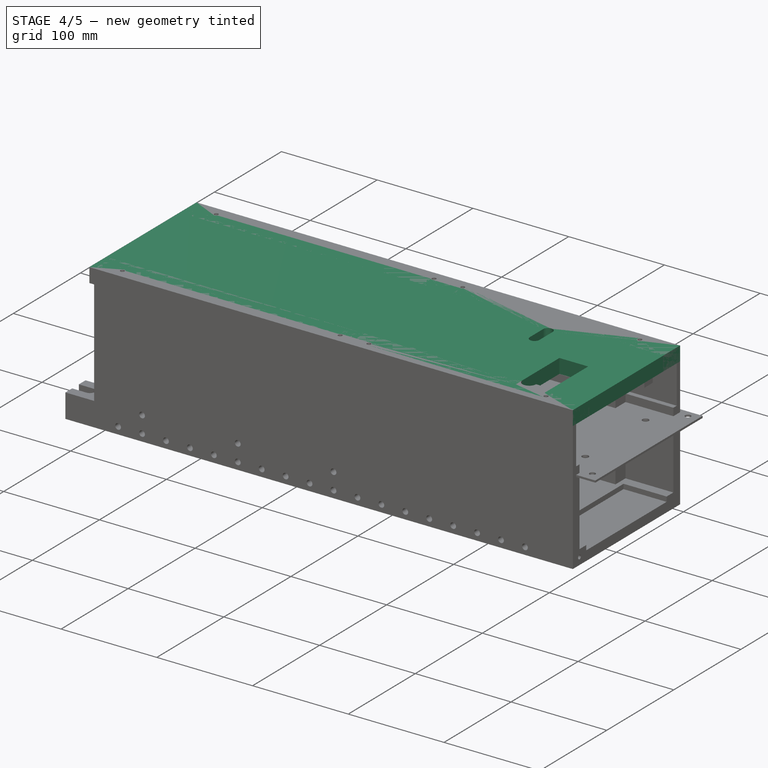
[diagram: stage 4 of 5 — iso view after this stage's code; geometry added in this stage tinted green]
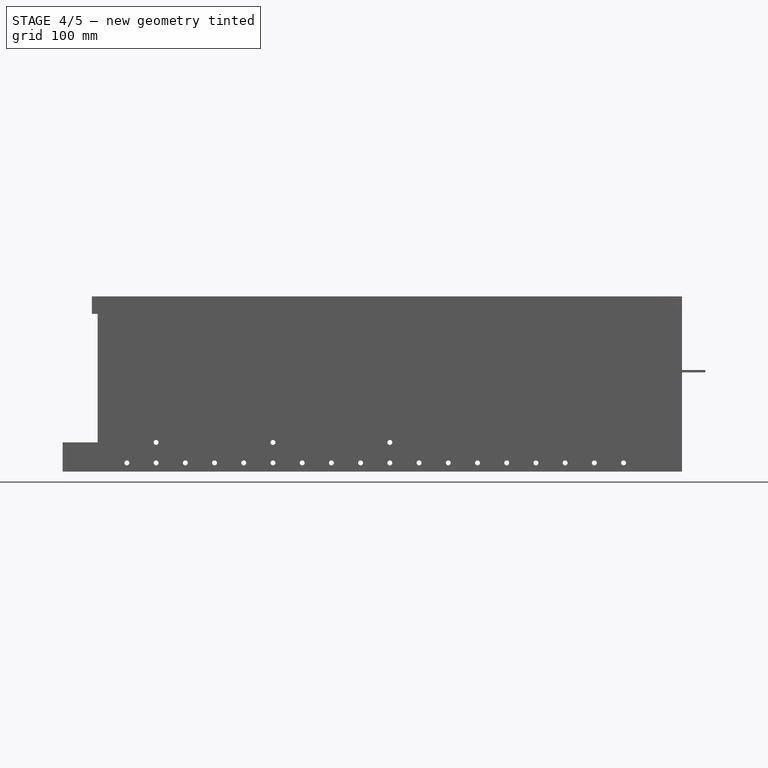
[diagram: stage 4 of 5 — front view after this stage's code; geometry added in this stage tinted green]
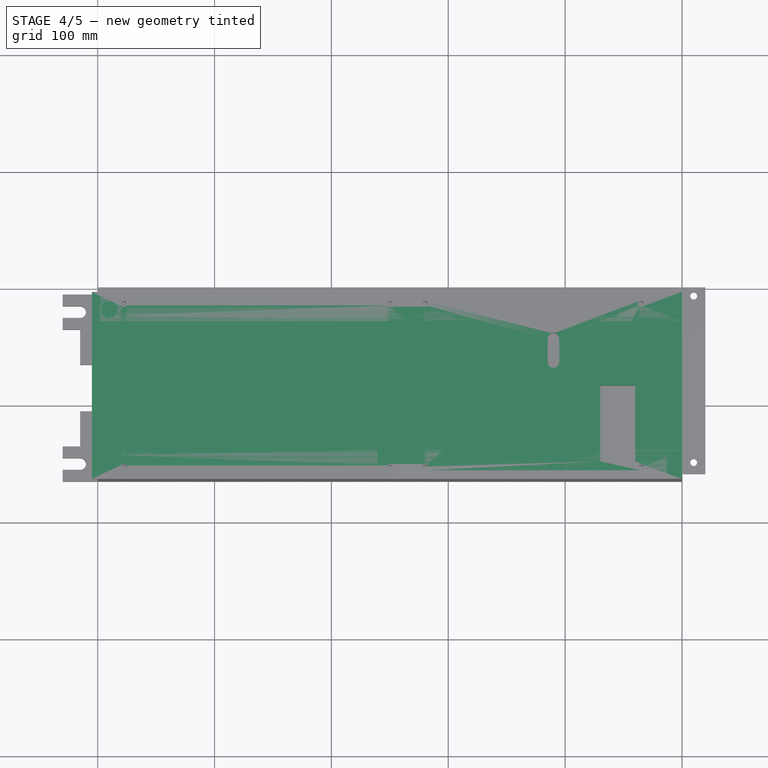
[diagram: stage 4 of 5 — top view after this stage's code; geometry added in this stage tinted green]
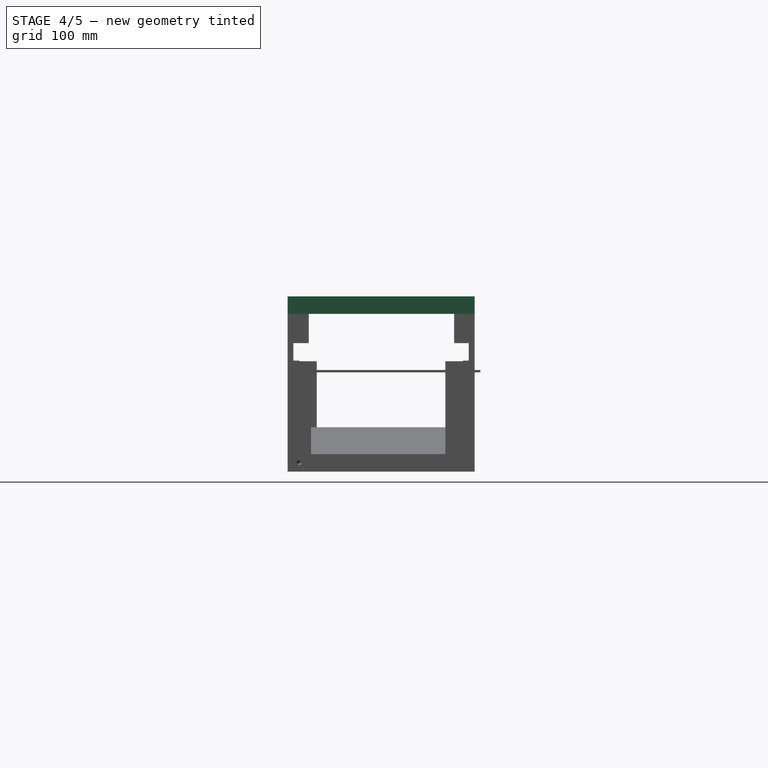
[diagram: stage 4 of 5 — right view after this stage's code; geometry added in this stage tinted green]
FEATURE [PartDesign::Body] Body001  label="FanMount"
  AllowCompound = false
  Group = -> [Sketch002,Pad002,Sketch005,Hole002,Sketch017,Pad006,Sketch018,Pocket003,Sketch020,Hole008]
  Origin = -> Origin165
  Tip = -> Hole008
FEATURE [Sketcher::SketchObject] Sketch021  label="TopLidBaseSketch"
  ArcFitTolerance = 1e-06
  AttachmentOffset = pos=(0,0,50) rot=(0,0,1;0rad)
  AttachmentSupport = -> [XY_Plane327]
  FullyConstrained = false
  MakeInternals = false
  MapMode = 5
  Placement = pos=(0,0,50) rot=(0,0,1;0rad)
  sketch-geometry (12):
    g0: LineSegment StartX=-5 StartY=-5 StartZ=0 EndX=-5 EndY=-165 EndZ=0
    g1: LineSegment StartX=-5 StartY=-165 StartZ=0 EndX=500 EndY=-165 EndZ=0
    g2: LineSegment StartX=500 StartY=-165 StartZ=0 EndX=500 EndY=-5 EndZ=0
    g3: LineSegment StartX=500 StartY=-5 StartZ=0 EndX=-5 EndY=-5 EndZ=0
    g4: LineSegment StartX=430 StartY=-85 StartZ=0 EndX=430 EndY=-150 EndZ=0
    g5: LineSegment StartX=430 StartY=-150 StartZ=0 EndX=460 EndY=-150 EndZ=0
    g6: LineSegment StartX=460 StartY=-150 StartZ=0 EndX=460 EndY=-85 EndZ=0
    g7: LineSegment StartX=460 StartY=-85 StartZ=0 EndX=430 EndY=-85 EndZ=0
    g8: ArcOfCircle CenterX=390 CenterY=-45 CenterZ=0 NormalX=0 NormalY=0 NormalZ=1 AngleXU=0 Radius=5 StartAngle=1.23e-14 EndAngle=3.14159
    g9: ArcOfCircle CenterX=390 CenterY=-65 CenterZ=0 NormalX=0 NormalY=0 NormalZ=1 AngleXU=0 Radius=5 StartAngle=3.14159 EndAngle=6.28319
    g10: LineSegment StartX=395 StartY=-45 StartZ=0 EndX=395 EndY=-65 EndZ=0
    g11: LineSegment StartX=385 StartY=-45 StartZ=0 EndX=385 EndY=-65 EndZ=0
  constraints (22):
    c: Coincident(g0,g1)
    c: Coincident(g1,g2)
    c: Coincident(g2,g3)
    c: Coincident(g3,g0)
    c: Vertical(g0)
    c: Vertical(g2)
    c: Horizontal(g1)
    c: Horizontal(g3)
    c: Coincident(g4,g5)
    c: Coincident(g5,g6)
    c: Coincident(g6,g7)
    c: Coincident(g7,g4)
    c: Vertical(g4)
    c: Vertical(g6)
    c: Horizontal(g5)
    c: Horizontal(g7)
    c: Tangent(g8,g10) = 1.5708
    c: Tangent(g8,g11) = -1.5708
    c: Tangent(g9,g10) = 1.5708
    c: Tangent(g9,g11) = -1.5708
    c: Equal(g8,g9)
    c: Vertical(g11)
FEATURE [PartDesign::Pad] Pad008  label="TopLidPad"
  Direction = (0,0,1)
  Length = 15
  Length2 = 10
  Profile = -> Sketch021
  ReferenceAxis = -> Sketch021 [N_Axis]
  Refine = true
  Suppressed = false
  Type = 0
FEATURE [Sketcher::SketchObject] Sketch031  label="TopHolesSketch"
  ArcFitTolerance = 1e-06
  AttachmentSupport = -> [XY_Plane327]
  FullyConstrained = false
  MakeInternals = false
  MapMode = 5
  sketch-geometry (8):
    g0: Circle CenterX=22.5 CenterY=-15 CenterZ=0 NormalX=0 NormalY=0 NormalZ=1 AngleXU=0 Radius=2.00757
    g1: Circle CenterX=250 CenterY=-15 CenterZ=0 NormalX=0 NormalY=0 NormalZ=1 AngleXU=0 Radius=1.95509
    g2: Circle CenterX=280 CenterY=-15 CenterZ=0 NormalX=0 NormalY=0 NormalZ=1 AngleXU=0 Radius=2.5
    g3: Circle CenterX=465 CenterY=-15 CenterZ=0 NormalX=0 NormalY=0 NormalZ=1 AngleXU=0 Radius=1.82747
    g4: Circle CenterX=465 CenterY=-155 CenterZ=0 NormalX=0 NormalY=0 NormalZ=1 AngleXU=0 Radius=1.95552
    g5: Circle CenterX=280 CenterY=-155 CenterZ=0 NormalX=0 NormalY=0 NormalZ=1 AngleXU=0 Radius=1.98967
    g6: Circle CenterX=250 CenterY=-155 CenterZ=0 NormalX=0 NormalY=0 NormalZ=1 AngleXU=0 Radius=1.78867
    g7: Circle CenterX=22.5 CenterY=-155 CenterZ=0 NormalX=0 NormalY=0 NormalZ=1 AngleXU=0 Radius=1.854
FEATURE [PartDesign::Hole] Hole011  label="TopLidWithHoles"
  BaseFeature = -> Pad008
  CustomThreadClearance = 0
  Depth = 1078.1
  DepthType = 1
  Diameter = 5.5
  DrillForDepth = false
  DrillPoint = 1
  DrillPointAngle = 118
  HoleCutCountersinkAngle = 90
  HoleCutCustomValues = false
  HoleCutDepth = 0
  HoleCutDiameter = 6.1
  HoleCutType = 0
  ModelThread = false
  Profile = -> Sketch031
  Refine = true
  Reversed = true
  Suppressed = false
  Tapered = false
  TaperedAngle = 90
  ThreadClass = 0
  ThreadDepth = 1078.1
  ThreadDepthType = 0
  ThreadDirection = 0
  ThreadFit = 0
  ThreadSize = 13
  ThreadType = 1
  Threaded = false
  UseCustomThreadClearance = false
FEATURE [Part::FeaturePython] Slice003_child0  label="Slice003.0"  # WARN: FeaturePython — macro-defined, semantics opaque (R4)
  Base = -> Slice003
  FilterType = 1
  Invert = false
  OverrideMaxVal = 0
  WindowFrom = 80
  WindowTo = 100
  items = 0
FEATURE [Part::FeaturePython] Slice003_child1  label="Slice003.1"  # WARN: FeaturePython — macro-defined, semantics opaque (R4)
  Base = -> Slice003
  FilterType = 1
  Invert = false
  OverrideMaxVal = 0
  WindowFrom = 80
  WindowTo = 100
  items = 1
FEATURE [Part::FeaturePython] Slice003_child2  label="Slice003.2"  # WARN: FeaturePython — macro-defined, semantics opaque (R4)
  Base = -> Slice003
  FilterType = 1
  Invert = false
  OverrideMaxVal = 0
  WindowFrom = 80
  WindowTo = 100
  items = 2
FEATURE [PartDesign::Body] Body002  label="RightSidePanel"
  AllowCompound = false
  Group = -> [Sketch004,MirroredSketch,Pad001,Hole001,Sketch010,Pad005,Sketch011,Pocket002,Sketch012,Hole004,Sketch015,Hole006,Sketch023,Pad010,Sketch024,Pocket004,Sketch027,Pad012,Sketch028,Hole009,Sketch030,Pocket006,Sketch034,Pocket008]
  Origin = -> Origin166
  Tip = -> Pocket008
FEATURE [Part::FeaturePython] Slice002  # WARN: FeaturePython — macro-defined, semantics opaque (R4)
  Base = -> Body002
  Mode = 1
  Tolerance = 0
  Tools = -> [Plane002]
FEATURE [Part::FeaturePython] Slice002_child0  label="Slice002.0"  # WARN: FeaturePython — macro-defined, semantics opaque (R4)
  Base = -> Slice002
  FilterType = 1
  Invert = false
  OverrideMaxVal = 0
  WindowFrom = 80
  WindowTo = 100
  items = 0
FEATURE [Part::FeaturePython] Slice002_child1  label="Slice002.1"  # WARN: FeaturePython — macro-defined, semantics opaque (R4)
  Base = -> Slice002
  FilterType = 1
  Invert = false
  OverrideMaxVal = 0
  WindowFrom = 80
  WindowTo = 100
  items = 1
FEATURE [PartDesign::Body] Body  label="LeftSidePanel"
  AllowCompound = false
  Group = -> [Sketch,Pad,Sketch001,Hole,Sketch008,Pad004,Sketch009,Pocket001,Sketch013,Hole003,Sketch016,Hole007,Sketch022,Pad009,Sketch025,Pocket005,Sketch026,Pad011,Sketch029,Hole010,Sketch036,Pocket009]
  Origin = -> Origin163
  Tip = -> Pocket009
FEATURE [Part::FeaturePython] Slice001  # WARN: FeaturePython — macro-defined, semantics opaque (R4)
  Base = -> Body
  Mode = 1
  Tolerance = 0
  Tools = -> [Plane001]
FEATURE [Part::FeaturePython] Slice001_child0  label="Slice001.0"  # WARN: FeaturePython — macro-defined, semantics opaque (R4)
  Base = -> Slice001
  FilterType = 1
  Invert = false
  OverrideMaxVal = 0
  WindowFrom = 80
  WindowTo = 100
  items = 0
FEATURE [Part::FeaturePython] Slice001_child1  label="Slice001.1"  # WARN: FeaturePython — macro-defined, semantics opaque (R4)
  Base = -> Slice001
  FilterType = 1
  Invert = false
  OverrideMaxVal = 0
  WindowFrom = 80
  WindowTo = 100
  items = 1
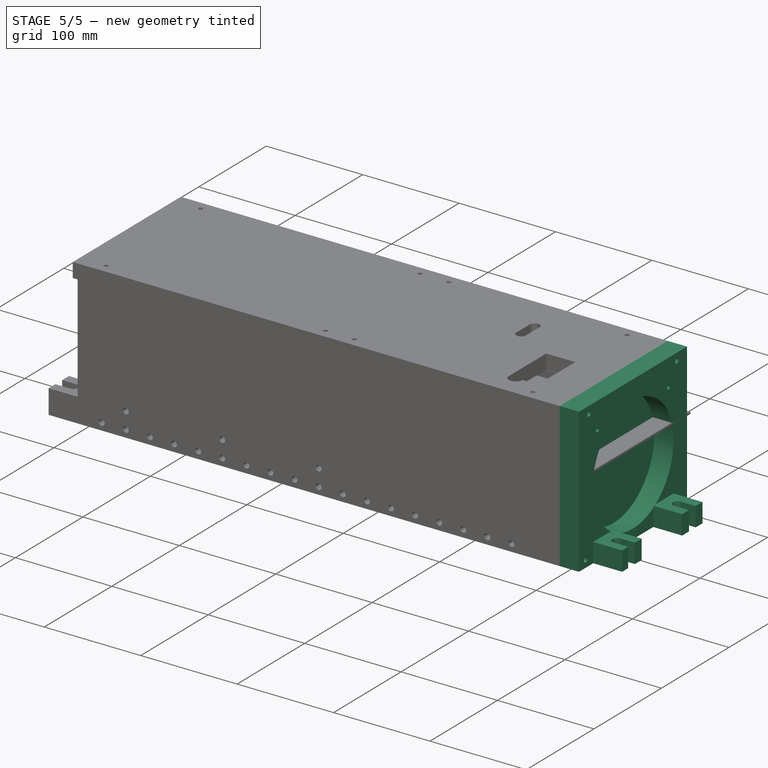
[diagram: stage 5 of 5 — iso view after this stage's code; geometry added in this stage tinted green]
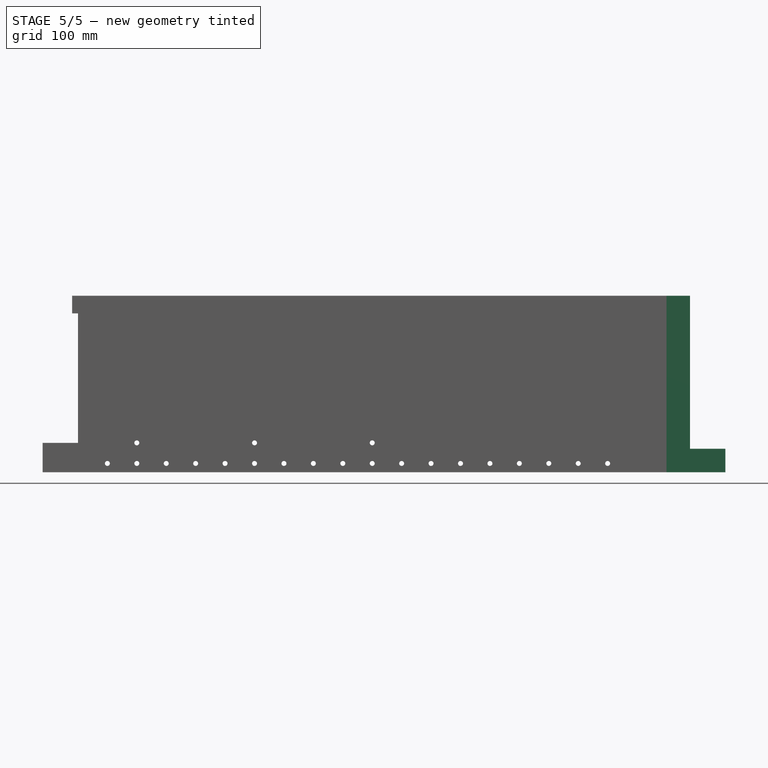
[diagram: stage 5 of 5 — front view after this stage's code; geometry added in this stage tinted green]
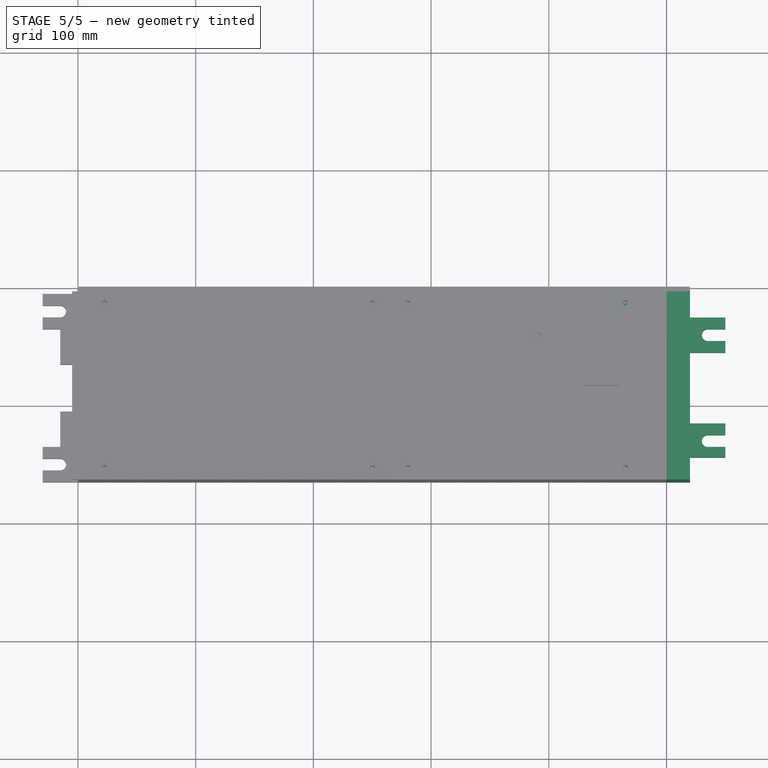
[diagram: stage 5 of 5 — top view after this stage's code; geometry added in this stage tinted green]
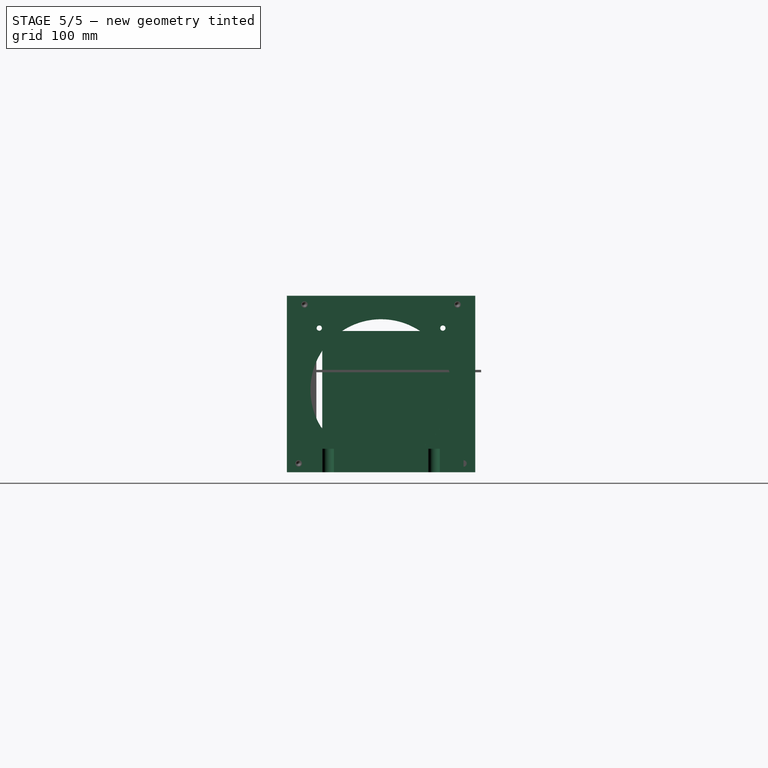
[diagram: stage 5 of 5 — right view after this stage's code; geometry added in this stage tinted green]
FEATURE [PartDesign::Pad] Pad002  label="FanBaseExtrusion"
  Direction = (1,0,0)
  Length = 20
  Length2 = 10
  Placement = pos=(0,0,0) rot=(1,1,1;2.0944rad)
  Profile = -> Sketch002
  ReferenceAxis = -> Sketch002 [N_Axis]
  Refine = true
  Suppressed = false
  Type = 0
FEATURE [Sketcher::SketchObject] Sketch005  label="FanMountingHolesSketch"
  ArcFitTolerance = 1e-06
  AttachmentOffset = pos=(0,0,500) rot=(0,0,1;0rad)
  AttachmentSupport = -> [YZ_Plane165]
  FullyConstrained = false
  MakeInternals = false
  MapMode = 5
  Placement = pos=(500,0,0) rot=(0.57735,0.57735,0.57735;2.0944rad)
  sketch-geometry (4):
    g0: Circle CenterX=-137.5 CenterY=37.5 CenterZ=0 NormalX=0 NormalY=0 NormalZ=1 AngleXU=0 Radius=2.89646
    g1: Circle CenterX=-32.5 CenterY=37.5 CenterZ=0 NormalX=0 NormalY=0 NormalZ=1 AngleXU=0 Radius=3.04561
    g2: Circle CenterX=-32.5 CenterY=-67.5 CenterZ=0 NormalX=0 NormalY=0 NormalZ=1 AngleXU=0 Radius=2.27475
    g3: Circle CenterX=-137.5 CenterY=-67.5 CenterZ=0 NormalX=0 NormalY=0 NormalZ=1 AngleXU=0 Radius=2.14015
FEATURE [PartDesign::Hole] Hole002  label="FanHoleCutout"
  BaseFeature = -> Pad002
  CustomThreadClearance = 0
  Depth = 25
  DepthType = 0
  Diameter = 4.5
  DrillForDepth = false
  DrillPoint = 1
  DrillPointAngle = 118
  HoleCutCountersinkAngle = 90
  HoleCutCustomValues = false
  HoleCutDepth = 0
  HoleCutDiameter = 6.1
  HoleCutType = 0
  ModelThread = false
  Placement = pos=(0,0,0) rot=(1,1,1;2.0944rad)
  Profile = -> Sketch005
  Refine = true
  Reversed = true
  Suppressed = false
  Tapered = false
  TaperedAngle = 90
  ThreadClass = 0
  ThreadDepth = 25
  ThreadDepthType = 0
  ThreadDirection = 0
  ThreadFit = 0
  ThreadSize = 11
  ThreadType = 1
  Threaded = false
  UseCustomThreadClearance = false
FEATURE [Sketcher::SketchObject] Sketch017  label="RearFlangeBaseSketch"
  ArcFitTolerance = 1e-06
  AttachmentOffset = pos=(0,0,-85) rot=(0,0,1;0rad)
  AttachmentSupport = -> [XY_Plane165]
  FullyConstrained = false
  MakeInternals = false
  MapMode = 5
  Placement = pos=(0,0,-85) rot=(0,0,1;0rad)
  sketch-geometry (8):
    g0: LineSegment StartX=520 StartY=-25 StartZ=0 EndX=520 EndY=-55 EndZ=0
    g1: LineSegment StartX=520 StartY=-55 StartZ=0 EndX=550 EndY=-55 EndZ=0
    g2: LineSegment StartX=550 StartY=-55 StartZ=0 EndX=550 EndY=-25 EndZ=0
    g3: LineSegment StartX=550 StartY=-25 StartZ=0 EndX=520 EndY=-25 EndZ=0
    g4: LineSegment StartX=520 StartY=-143.931 StartZ=0 EndX=550 EndY=-143.931 EndZ=0
    g5: LineSegment StartX=550 StartY=-143.931 StartZ=0 EndX=550 EndY=-115 EndZ=0
    g6: LineSegment StartX=550 StartY=-115 StartZ=0 EndX=520 EndY=-115 EndZ=0
    g7: LineSegment StartX=520 StartY=-115 StartZ=0 EndX=520 EndY=-143.931 EndZ=0
  constraints (16):
    c: Coincident(g0,g1)
    c: Coincident(g1,g2)
    c: Coincident(g2,g3)
    c: Coincident(g3,g0)
    c: Vertical(g0)
    c: Vertical(g2)
    c: Horizontal(g1)
    c: Horizontal(g3)
    c: Coincident(g4,g5)
    c: Coincident(g5,g6)
    c: Coincident(g6,g7)
    c: Coincident(g7,g4)
    c: Horizontal(g4)
    c: Horizontal(g6)
    c: Vertical(g5)
    c: Vertical(g7)
FEATURE [PartDesign::Pad] Pad006  label="RearFlangeBase"
  BaseFeature = -> Hole002
  Direction = (0,0,1)
  Length = 20
  Length2 = 10
  Placement = pos=(0,0,0) rot=(1,1,1;2.0944rad)
  Profile = -> Sketch017
  ReferenceAxis = -> Sketch017 [N_Axis]
  Refine = true
  Suppressed = false
  Type = 0
FEATURE [Sketcher::SketchObject] Sketch018  label="RearFlangeSlotSketch"
  ArcFitTolerance = 1e-06
  AttachmentOffset = pos=(0,0,-85) rot=(0,0,1;0rad)
  AttachmentSupport = -> [XY_Plane165]
  FullyConstrained = false
  MakeInternals = false
  MapMode = 5
  Placement = pos=(0,0,-85) rot=(0,0,1;0rad)
  sketch-geometry (8):
    g0: ArcOfCircle CenterX=535 CenterY=-40 CenterZ=0 NormalX=0 NormalY=0 NormalZ=1 AngleXU=0 Radius=5 StartAngle=1.5708 EndAngle=4.71239
    g1: ArcOfCircle CenterX=560 CenterY=-40 CenterZ=0 NormalX=0 NormalY=0 NormalZ=1 AngleXU=0 Radius=5 StartAngle=4.71239 EndAngle=7.85398
    g2: LineSegment StartX=535 StartY=-45 StartZ=0 EndX=560 EndY=-45 EndZ=0
    g3: LineSegment StartX=535 StartY=-35 StartZ=0 EndX=560 EndY=-35 EndZ=0
    g4: ArcOfCircle CenterX=535 CenterY=-130 CenterZ=0 NormalX=0 NormalY=0 NormalZ=1 AngleXU=0 Radius=5 StartAngle=1.5708 EndAngle=4.71239
    g5: ArcOfCircle CenterX=560 CenterY=-130 CenterZ=0 NormalX=0 NormalY=0 NormalZ=1 AngleXU=0 Radius=5 StartAngle=4.71239 EndAngle=7.85398
    g6: LineSegment StartX=535 StartY=-125 StartZ=0 EndX=560 EndY=-125 EndZ=0
    g7: LineSegment StartX=535 StartY=-135 StartZ=0 EndX=560 EndY=-135 EndZ=0
  constraints (12):
    c: Tangent(g0,g3) = 1.5708
    c: Tangent(g0,g2) = -1.5708
    c: Tangent(g1,g3) = 1.5708
    c: Tangent(g1,g2) = -1.5708
    c: Equal(g0,g1)
    c: Horizontal(g2)
    c: Tangent(g4,g6) = 1.5708
    c: Tangent(g4,g7) = -1.5708
    c: Tangent(g5,g6) = 1.5708
    c: Tangent(g5,g7) = -1.5708
    c: Equal(g4,g5)
    c: Horizontal(g7)
FEATURE [PartDesign::Pocket] Pocket003  label="RearFlangeSlot"
  BaseFeature = -> Pad006
  Direction = (0,0,-1)
  Length = 50
  Length2 = 5
  Placement = pos=(0,0,0) rot=(1,1,1;2.0944rad)
  Profile = -> Sketch018
  ReferenceAxis = -> Sketch018 [N_Axis]
  Refine = true
  Reversed = true
  Suppressed = false
  Type = 0
FEATURE [Sketcher::SketchObject] Sketch019  label="FanBaseSketch"
  ArcFitTolerance = 1e-06
  AttachmentOffset = pos=(0,0,-85) rot=(0,0,1;0rad)
  AttachmentSupport = -> [XY_Plane]
  FullyConstrained = false
  MakeInternals = false
  MapMode = 5
  Placement = pos=(0,0,-85) rot=(0,0,1;0rad)
  sketch-geometry (4):
    g0: LineSegment StartX=500 StartY=-15 StartZ=0 EndX=460 EndY=-15 EndZ=0
    g1: LineSegment StartX=460 StartY=-15 StartZ=0 EndX=460 EndY=-135 EndZ=0
    g2: LineSegment StartX=460 StartY=-135 StartZ=0 EndX=500 EndY=-135 EndZ=0
    g3: LineSegment StartX=500 StartY=-135 StartZ=0 EndX=500 EndY=-15 EndZ=0
  constraints (8):
    c: Coincident(g0,g1)
    c: Coincident(g1,g2)
    c: Coincident(g2,g3)
    c: Coincident(g3,g0)
    c: Horizontal(g0)
    c: Horizontal(g2)
    c: Vertical(g1)
    c: Vertical(g3)
FEATURE [PartDesign::Pad] Pad007  label="FanExtrusion"
  Direction = (0,0,1)
  Length = 120
  Length2 = 10
  Profile = -> Sketch019
  ReferenceAxis = -> Sketch019 [N_Axis]
  Refine = true
  Suppressed = false
  Type = 0
FEATURE [PartDesign::Body] Body004  label="FanPlaceholder"
  AllowCompound = false
  Group = -> [Sketch019,Pad007]
  Origin = -> Origin
  Tip = -> Pad007
FEATURE [App::Part] Part  label="Components"
  Group = -> [Part__Feature213,InverterBoostConverter_002,Body004]
  Origin = -> Origin164
  Placement = pos=(0,-10,10) rot=(0,0,1;0rad)
FEATURE [Sketcher::SketchObject] Sketch020  label="AttachmentHoleSketch"
  ArcFitTolerance = 1e-06
  AttachmentOffset = pos=(0,0,500) rot=(0,0,1;0rad)
  AttachmentSupport = -> [YZ_Plane165]
  FullyConstrained = false
  MakeInternals = false
  MapMode = 5
  Placement = pos=(500,0,0) rot=(0.57735,0.57735,0.57735;2.0944rad)
  sketch-geometry (4):
    g0: Circle CenterX=-155 CenterY=-77.5 CenterZ=0 NormalX=0 NormalY=0 NormalZ=1 AngleXU=0 Radius=3.53553
    g1: Circle CenterX=-15 CenterY=-77.5 CenterZ=0 NormalX=0 NormalY=0 NormalZ=1 AngleXU=0 Radius=3.53553
    g2: Circle CenterX=-150 CenterY=57.5 CenterZ=0 NormalX=0 NormalY=0 NormalZ=1 AngleXU=0 Radius=3.53553
    g3: Circle CenterX=-20 CenterY=57.5 CenterZ=0 NormalX=0 NormalY=0 NormalZ=1 AngleXU=0 Radius=3.53553
FEATURE [PartDesign::Hole] Hole008  label="AttachmentHoles"
  BaseFeature = -> Pocket003
  CustomThreadClearance = 0
  Depth = 25
  DepthType = 0
  Diameter = 5.5
  DrillForDepth = false
  DrillPoint = 1
  DrillPointAngle = 118
  HoleCutCountersinkAngle = 90
  HoleCutCustomValues = false
  HoleCutDepth = 0
  HoleCutDiameter = 6.1
  HoleCutType = 0
  ModelThread = false
  Placement = pos=(0,0,0) rot=(1,1,1;2.0944rad)
  Profile = -> Sketch020
  Refine = true
  Reversed = true
  Suppressed = false
  Tapered = false
  TaperedAngle = 90
  ThreadClass = 0
  ThreadDepth = 25
  ThreadDepthType = 0
  ThreadDirection = 0
  ThreadFit = 0
  ThreadSize = 13
  ThreadType = 1
  Threaded = false
  UseCustomThreadClearance = false
FEATURE [Sketcher::SketchObject] Sketch032  label="TopLidSideHolesSketch"
  ArcFitTolerance = 1e-06
  AttachmentOffset = pos=(0,0,500) rot=(0,0,1;0rad)
  AttachmentSupport = -> [YZ_Plane327]
  FullyConstrained = false
  MakeInternals = false
  MapMode = 5
  Placement = pos=(500,0,0) rot=(0.57735,0.57735,0.57735;2.0944rad)
  sketch-geometry (2):
    g0: Circle CenterX=-150 CenterY=57.5 CenterZ=0 NormalX=0 NormalY=0 NormalZ=1 AngleXU=0 Radius=2.61985
    g1: Circle CenterX=-20 CenterY=57.5 CenterZ=0 NormalX=0 NormalY=0 NormalZ=1 AngleXU=0 Radius=2.5
FEATURE [PartDesign::Hole] Hole012  label="TopLidSideHoles"
  BaseFeature = -> Hole011
  CustomThreadClearance = 0
  Depth = 40
  DepthType = 0
  Diameter = 4.2
  DrillForDepth = false
  DrillPoint = 1
  DrillPointAngle = 118
  HoleCutCountersinkAngle = 90
  HoleCutCustomValues = false
  HoleCutDepth = 0
  HoleCutDiameter = 6.1
  HoleCutType = 0
  ModelThread = false
  Profile = -> Sketch032
  Refine = true
  Suppressed = false
  Tapered = false
  TaperedAngle = 90
  ThreadClass = 0
  ThreadDepth = 40
  ThreadDepthType = 0
  ThreadDirection = 0
  ThreadFit = 0
  ThreadSize = 13
  ThreadType = 1
  Threaded = true
  UseCustomThreadClearance = false
FEATURE [PartDesign::Body] Body005  label="TopCase"
  AllowCompound = false
  Group = -> [Sketch021,Pad008,Sketch031,Hole011,Sketch032,Hole012]
  Origin = -> Origin327
  Tip = -> Hole012
FEATURE [Part::Plane] Plane  label="DividingPlane"
  AttacherType = Attacher::AttachEngine3D
  Length = 200
  Placement = pos=(265,10,-115) rot=(-0.57735,0.57735,0.57735;4.18879rad)
  Width = 200
FEATURE [Part::Plane] Plane001  label="DividingPlane001"
  AttacherType = Attacher::AttachEngine3D
  Length = 200
  Placement = pos=(265,10,-115) rot=(-0.57735,0.57735,0.57735;4.18879rad)
  Width = 200
FEATURE [Part::Plane] Plane002  label="DividingPlane002"
  AttacherType = Attacher::AttachEngine3D
  Length = 200
  Placement = pos=(265,10,-115) rot=(-0.57735,0.57735,0.57735;4.18879rad)
  Width = 200
FEATURE [Part::Plane] Plane003  label="DividingPlane003"
  AttacherType = Attacher::AttachEngine3D
  Length = 200
  Placement = pos=(135,10,-115) rot=(-0.57735,0.57735,0.57735;4.18879rad)
  Width = 200
FEATURE [Part::Plane] Plane004  label="DividingPlane004"
  AttacherType = Attacher::AttachEngine3D
  Length = 200
  Placement = pos=(365,10,-115) rot=(-0.57735,0.57735,0.57735;4.18879rad)
  Width = 200
FEATURE [Part::FeaturePython] Slice  # WARN: FeaturePython — macro-defined, semantics opaque (R4)
  Base = -> Body005
  Mode = 1
  Tolerance = 0
  Tools = -> [Plane]
FEATURE [Part::FeaturePython] Slice_child0  label="Slice.0"  # WARN: FeaturePython — macro-defined, semantics opaque (R4)
  Base = -> Slice
  FilterType = 1
  Invert = false
  OverrideMaxVal = 0
  WindowFrom = 80
  WindowTo = 100
  items = 0
FEATURE [Part::FeaturePython] Slice_child1  label="Slice.1"  # WARN: FeaturePython — macro-defined, semantics opaque (R4)
  Base = -> Slice
  FilterType = 1
  Invert = false
  OverrideMaxVal = 0
  WindowFrom = 80
  WindowTo = 100
  items = 1
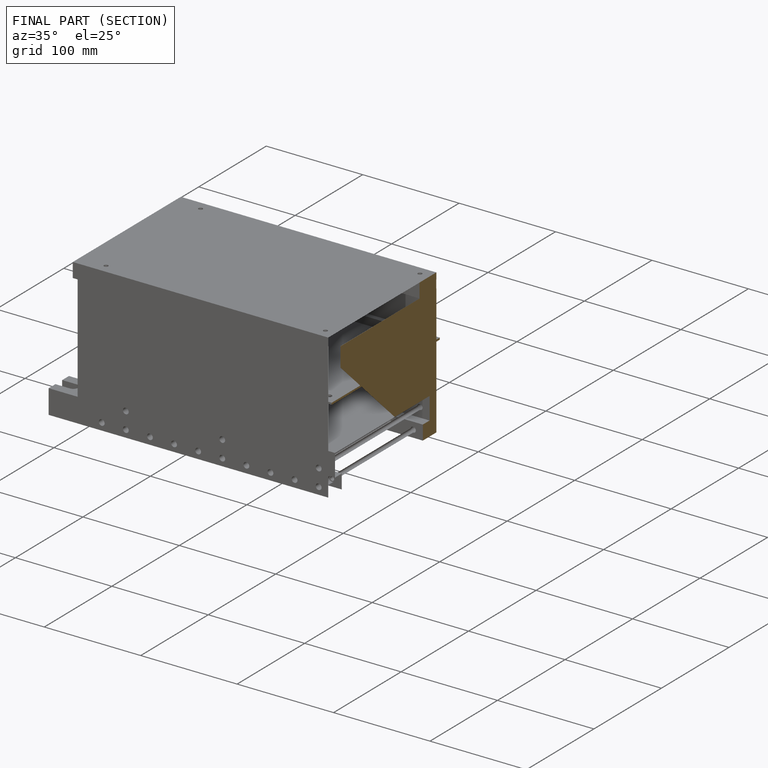
[diagram: finished part — half-section view (interior)]
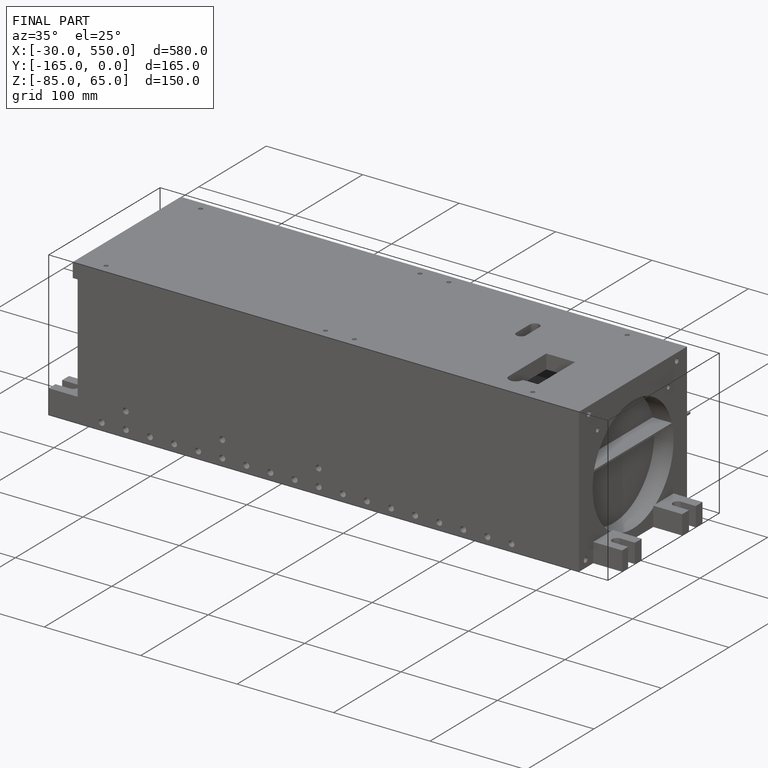
[diagram: finished part — iso view with bounding-box wireframe]
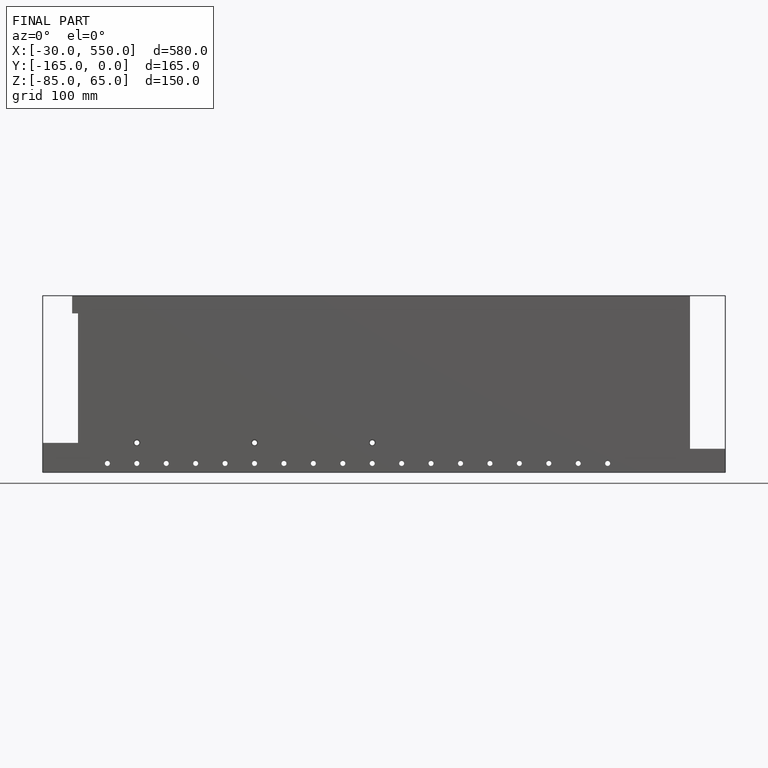
[diagram: finished part — front view with bounding-box wireframe]
